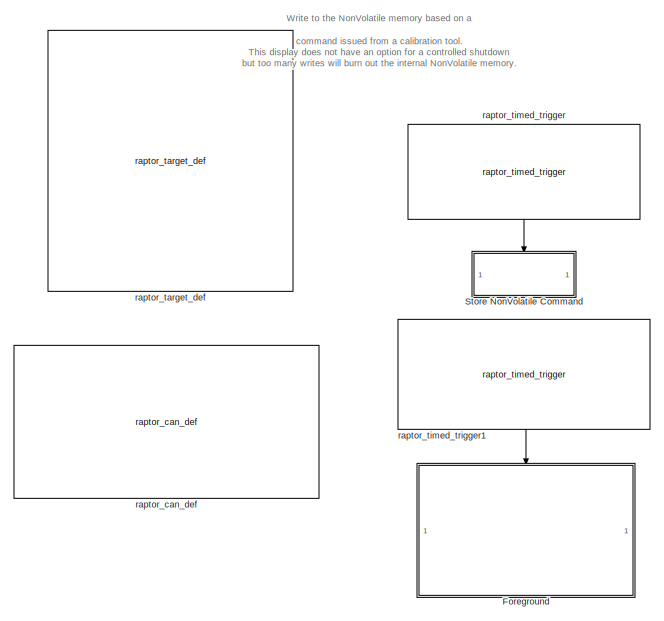
[diagram: root canvas - part 1/2, top left region]
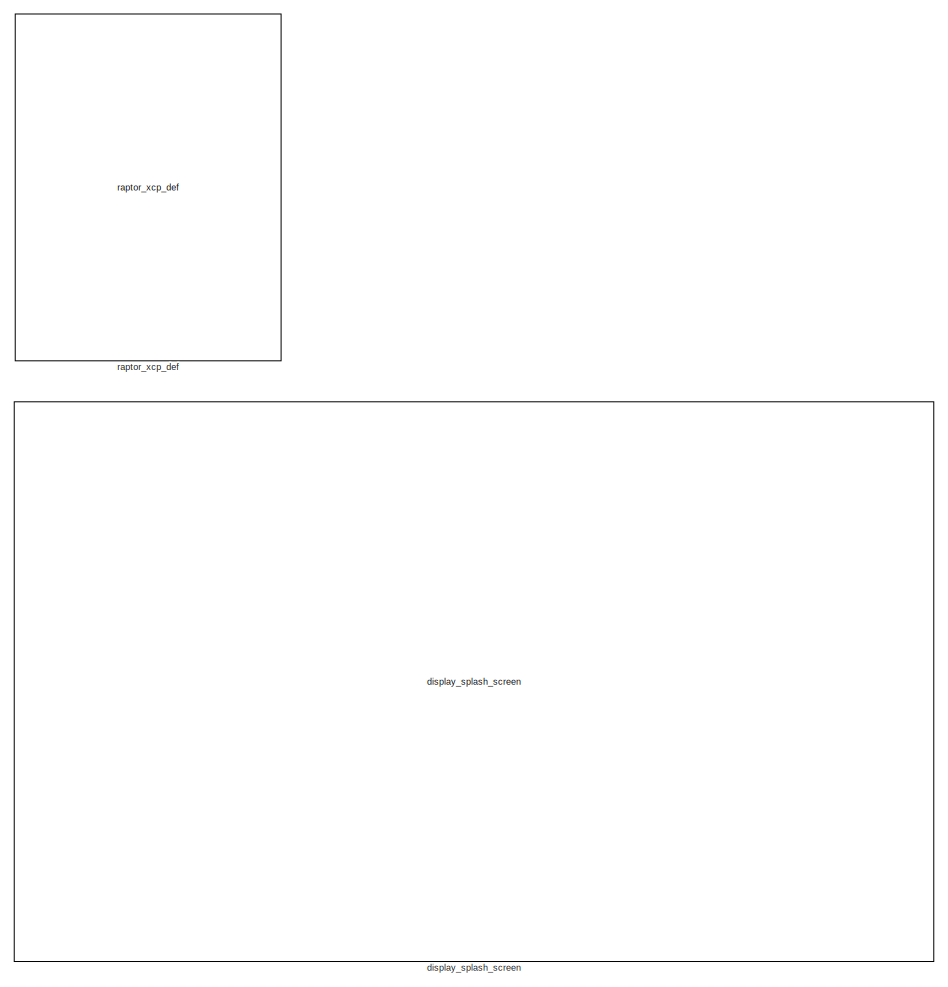
[diagram: root canvas - part 2/2, right side, full height]
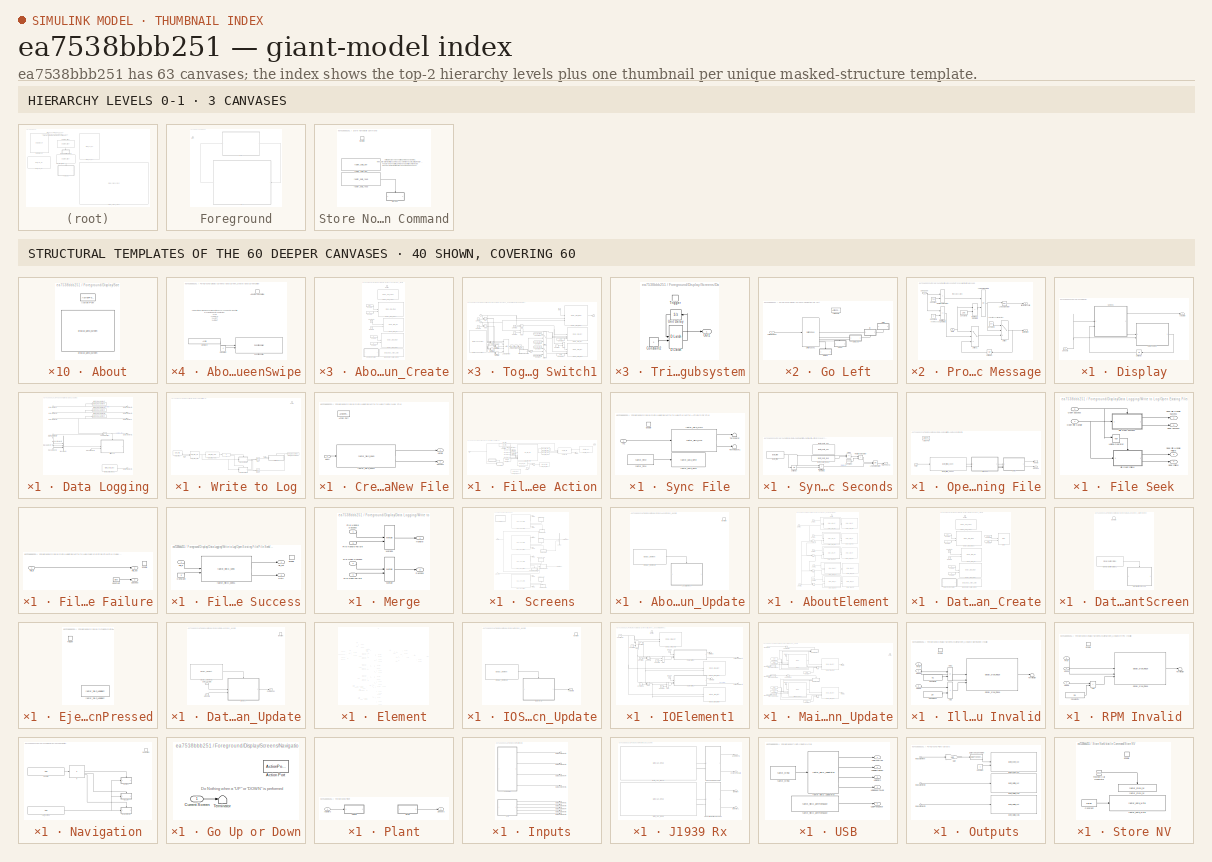
[diagram: thumbnail index - top-2 hierarchy levels (3 canvases) + 40 structural-template representatives of the remaining 60 canvases]
MODEL slx_ea7538bbb251
KIND model
CONFIG AbsTol = auto
CONFIG EnableMultiTasking = on
CONFIG FixedStep = 0.01
CONFIG InitFcn = try, model_open; catch, end
CONFIG MaxStep = auto
CONFIG MinStep = auto
CONFIG PreLoadFcn = try, model_open; catch, disp('Error occurred while executing model pre-load callback: model_open.m'); disp('Please assure that the MATLAB working directory is set to the model directory before opening.'); end
CONFIG RelTol = 1e-3
CONFIG SampleTimeConstraint = Unconstrained
CONFIG SolverName = FixedStepDiscrete
CONFIG StartTime = 0.0
CONFIG StopTime = 10.0
WORKSPACE source: mxarray member
WORKSPACE IOScreen_Label_XCoord = 1
WORKSPACE IOScreen_Row1_YCoord = 1
WORKSPACE IOScreen_Row2_YCoord = 12
WORKSPACE IOScreen_Value_XCoord = 110
WORKSPACE MainScreen_Row1_YCoord = 7
WORKSPACE MainScreen_Row2_YCoord = 23
WORKSPACE MainScreen_Symbols_XCoord = 1
WORKSPACE MainScreen_Units_XCoord = 69
WORKSPACE MainScreen_Value_XCoord = 64
BLOCK [SubSystem] Foreground
BLOCK [SubSystem] Foreground/Display
BLOCK [Outport] Foreground/Display/Actuators
  VectorParamsAs1DForOutWhenUnconnected = off
BLOCK [SubSystem] Foreground/Display/Data Logging
BLOCK [BusCreator] Foreground/Display/Data Logging/Bus Creator
  DisplayOption = bar
  InheritFromInputs = on
  Inputs = 4
BLOCK [Inport] Foreground/Display/Data Logging/In Bus Element
  Port = 2
BLOCK [Inport] Foreground/Display/Data Logging/In Bus Element1
  Port = 2
BLOCK [Inport] Foreground/Display/Data Logging/In Bus Element2
  Port = 2
BLOCK [Inport] Foreground/Display/Data Logging/In Bus Element3
  Port = 2
BLOCK [Inport] Foreground/Display/Data Logging/In Bus Element4
BLOCK [Inport] Foreground/Display/Data Logging/In Bus Element5
  Port = 2
BLOCK [Inport] Foreground/Display/Data Logging/In Bus Element6
  Port = 2
BLOCK [Inport] Foreground/Display/Data Logging/In Bus Element7
  Port = 2
BLOCK [Inport] Foreground/Display/Data Logging/In Bus Element8
  Port = 2
BLOCK [Logic] Foreground/Display/Data Logging/Logical Operator
  AllPortsSameDT = off
  OutDataTypeStr = boolean
BLOCK [Outport] Foreground/Display/Data Logging/Out Bus Element
  VectorParamsAs1DForOutWhenUnconnected = off
BLOCK [Outport] Foreground/Display/Data Logging/Out Bus Element1
  VectorParamsAs1DForOutWhenUnconnected = off
BLOCK [Outport] Foreground/Display/Data Logging/Out Bus Element2
  VectorParamsAs1DForOutWhenUnconnected = off
BLOCK [Outport] Foreground/Display/Data Logging/Out Bus Element3
  VectorParamsAs1DForOutWhenUnconnected = off
BLOCK [Outport] Foreground/Display/Data Logging/Out Bus Element4
  VectorParamsAs1DForOutWhenUnconnected = off
BLOCK [SubSystem] Foreground/Display/Data Logging/Write to Log
BLOCK [SubSystem] Foreground/Display/Data Logging/Write to Log/Create New File
  TreatAsAtomicUnit = on
BLOCK [ActionPort] Foreground/Display/Data Logging/Write to Log/Create New File/Action Port
  ActionPortLabel = else
BLOCK [Outport] Foreground/Display/Data Logging/Write to Log/Create New File/Handle
  VectorParamsAs1DForOutWhenUnconnected = off
BLOCK [Inport] Foreground/Display/Data Logging/Write to Log/Create New File/Path
BLOCK [Outport] Foreground/Display/Data Logging/Write to Log/Create New File/Success
  Port = 2
  VectorParamsAs1DForOutWhenUnconnected = off
BLOCK [Reference] Foreground/Display/Data Logging/Write to Log/Create New File/raptor_fileIO_open1  REF=Raptor_Datalogging_lib/raptor_fileIO_open
  SourceBlock = Raptor_Datalogging_lib/raptor_fileIO_open
  SourceProductName = Raptor Data Logging
  SourceType = File Open Block
BLOCK [EnablePort] Foreground/Display/Data Logging/Write to Log/Enable
BLOCK [SubSystem] Foreground/Display/Data Logging/Write to Log/File Write Action
BLOCK [Sum] Foreground/Display/Data Logging/Write to Log/File Write Action/Add
  IconShape = rectangular
BLOCK [Constant] Foreground/Display/Data Logging/Write to Log/File Write Action/Constant
  OutDataTypeStr = uint32
BLOCK [Reference] Foreground/Display/Data Logging/Write to Log/File Write Action/Counter Limited  REF=simulink/Sources/Counter
Limited
  SourceBlock = simulink/Sources/Counter\nLimited
  SourceType = Counter Limited
BLOCK [DataTypeConversion] Foreground/Display/Data Logging/Write to Log/File Write Action/Data Type Conversion1
  RndMeth = Floor
  SaturateOnIntegerOverflow = off
BLOCK [DataTypeConversion] Foreground/Display/Data Logging/Write to Log/File Write Action/Data Type Conversion10
  RndMeth = Floor
  SaturateOnIntegerOverflow = off
BLOCK [DataTypeConversion] Foreground/Display/Data Logging/Write to Log/File Write Action/Data Type Conversion2
  RndMeth = Floor
  SaturateOnIntegerOverflow = off
BLOCK [EnablePort] Foreground/Display/Data Logging/Write to Log/File Write Action/Enable
BLOCK [Inport] Foreground/Display/Data Logging/Write to Log/File Write Action/In Bus Element2
BLOCK [Inport] Foreground/Display/Data Logging/Write to Log/File Write Action/In Bus Element3
BLOCK [Inport] Foreground/Display/Data Logging/Write to Log/File Write Action/In Bus Element4
BLOCK [Inport] Foreground/Display/Data Logging/Write to Log/File Write Action/In Bus Element5
BLOCK [Inport] Foreground/Display/Data Logging/Write to Log/File Write Action/In2
  Port = 2
BLOCK [SubSystem] Foreground/Display/Data Logging/Write to Log/File Write Action/Sync File
  TreatAsAtomicUnit = on
BLOCK [EnablePort] Foreground/Display/Data Logging/Write to Log/File Write Action/Sync File/Enable
BLOCK [Inport] Foreground/Display/Data Logging/Write to Log/File Write Action/Sync File/In1
BLOCK [Terminator] Foreground/Display/Data Logging/Write to Log/File Write Action/Sync File/Terminator
BLOCK [Terminator] Foreground/Display/Data Logging/Write to Log/File Write Action/Sync File/Terminator1
BLOCK [Reference] Foreground/Display/Data Logging/Write to Log/File Write Action/Sync File/raptor_data_write  REF=Raptor_lib/Data Storage/raptor_data_write
  SourceBlock = Raptor_lib/Data Storage/raptor_data_write
  SourceProductName = Raptor
  SourceType = Data Write Block
BLOCK [Reference] Foreground/Display/Data Logging/Write to Log/File Write Action/Sync File/raptor_fileIO_sync1  REF=Raptor_Datalogging_lib/raptor_fileIO_sync
  SourceBlock = Raptor_Datalogging_lib/raptor_fileIO_sync
  SourceProductName = Raptor Data Logging
  SourceType = File Sync Block
BLOCK [Reference] Foreground/Display/Data Logging/Write to Log/File Write Action/Sync File/raptor_time  REF=Raptor_lib/Triggers/raptor_time
  SourceBlock = Raptor_lib/Triggers/raptor_time
  SourceProductName = Raptor
  SourceType = Time
BLOCK [SubSystem] Foreground/Display/Data Logging/Write to Log/File Write Action/Sync every 10 Seconds
BLOCK [Sum] Foreground/Display/Data Logging/Write to Log/File Write Action/Sync every 10 Seconds/Add1
  IconShape = rectangular
  Inputs = +-
BLOCK [Constant] Foreground/Display/Data Logging/Write to Log/File Write Action/Sync every 10 Seconds/Constant
  Value = 10000
BLOCK [Logic] Foreground/Display/Data Logging/Write to Log/File Write Action/Sync every 10 Seconds/Logical Operator
  AllPortsSameDT = off
  Operator = OR
  OutDataTypeStr = boolean
BLOCK [RelationalOperator] Foreground/Display/Data Logging/Write to Log/File Write Action/Sync every 10 Seconds/Relational Operator
  InputSameDT = off
  Operator = >
  OutDataTypeStr = boolean
BLOCK [RelationalOperator] Foreground/Display/Data Logging/Write to Log/File Write Action/Sync every 10 Seconds/Relational Operator1
  InputSameDT = off
  Operator = <
  OutDataTypeStr = boolean
BLOCK [Outport] Foreground/Display/Data Logging/Write to Log/File Write Action/Sync every 10 Seconds/TimeToSync
  VectorParamsAs1DForOutWhenUnconnected = off
BLOCK [UnitDelay] Foreground/Display/Data Logging/Write to Log/File Write Action/Sync every 10 Seconds/Unit Delay
  HasFrameUpgradeWarning = on
  SampleTime = -1
BLOCK [Reference] Foreground/Display/Data Logging/Write to Log/File Write Action/Sync every 10 Seconds/raptor_data_def  REF=Raptor_lib/Data Storage/raptor_data_def
  SourceBlock = Raptor_lib/Data Storage/raptor_data_def
  SourceProductName = Raptor
  SourceType = Data Store Definition Block
BLOCK [Reference] Foreground/Display/Data Logging/Write to Log/File Write Action/Sync every 10 Seconds/raptor_data_read1  REF=Raptor_lib/Data Storage/raptor_data_read
  SourceBlock = Raptor_lib/Data Storage/raptor_data_read
  SourceProductName = Raptor
  SourceType = Data Read Block
BLOCK [Reference] Foreground/Display/Data Logging/Write to Log/File Write Action/Sync every 10 Seconds/raptor_time  REF=Raptor_lib/Triggers/raptor_time
  SourceBlock = Raptor_lib/Triggers/raptor_time
  SourceProductName = Raptor
  SourceType = Time
BLOCK [Terminator] Foreground/Display/Data Logging/Write to Log/File Write Action/Terminator1
BLOCK [Reference] Foreground/Display/Data Logging/Write to Log/File Write Action/raptor_data_def  REF=Raptor_lib/Data Storage/raptor_data_def
  SourceBlock = Raptor_lib/Data Storage/raptor_data_def
  SourceProductName = Raptor
  SourceType = Data Store Definition Block
BLOCK [Reference] Foreground/Display/Data Logging/Write to Log/File Write Action/raptor_data_read1  REF=Raptor_lib/Data Storage/raptor_data_read
  SourceBlock = Raptor_lib/Data Storage/raptor_data_read
  SourceProductName = Raptor
  SourceType = Data Read Block
BLOCK [Reference] Foreground/Display/Data Logging/Write to Log/File Write Action/raptor_data_write  REF=Raptor_lib/Data Storage/raptor_data_write
  SourceBlock = Raptor_lib/Data Storage/raptor_data_write
  SourceProductName = Raptor
  SourceType = Data Write Block
BLOCK [Reference] Foreground/Display/Data Logging/Write to Log/File Write Action/raptor_fileIO_close  REF=Raptor_Datalogging_lib/raptor_fileIO_close
  SourceBlock = Raptor_Datalogging_lib/raptor_fileIO_close
  SourceProductName = Raptor Data Logging
  SourceType = File Close Block
BLOCK [Reference] Foreground/Display/Data Logging/Write to Log/File Write Action/raptor_fileIO_write  REF=Raptor_Datalogging_lib/raptor_fileIO_write
  SourceBlock = Raptor_Datalogging_lib/raptor_fileIO_write
  SourceProductName = Raptor Data Logging
  SourceType = File Write Block
BLOCK [Reference] Foreground/Display/Data Logging/Write to Log/File Write Action/raptor_string  REF=Raptor_lib/Strings/raptor_string
  SourceBlock = Raptor_lib/Strings/raptor_string
  SourceProductName = Raptor
  SourceType = Raptor String
BLOCK [Reference] Foreground/Display/Data Logging/Write to Log/File Write Action/raptor_string_length  REF=Raptor_lib/Strings/raptor_string_length
  SourceBlock = Raptor_lib/Strings/raptor_string_length
  SourceProductName = Raptor
  SourceType = Raptor String Length
BLOCK [Reference] Foreground/Display/Data Logging/Write to Log/File Write Action/raptor_string_printf1  REF=Raptor_lib/Strings/raptor_string_printf
  SourceBlock = Raptor_lib/Strings/raptor_string_printf
  SourceProductName = Raptor
  SourceType = Raptor Printf
BLOCK [Reference] Foreground/Display/Data Logging/Write to Log/File Write Action/raptor_string_toArray  REF=Raptor_lib/Strings/raptor_string_toArray
  SourceBlock = Raptor_lib/Strings/raptor_string_toArray
  SourceProductName = Raptor
  SourceType = Raptor String to Array
BLOCK [Reference] Foreground/Display/Data Logging/Write to Log/File Write Action/raptor_time1  REF=Raptor_lib/Triggers/raptor_time
  SourceBlock = Raptor_lib/Triggers/raptor_time
  SourceProductName = Raptor
  SourceType = Time
BLOCK [If] Foreground/Display/Data Logging/Write to Log/If
  IfExpression = u1
BLOCK [Merge] Foreground/Display/Data Logging/Write to Log/Merge
BLOCK [Merge] Foreground/Display/Data Logging/Write to Log/Merge1
BLOCK [SubSystem] Foreground/Display/Data Logging/Write to Log/Open Existing File
  TreatAsAtomicUnit = on
BLOCK [ActionPort] Foreground/Display/Data Logging/Write to Log/Open Existing File/Action Port
  ActionPortLabel = if(u1)
BLOCK [SubSystem] Foreground/Display/Data Logging/Write to Log/Open Existing File/File Seek
BLOCK [SubSystem] Foreground/Display/Data Logging/Write to Log/Open Existing File/File Seek/File Open Failure
BLOCK [Constant] Foreground/Display/Data Logging/Write to Log/Open Existing File/File Seek/File Open Failure/Constant
  OutDataTypeStr = Inherit: Inherit via back propagation
  Value = false
BLOCK [EnablePort] Foreground/Display/Data Logging/Write to Log/Open Existing File/File Seek/File Open Failure/Enable
BLOCK [Outport] Foreground/Display/Data Logging/Write to Log/Open Existing File/File Seek/File Open Failure/Success
  Port = 2
  VectorParamsAs1DForOutWhenUnconnected = off
BLOCK [Inport] Foreground/Display/Data Logging/Write to Log/Open Existing File/File Seek/File Open Failure/file_in
BLOCK [Outport] Foreground/Display/Data Logging/Write to Log/Open Existing File/File Seek/File Open Failure/file_out
  VectorParamsAs1DForOutWhenUnconnected = off
BLOCK [SubSystem] Foreground/Display/Data Logging/Write to Log/Open Existing File/File Seek/File Open Success
BLOCK [Constant] Foreground/Display/Data Logging/Write to Log/Open Existing File/File Seek/File Open Success/Constant
  OutDataTypeStr = Inherit: Inherit via back propagation
  Value = 0
BLOCK [EnablePort] Foreground/Display/Data Logging/Write to Log/Open Existing File/File Seek/File Open Success/Enable
BLOCK [Outport] Foreground/Display/Data Logging/Write to Log/Open Existing File/File Seek/File Open Success/Out2
  Port = 2
  VectorParamsAs1DForOutWhenUnconnected = off
BLOCK [Inport] Foreground/Display/Data Logging/Write to Log/Open Existing File/File Seek/File Open Success/file_in
BLOCK [Outport] Foreground/Display/Data Logging/Write to Log/Open Existing File/File Seek/File Open Success/file_out
  VectorParamsAs1DForOutWhenUnconnected = off
BLOCK [Reference] Foreground/Display/Data Logging/Write to Log/Open Existing File/File Seek/File Open Success/raptor_fileIO_seek1  REF=Raptor_Datalogging_lib/raptor_fileIO_seek
  SourceBlock = Raptor_Datalogging_lib/raptor_fileIO_seek
  SourceProductName = Raptor Data Logging
  SourceType = File Seek Block
BLOCK [Logic] Foreground/Display/Data Logging/Write to Log/Open Existing File/File Seek/Logical Operator
  AllPortsSameDT = off
  Operator = NOT
  OutDataTypeStr = boolean
BLOCK [Inport] Foreground/Display/Data Logging/Write to Log/Open Existing File/File Seek/Open File Handle
BLOCK [Inport] Foreground/Display/Data Logging/Write to Log/Open Existing File/File Seek/Open Success
  Port = 2
BLOCK [Outport] Foreground/Display/Data Logging/Write to Log/Open Existing File/File Seek/Seek Failure
  Port = 4
  VectorParamsAs1DForOutWhenUnconnected = off
BLOCK [Outport] Foreground/Display/Data Logging/Write to Log/Open Existing File/File Seek/Seek File Handle Failure
  Port = 3
  VectorParamsAs1DForOutWhenUnconnected = off
BLOCK [Outport] Foreground/Display/Data Logging/Write to Log/Open Existing File/File Seek/Seek File Handle Success
  VectorParamsAs1DForOutWhenUnconnected = off
BLOCK [Outport] Foreground/Display/Data Logging/Write to Log/Open Existing File/File Seek/Seek Success
  Port = 2
  VectorParamsAs1DForOutWhenUnconnected = off
BLOCK [Outport] Foreground/Display/Data Logging/Write to Log/Open Existing File/Handle
  VectorParamsAs1DForOutWhenUnconnected = off
BLOCK [SubSystem] Foreground/Display/Data Logging/Write to Log/Open Existing File/Merge
BLOCK [Inport] Foreground/Display/Data Logging/Write to Log/Open Existing File/Merge/File Handle Failure
  Port = 3
BLOCK [Inport] Foreground/Display/Data Logging/Write to Log/Open Existing File/Merge/File Handle Success
BLOCK [Inport] Foreground/Display/Data Logging/Write to Log/Open Existing File/Merge/File Open Failure
  Port = 4
BLOCK [Inport] Foreground/Display/Data Logging/Write to Log/Open Existing File/Merge/File Open Success
  Port = 2
BLOCK [Outport] Foreground/Display/Data Logging/Write to Log/Open Existing File/Merge/Handle
  VectorParamsAs1DForOutWhenUnconnected = off
BLOCK [Merge] Foreground/Display/Data Logging/Write to Log/Open Existing File/Merge/Merge
BLOCK [Merge] Foreground/Display/Data Logging/Write to Log/Open Existing File/Merge/Merge1
BLOCK [Outport] Foreground/Display/Data Logging/Write to Log/Open Existing File/Merge/Success
  Port = 2
  VectorParamsAs1DForOutWhenUnconnected = off
BLOCK [Inport] Foreground/Display/Data Logging/Write to Log/Open Existing File/Path
BLOCK [Outport] Foreground/Display/Data Logging/Write to Log/Open Existing File/Sucess
  Port = 2
  VectorParamsAs1DForOutWhenUnconnected = off
BLOCK [Reference] Foreground/Display/Data Logging/Write to Log/Open Existing File/raptor_fileIO_open1  REF=Raptor_Datalogging_lib/raptor_fileIO_open
  SourceBlock = Raptor_Datalogging_lib/raptor_fileIO_open
  SourceProductName = Raptor Data Logging
  SourceType = File Open Block
BLOCK [Inport] Foreground/Display/Data Logging/Write to Log/data
BLOCK [Inport] Foreground/Display/Data Logging/Write to Log/drive
  Port = 2
BLOCK [Reference] Foreground/Display/Data Logging/Write to Log/raptor_fileIO_exists1  REF=Raptor_Datalogging_lib/raptor_fileIO_exists
  SourceBlock = Raptor_Datalogging_lib/raptor_fileIO_exists
  SourceProductName = Raptor Data Logging
  SourceType = File Exists Block
BLOCK [Reference] Foreground/Display/Data Logging/Write to Log/raptor_measurement1  REF=Raptor_lib/Data Storage/raptor_measurement
  SourceBlock = Raptor_lib/Data Storage/raptor_measurement
  SourceProductName = Raptor
  SourceType = Measurement
BLOCK [Reference] Foreground/Display/Data Logging/Write to Log/raptor_string1  REF=Raptor_lib/Strings/raptor_string
  SourceBlock = Raptor_lib/Strings/raptor_string
  SourceProductName = Raptor
  SourceType = Raptor String
BLOCK [Reference] Foreground/Display/Data Logging/Write to Log/raptor_string_printf  REF=Raptor_lib/Strings/raptor_string_printf
  SourceBlock = Raptor_lib/Strings/raptor_string_printf
  SourceProductName = Raptor
  SourceType = Raptor Printf
BLOCK [Reference] Foreground/Display/Data Logging/raptor_data_read1  REF=Raptor_lib/Data Storage/raptor_data_read
  SourceBlock = Raptor_lib/Data Storage/raptor_data_read
  SourceProductName = Raptor
  SourceType = Data Read Block
BLOCK [Reference] Foreground/Display/Data Logging/raptor_measurement  REF=Raptor_lib/Data Storage/raptor_measurement
  SourceBlock = Raptor_lib/Data Storage/raptor_measurement
  SourceProductName = Raptor
  SourceType = Measurement
BLOCK [Reference] Foreground/Display/Data Logging/raptor_measurement1  REF=Raptor_lib/Data Storage/raptor_measurement
  SourceBlock = Raptor_lib/Data Storage/raptor_measurement
  SourceProductName = Raptor
  SourceType = Measurement
BLOCK [Reference] Foreground/Display/Data Logging/raptor_measurement3  REF=Raptor_lib/Data Storage/raptor_measurement
  SourceBlock = Raptor_lib/Data Storage/raptor_measurement
  SourceProductName = Raptor
  SourceType = Measurement
BLOCK [SubSystem] Foreground/Display/Screens
BLOCK [SubSystem] Foreground/Display/Screens/AboutScreen_Create
  NameLocation = right
  TreatAsAtomicUnit = on
BLOCK [SubSystem] Foreground/Display/Screens/AboutScreen_Create/AboutScreenSwipe
BLOCK [TriggerPort] Foreground/Display/Screens/AboutScreen_Create/AboutScreenSwipe/AboutScreenSwipe
  FunctionName = AboutScreenSwipe
  FunctionVisibility = scoped
  IsSimulinkFunction = on
  PortDimensions = 1
  StatesWhenEnabling = held
  TriggerType = function-call
  VariantControl = Variant
BLOCK [Constant] Foreground/Display/Screens/AboutScreen_Create/AboutScreenSwipe/Constant
  OutDataTypeStr = uint8
  Value = 4
BLOCK [FunctionCaller] Foreground/Display/Screens/AboutScreen_Create/AboutScreenSwipe/Function Caller
  FunctionPrototype = Screens.Navigation(gesture,curr_screen)
  InputArgumentSpecifications = <Enter example>
  OutputArgumentSpecifications = <Enter example>
BLOCK [ArgIn] Foreground/Display/Screens/AboutScreen_Create/AboutScreenSwipe/gesture
  ArgumentName = gesture
  OutDataTypeStr = uint8
BLOCK [Constant] Foreground/Display/Screens/AboutScreen_Create/Constant16
  OutDataTypeStr = int32
  Value = 400
BLOCK [Constant] Foreground/Display/Screens/AboutScreen_Create/Constant2
  OutDataTypeStr = int32
  Value = 440
BLOCK [Constant] Foreground/Display/Screens/AboutScreen_Create/Constant3
  OutDataTypeStr = int32
BLOCK [Constant] Foreground/Display/Screens/AboutScreen_Create/Constant4
  OutDataTypeStr = int32
BLOCK [Constant] Foreground/Display/Screens/AboutScreen_Create/Constant5
  OutDataTypeStr = int32
BLOCK [Constant] Foreground/Display/Screens/AboutScreen_Create/Constant6
  OutDataTypeStr = int32
  Value = 207
BLOCK [Reference] Foreground/Display/Screens/AboutScreen_Create/display_clear_screen  REF=Raptor_display_lib/Drawing Functions/display_clear_screen
  Priority = 100
  SourceBlock = Raptor_display_lib/Drawing Functions/display_clear_screen
  SourceProductName = Raptor Display Library
  SourceType = Display Clear Screen
BLOCK [Reference] Foreground/Display/Screens/AboutScreen_Create/display_draw_image  REF=Raptor_display_lib/Drawing Functions/display_draw_image
  SourceBlock = Raptor_display_lib/Drawing Functions/display_draw_image
  SourceProductName = Raptor Display Library
  SourceType = Display Draw Image
BLOCK [Reference] Foreground/Display/Screens/AboutScreen_Create/display_draw_image1  REF=Raptor_display_lib/Drawing Functions/display_draw_image
  SourceBlock = Raptor_display_lib/Drawing Functions/display_draw_image
  SourceProductName = Raptor Display Library
  SourceType = Display Draw Image
BLOCK [Reference] Foreground/Display/Screens/AboutScreen_Create/display_draw_text  REF=Raptor_display_lib/Drawing Functions/display_draw_text
  SourceBlock = Raptor_display_lib/Drawing Functions/display_draw_text
  SourceProductName = Raptor Display Library
  SourceType = Display Draw Text
BLOCK [TriggerPort] Foreground/Display/Screens/AboutScreen_Create/function
  StatesWhenEnabling = held
  TriggerType = function-call
  VariantControl = Variant
BLOCK [Reference] Foreground/Display/Screens/AboutScreen_Create/raptor_display_swipe_action2  REF=Raptor_display_lib/Touchscreen/raptor_display_swipe_action
  SourceBlock = Raptor_display_lib/Touchscreen/raptor_display_swipe_action
  SourceProductName = Raptor Display Library
  SourceType = Update Touchscreen Swipe Action
BLOCK [SubSystem] Foreground/Display/Screens/AboutScreen_Update
  TreatAsAtomicUnit = on
BLOCK [SubSystem] Foreground/Display/Screens/AboutScreen_Update/AboutElement
BLOCK [Sum] Foreground/Display/Screens/AboutScreen_Update/AboutElement/Add
  IconShape = rectangular
BLOCK [Sum] Foreground/Display/Screens/AboutScreen_Update/AboutElement/Add2
  IconShape = rectangular
BLOCK [Sum] Foreground/Display/Screens/AboutScreen_Update/AboutElement/Add3
  IconShape = rectangular
BLOCK [Sum] Foreground/Display/Screens/AboutScreen_Update/AboutElement/Add4
  IconShape = rectangular
BLOCK [Constant] Foreground/Display/Screens/AboutScreen_Update/AboutElement/Constant1
  OutDataTypeStr = int32
  Value = 400
BLOCK [Constant] Foreground/Display/Screens/AboutScreen_Update/AboutElement/Constant2
  OutDataTypeStr = int32
  Value = 30
BLOCK [Constant] Foreground/Display/Screens/AboutScreen_Update/AboutElement/Constant3
  OutDataTypeStr = int32
  Value = 400
BLOCK [Constant] Foreground/Display/Screens/AboutScreen_Update/AboutElement/Constant5
  OutDataTypeStr = int32
  Value = 400
BLOCK [Constant] Foreground/Display/Screens/AboutScreen_Update/AboutElement/Constant6
  OutDataTypeStr = int32
  Value = 400
BLOCK [Constant] Foreground/Display/Screens/AboutScreen_Update/AboutElement/Constant7
  OutDataTypeStr = int32
  Value = 100
BLOCK [Constant] Foreground/Display/Screens/AboutScreen_Update/AboutElement/Constant8
  OutDataTypeStr = int32
  Value = 400
BLOCK [Reference] Foreground/Display/Screens/AboutScreen_Update/AboutElement/display_draw_text1  REF=Raptor_display_lib/Drawing Functions/display_draw_text
  SourceBlock = Raptor_display_lib/Drawing Functions/display_draw_text
  SourceProductName = Raptor Display Library
  SourceType = Display Draw Text
BLOCK [Reference] Foreground/Display/Screens/AboutScreen_Update/AboutElement/display_draw_text10  REF=Raptor_display_lib/Drawing Functions/display_draw_text
  SourceBlock = Raptor_display_lib/Drawing Functions/display_draw_text
  SourceProductName = Raptor Display Library
  SourceType = Display Draw Text
BLOCK [Reference] Foreground/Display/Screens/AboutScreen_Update/AboutElement/display_draw_text11  REF=Raptor_display_lib/Drawing Functions/display_draw_text
  SourceBlock = Raptor_display_lib/Drawing Functions/display_draw_text
  SourceProductName = Raptor Display Library
  SourceType = Display Draw Text
BLOCK [Reference] Foreground/Display/Screens/AboutScreen_Update/AboutElement/display_draw_text12  REF=Raptor_display_lib/Drawing Functions/display_draw_text
  SourceBlock = Raptor_display_lib/Drawing Functions/display_draw_text
  SourceProductName = Raptor Display Library
  SourceType = Display Draw Text
BLOCK [Reference] Foreground/Display/Screens/AboutScreen_Update/AboutElement/display_draw_text2  REF=Raptor_display_lib/Drawing Functions/display_draw_text
  SourceBlock = Raptor_display_lib/Drawing Functions/display_draw_text
  SourceProductName = Raptor Display Library
  SourceType = Display Draw Text
BLOCK [Reference] Foreground/Display/Screens/AboutScreen_Update/AboutElement/display_draw_text3  REF=Raptor_display_lib/Drawing Functions/display_draw_text
  SourceBlock = Raptor_display_lib/Drawing Functions/display_draw_text
  SourceProductName = Raptor Display Library
  SourceType = Display Draw Text
BLOCK [Reference] Foreground/Display/Screens/AboutScreen_Update/AboutElement/display_draw_text6  REF=Raptor_display_lib/Drawing Functions/display_draw_text
  SourceBlock = Raptor_display_lib/Drawing Functions/display_draw_text
  SourceProductName = Raptor Display Library
  SourceType = Display Draw Text
BLOCK [Reference] Foreground/Display/Screens/AboutScreen_Update/AboutElement/display_draw_text7  REF=Raptor_display_lib/Drawing Functions/display_draw_text
  SourceBlock = Raptor_display_lib/Drawing Functions/display_draw_text
  SourceProductName = Raptor Display Library
  SourceType = Display Draw Text
BLOCK [Reference] Foreground/Display/Screens/AboutScreen_Update/AboutElement/display_draw_text8  REF=Raptor_display_lib/Drawing Functions/display_draw_text
  SourceBlock = Raptor_display_lib/Drawing Functions/display_draw_text
  SourceProductName = Raptor Display Library
  SourceType = Display Draw Text
BLOCK [Reference] Foreground/Display/Screens/AboutScreen_Update/AboutElement/display_draw_text9  REF=Raptor_display_lib/Drawing Functions/display_draw_text
  SourceBlock = Raptor_display_lib/Drawing Functions/display_draw_text
  SourceProductName = Raptor Display Library
  SourceType = Display Draw Text
BLOCK [TriggerPort] Foreground/Display/Screens/AboutScreen_Update/AboutElement/function
  StatesWhenEnabling = held
  TriggerType = function-call
  VariantControl = Variant
BLOCK [Reference] Foreground/Display/Screens/AboutScreen_Update/display_element1  REF=Raptor_display_lib/Drawing Functions/display_element
  SourceBlock = Raptor_display_lib/Drawing Functions/display_element
  SourceProductName = Raptor Display Library
  SourceType = Display Element
BLOCK [TriggerPort] Foreground/Display/Screens/AboutScreen_Update/function
  StatesWhenEnabling = held
  TriggerType = function-call
  VariantControl = Variant
BLOCK [Outport] Foreground/Display/Screens/ActuatorCommands
  VectorParamsAs1DForOutWhenUnconnected = off
BLOCK [BusCreator] Foreground/Display/Screens/Bus Creator
  DisplayOption = bar
  InheritFromInputs = on
  Inputs = 2
BLOCK [SubSystem] Foreground/Display/Screens/DataLogScreen_Create
  NameLocation = right
  TreatAsAtomicUnit = on
BLOCK [Reference] Foreground/Display/Screens/DataLogScreen_Create/Button  REF=Raptor_display_lib/Prefab/Button
  SourceBlock = Raptor_display_lib/Prefab/Button
  SourceProductName = Raptor Display Library
  SourceType = Display Button
BLOCK [Constant] Foreground/Display/Screens/DataLogScreen_Create/Constant1
  OutDataTypeStr = int32
BLOCK [Constant] Foreground/Display/Screens/DataLogScreen_Create/Constant16
  OutDataTypeStr = int32
  Value = 400
BLOCK [Constant] Foreground/Display/Screens/DataLogScreen_Create/Constant2
  OutDataTypeStr = int32
  Value = 440
BLOCK [Constant] Foreground/Display/Screens/DataLogScreen_Create/Constant3
  OutDataTypeStr = int32
BLOCK [Constant] Foreground/Display/Screens/DataLogScreen_Create/Constant4
  OutDataTypeStr = int32
BLOCK [Constant] Foreground/Display/Screens/DataLogScreen_Create/Constant5
  OutDataTypeStr = int32
  Value = 150
BLOCK [Constant] Foreground/Display/Screens/DataLogScreen_Create/Constant6
  OutDataTypeStr = int32
  Value = 600 - 35
BLOCK [Constant] Foreground/Display/Screens/DataLogScreen_Create/Constant7
  OutDataTypeStr = int32
  Value = 207
BLOCK [SubSystem] Foreground/Display/Screens/DataLogScreen_Create/DataLogScreenSwipe
BLOCK [Constant] Foreground/Display/Screens/DataLogScreen_Create/DataLogScreenSwipe/Constant
  OutDataTypeStr = uint8
  Value = 3
BLOCK [TriggerPort] Foreground/Display/Screens/DataLogScreen_Create/DataLogScreenSwipe/DataLogScreenSwipe
  FunctionName = DataLogScreenSwipe
  FunctionVisibility = scoped
  IsSimulinkFunction = on
  PortDimensions = 1
  StatesWhenEnabling = held
  TriggerType = function-call
  VariantControl = Variant
BLOCK [FunctionCaller] Foreground/Display/Screens/DataLogScreen_Create/DataLogScreenSwipe/Function Caller
  FunctionPrototype = Screens.Navigation(gesture,curr_screen)
  InputArgumentSpecifications = <Enter example>
  OutputArgumentSpecifications = <Enter example>
BLOCK [ArgIn] Foreground/Display/Screens/DataLogScreen_Create/DataLogScreenSwipe/gesture
  ArgumentName = gesture
  OutDataTypeStr = uint8
BLOCK [Reference] Foreground/Display/Screens/DataLogScreen_Create/display_clear_screen  REF=Raptor_display_lib/Drawing Functions/display_clear_screen
  Priority = 100
  SourceBlock = Raptor_display_lib/Drawing Functions/display_clear_screen
  SourceProductName = Raptor Display Library
  SourceType = Display Clear Screen
BLOCK [Reference] Foreground/Display/Screens/DataLogScreen_Create/display_draw_image  REF=Raptor_display_lib/Drawing Functions/display_draw_image
  SourceBlock = Raptor_display_lib/Drawing Functions/display_draw_image
  SourceProductName = Raptor Display Library
  SourceType = Display Draw Image
BLOCK [Reference] Foreground/Display/Screens/DataLogScreen_Create/display_draw_image1  REF=Raptor_display_lib/Drawing Functions/display_draw_image
  SourceBlock = Raptor_display_lib/Drawing Functions/display_draw_image
  SourceProductName = Raptor Display Library
  SourceType = Display Draw Image
BLOCK [Reference] Foreground/Display/Screens/DataLogScreen_Create/display_draw_text  REF=Raptor_display_lib/Drawing Functions/display_draw_text
  SourceBlock = Raptor_display_lib/Drawing Functions/display_draw_text
  SourceProductName = Raptor Display Library
  SourceType = Display Draw Text
BLOCK [TriggerPort] Foreground/Display/Screens/DataLogScreen_Create/function
  StatesWhenEnabling = held
  TriggerType = function-call
  VariantControl = Variant
BLOCK [Reference] Foreground/Display/Screens/DataLogScreen_Create/raptor_display_swipe_action1  REF=Raptor_display_lib/Touchscreen/raptor_display_swipe_action
  SourceBlock = Raptor_display_lib/Touchscreen/raptor_display_swipe_action
  SourceProductName = Raptor Display Library
  SourceType = Update Touchscreen Swipe Action
BLOCK [SubSystem] Foreground/Display/Screens/DataLogScreen_CurrentScreen
  TreatAsAtomicUnit = on
BLOCK [Reference] Foreground/Display/Screens/DataLogScreen_CurrentScreen/Display Button Status1  REF=Raptor_display_lib/Touchscreen/Display Button Status
  SourceBlock = Raptor_display_lib/Touchscreen/Display Button Status
  SourceProductName = Raptor Display Library
  SourceType = Display Touch Screen Button Status
BLOCK [SubSystem] Foreground/Display/Screens/DataLogScreen_CurrentScreen/EjectButtonPressed
BLOCK [TriggerPort] Foreground/Display/Screens/DataLogScreen_CurrentScreen/EjectButtonPressed/Trigger
  PortDimensions = 1
  StatesWhenEnabling = held
  TriggerType = falling
  VariantControl = Variant
BLOCK [Reference] Foreground/Display/Screens/DataLogScreen_CurrentScreen/EjectButtonPressed/raptor_fileIO_USBEject  REF=Raptor_Datalogging_lib/raptor_fileIO_USBEject
  SourceBlock = Raptor_Datalogging_lib/raptor_fileIO_USBEject
  SourceProductName = Raptor Data Logging
  SourceType = Display USB Eject
BLOCK [EnablePort] Foreground/Display/Screens/DataLogScreen_CurrentScreen/Enable
BLOCK [SubSystem] Foreground/Display/Screens/DataLogScreen_Update
  TreatAsAtomicUnit = on
BLOCK [Outport] Foreground/Display/Screens/DataLogScreen_Update/Commands
  VectorParamsAs1DForOutWhenUnconnected = off
BLOCK [Inport] Foreground/Display/Screens/DataLogScreen_Update/DataLogState
  Port = 2
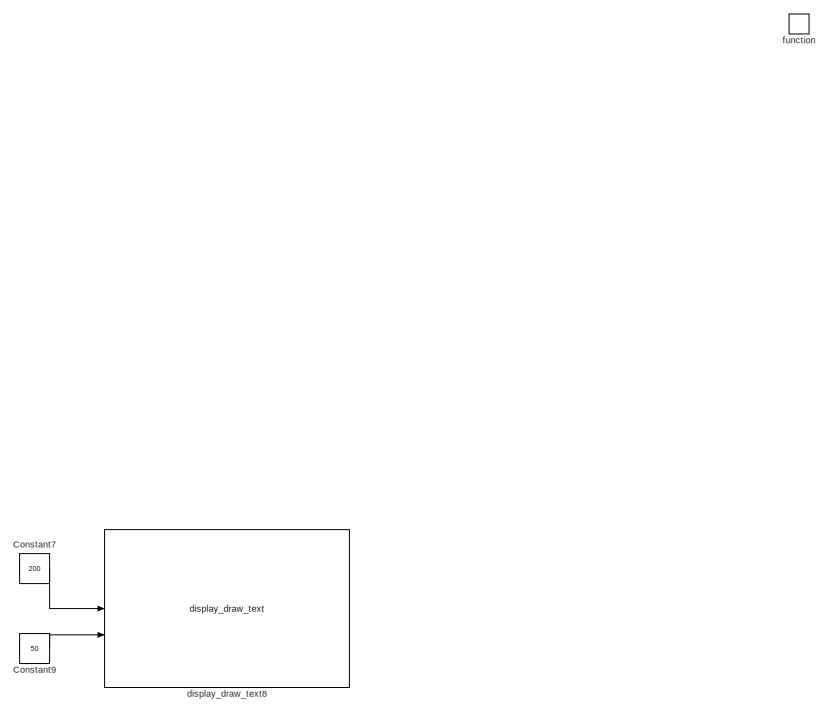
[diagram: Foreground/Display/Screens/DataLogScreen_Update/Element - part 1/6, top left region]
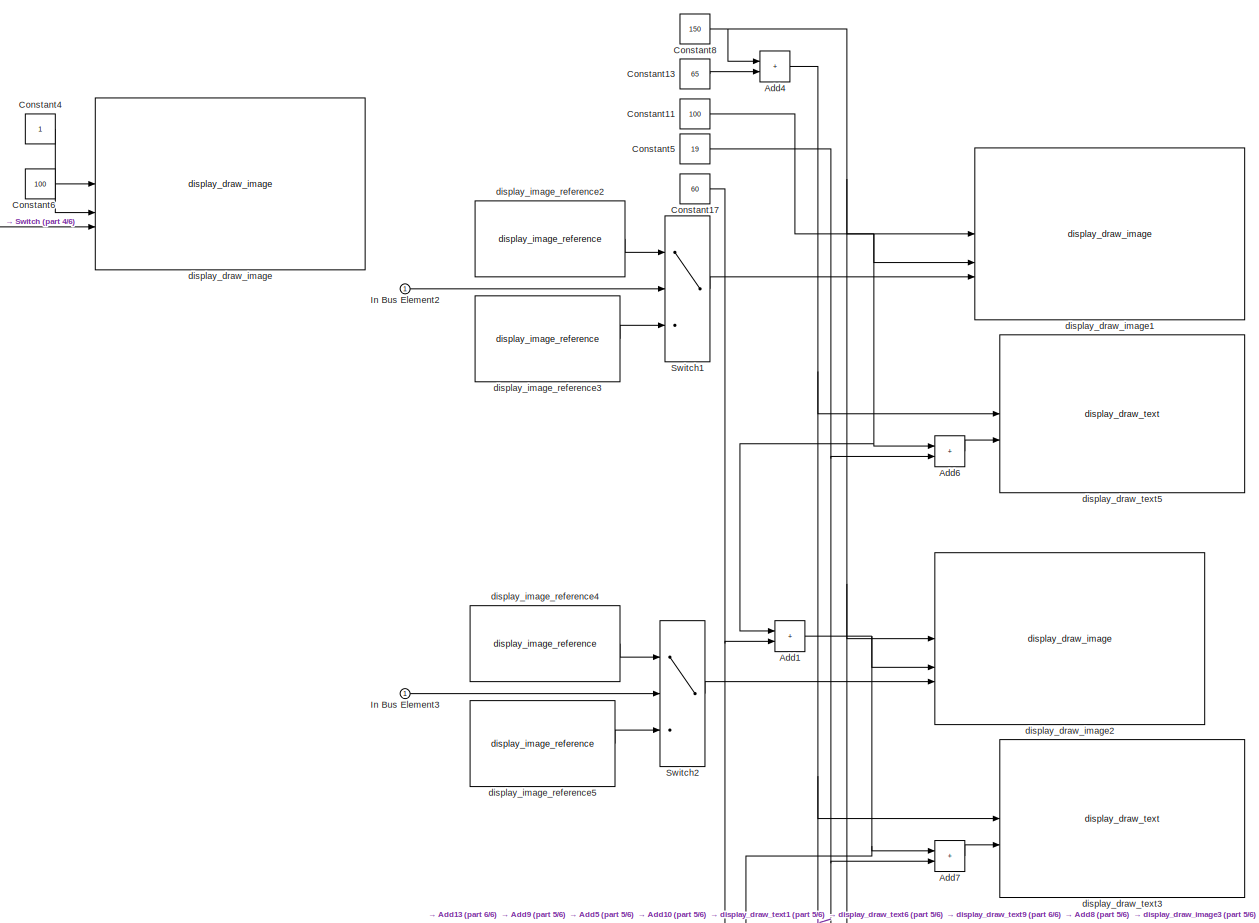
[diagram: Foreground/Display/Screens/DataLogScreen_Update/Element - part 2/6, middle left region]
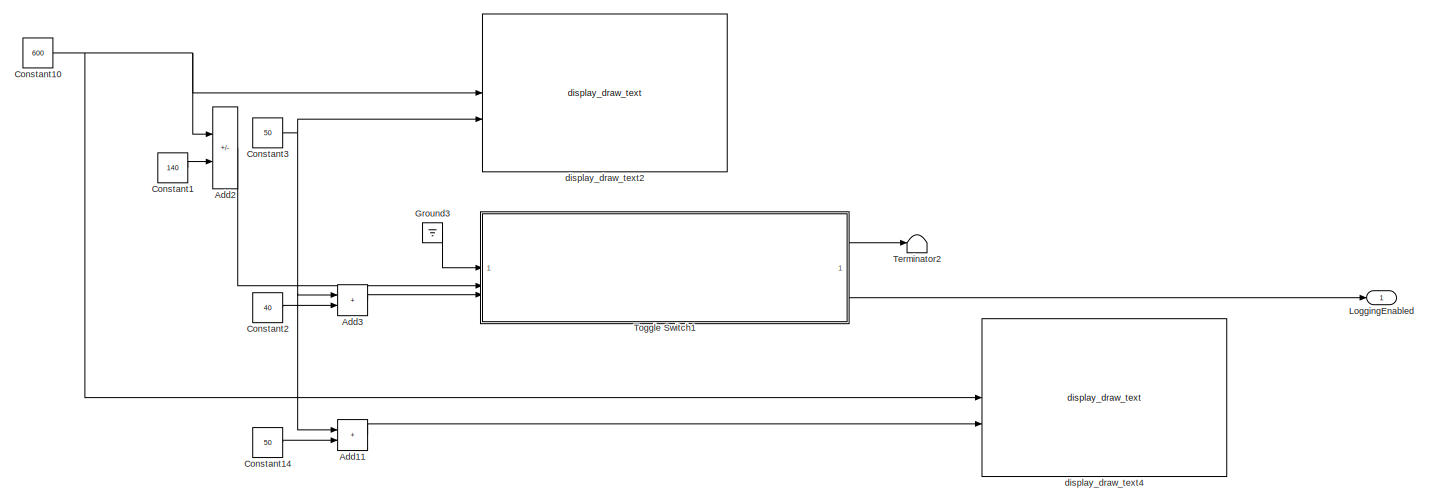
[diagram: Foreground/Display/Screens/DataLogScreen_Update/Element - part 3/6, middle right region]
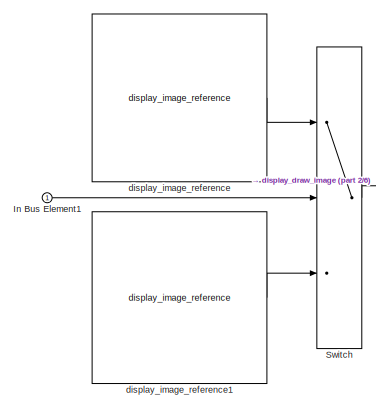
[diagram: Foreground/Display/Screens/DataLogScreen_Update/Element - part 4/6, middle left region]
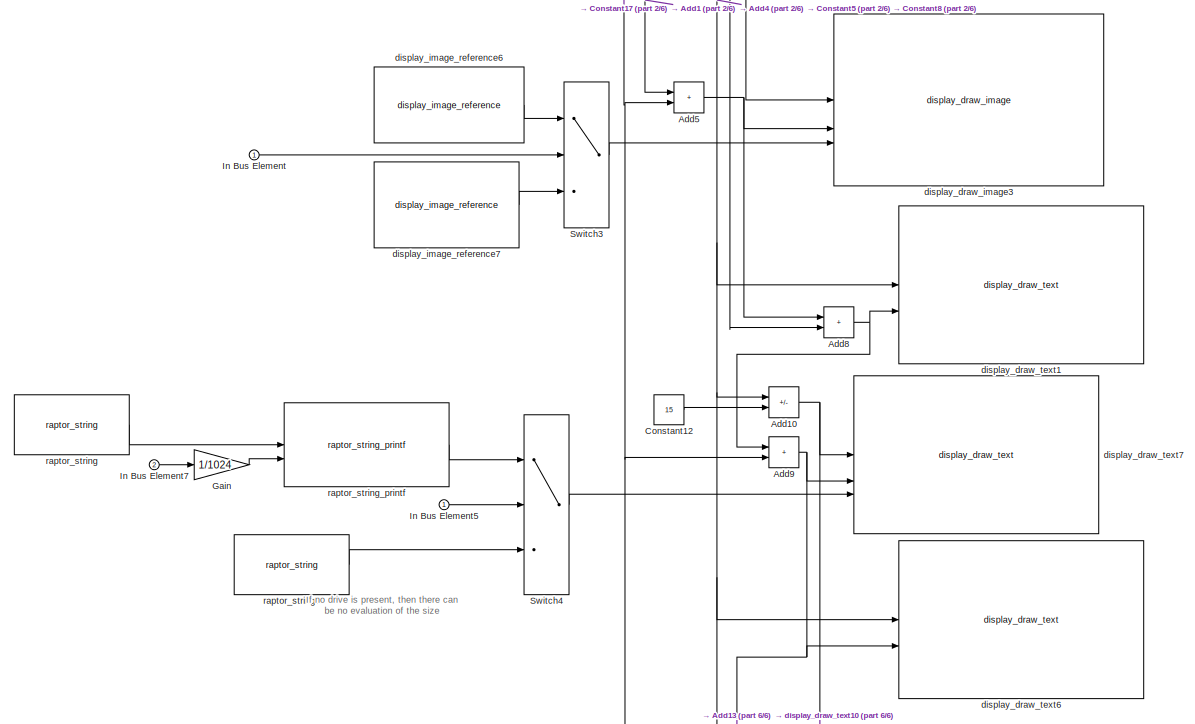
[diagram: Foreground/Display/Screens/DataLogScreen_Update/Element - part 5/6, bottom left region]
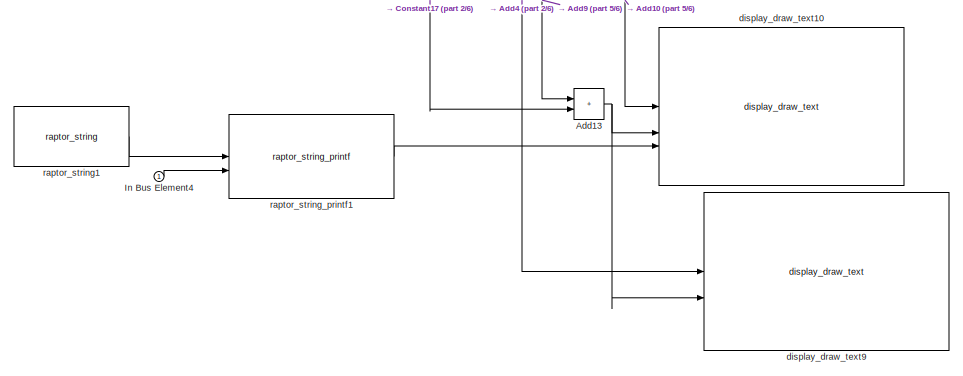
[diagram: Foreground/Display/Screens/DataLogScreen_Update/Element - part 6/6, bottom center region]
BLOCK [SubSystem] Foreground/Display/Screens/DataLogScreen_Update/Element
BLOCK [Sum] Foreground/Display/Screens/DataLogScreen_Update/Element/Add1
  IconShape = rectangular
BLOCK [Sum] Foreground/Display/Screens/DataLogScreen_Update/Element/Add10
  IconShape = rectangular
  Inputs = +-
BLOCK [Sum] Foreground/Display/Screens/DataLogScreen_Update/Element/Add11
  IconShape = rectangular
BLOCK [Sum] Foreground/Display/Screens/DataLogScreen_Update/Element/Add13
  IconShape = rectangular
BLOCK [Sum] Foreground/Display/Screens/DataLogScreen_Update/Element/Add2
  IconShape = rectangular
  Inputs = +-
BLOCK [Sum] Foreground/Display/Screens/DataLogScreen_Update/Element/Add3
  IconShape = rectangular
BLOCK [Sum] Foreground/Display/Screens/DataLogScreen_Update/Element/Add4
  IconShape = rectangular
BLOCK [Sum] Foreground/Display/Screens/DataLogScreen_Update/Element/Add5
  IconShape = rectangular
BLOCK [Sum] Foreground/Display/Screens/DataLogScreen_Update/Element/Add6
  IconShape = rectangular
BLOCK [Sum] Foreground/Display/Screens/DataLogScreen_Update/Element/Add7
  IconShape = rectangular
BLOCK [Sum] Foreground/Display/Screens/DataLogScreen_Update/Element/Add8
  IconShape = rectangular
BLOCK [Sum] Foreground/Display/Screens/DataLogScreen_Update/Element/Add9
  IconShape = rectangular
BLOCK [Constant] Foreground/Display/Screens/DataLogScreen_Update/Element/Constant1
  OutDataTypeStr = int32
  Value = 140
BLOCK [Constant] Foreground/Display/Screens/DataLogScreen_Update/Element/Constant10
  OutDataTypeStr = int32
  Value = 600
BLOCK [Constant] Foreground/Display/Screens/DataLogScreen_Update/Element/Constant11
  OutDataTypeStr = int32
  Value = 100
BLOCK [Constant] Foreground/Display/Screens/DataLogScreen_Update/Element/Constant12
  OutDataTypeStr = int32
  Value = 15
BLOCK [Constant] Foreground/Display/Screens/DataLogScreen_Update/Element/Constant13
  OutDataTypeStr = int32
  Value = 65
BLOCK [Constant] Foreground/Display/Screens/DataLogScreen_Update/Element/Constant14
  OutDataTypeStr = int32
  Value = 50
BLOCK [Constant] Foreground/Display/Screens/DataLogScreen_Update/Element/Constant17
  OutDataTypeStr = int32
  Value = 60
BLOCK [Constant] Foreground/Display/Screens/DataLogScreen_Update/Element/Constant2
  OutDataTypeStr = int32
  Value = 40
BLOCK [Constant] Foreground/Display/Screens/DataLogScreen_Update/Element/Constant3
  OutDataTypeStr = int32
  Value = 50
BLOCK [Constant] Foreground/Display/Screens/DataLogScreen_Update/Element/Constant4
  OutDataTypeStr = int32
BLOCK [Constant] Foreground/Display/Screens/DataLogScreen_Update/Element/Constant5
  OutDataTypeStr = int32
  Value = 19
BLOCK [Constant] Foreground/Display/Screens/DataLogScreen_Update/Element/Constant6
  OutDataTypeStr = int32
  Value = 100
BLOCK [Constant] Foreground/Display/Screens/DataLogScreen_Update/Element/Constant7
  OutDataTypeStr = int32
  Value = 200
BLOCK [Constant] Foreground/Display/Screens/DataLogScreen_Update/Element/Constant8
  OutDataTypeStr = int32
  Value = 150
BLOCK [Constant] Foreground/Display/Screens/DataLogScreen_Update/Element/Constant9
  OutDataTypeStr = int32
  Value = 50
BLOCK [Gain] Foreground/Display/Screens/DataLogScreen_Update/Element/Gain
  Gain = 1/1024
  OutDataTypeStr = uint32
BLOCK [Ground] Foreground/Display/Screens/DataLogScreen_Update/Element/Ground3
BLOCK [Inport] Foreground/Display/Screens/DataLogScreen_Update/Element/In Bus Element
BLOCK [Inport] Foreground/Display/Screens/DataLogScreen_Update/Element/In Bus Element1
BLOCK [Inport] Foreground/Display/Screens/DataLogScreen_Update/Element/In Bus Element2
BLOCK [Inport] Foreground/Display/Screens/DataLogScreen_Update/Element/In Bus Element3
BLOCK [Inport] Foreground/Display/Screens/DataLogScreen_Update/Element/In Bus Element4
BLOCK [Inport] Foreground/Display/Screens/DataLogScreen_Update/Element/In Bus Element5
BLOCK [Inport] Foreground/Display/Screens/DataLogScreen_Update/Element/In Bus Element7
  Port = 2
BLOCK [Outport] Foreground/Display/Screens/DataLogScreen_Update/Element/LoggingEnabled
  VectorParamsAs1DForOutWhenUnconnected = off
BLOCK [Switch] Foreground/Display/Screens/DataLogScreen_Update/Element/Switch
  Criteria = u2 ~= 0
  InputSameDT = off
  SaturateOnIntegerOverflow = off
BLOCK [Switch] Foreground/Display/Screens/DataLogScreen_Update/Element/Switch1
  Criteria = u2 ~= 0
  InputSameDT = off
  SaturateOnIntegerOverflow = off
BLOCK [Switch] Foreground/Display/Screens/DataLogScreen_Update/Element/Switch2
  Criteria = u2 ~= 0
  InputSameDT = off
  SaturateOnIntegerOverflow = off
BLOCK [Switch] Foreground/Display/Screens/DataLogScreen_Update/Element/Switch3
  Criteria = u2 ~= 0
  InputSameDT = off
  SaturateOnIntegerOverflow = off
BLOCK [Switch] Foreground/Display/Screens/DataLogScreen_Update/Element/Switch4
  Criteria = u2 ~= 0
  InputSameDT = off
  SaturateOnIntegerOverflow = off
BLOCK [Terminator] Foreground/Display/Screens/DataLogScreen_Update/Element/Terminator2
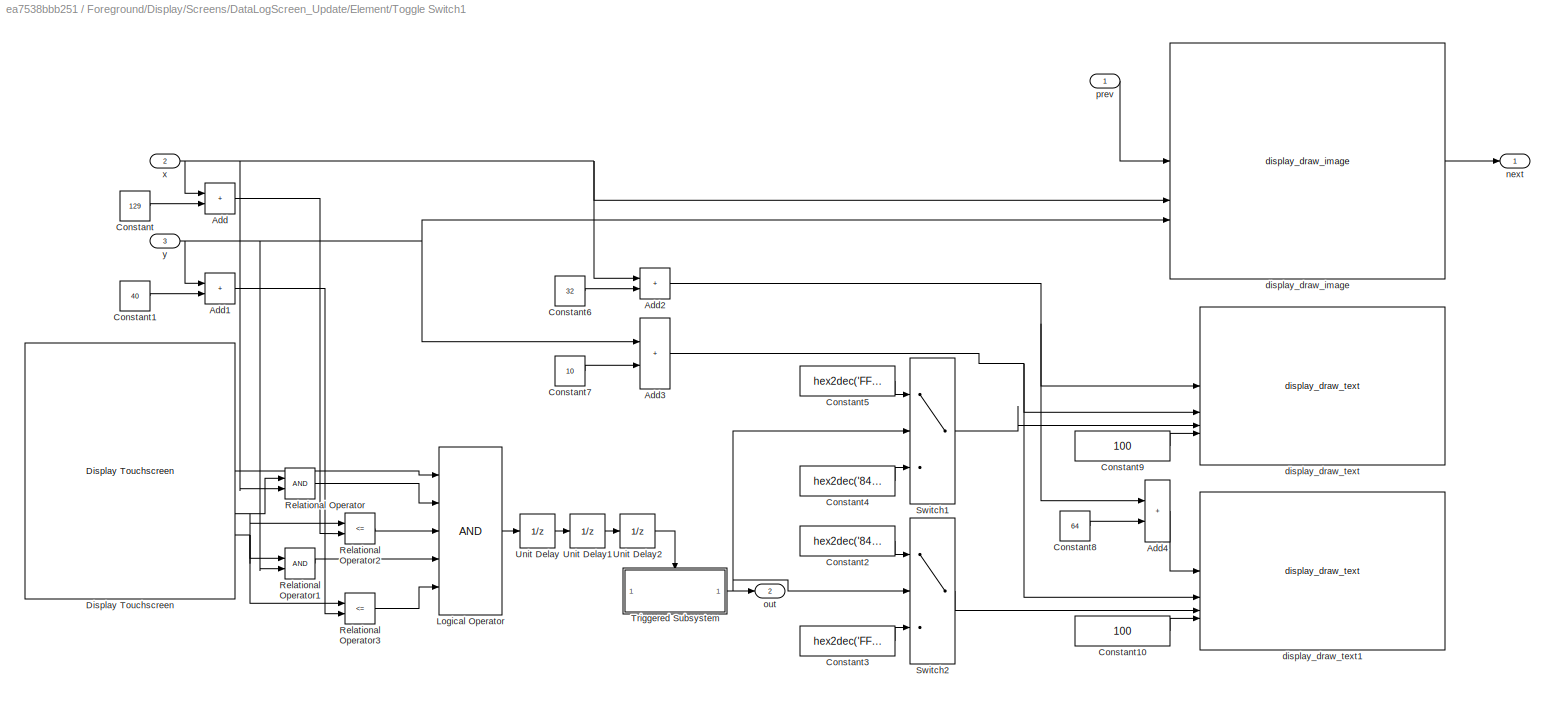
BLOCK [SubSystem] Foreground/Display/Screens/DataLogScreen_Update/Element/Toggle Switch1
BLOCK [Sum] Foreground/Display/Screens/DataLogScreen_Update/Element/Toggle Switch1/Add
  IconShape = rectangular
BLOCK [Sum] Foreground/Display/Screens/DataLogScreen_Update/Element/Toggle Switch1/Add1
  IconShape = rectangular
BLOCK [Sum] Foreground/Display/Screens/DataLogScreen_Update/Element/Toggle Switch1/Add2
  IconShape = rectangular
BLOCK [Sum] Foreground/Display/Screens/DataLogScreen_Update/Element/Toggle Switch1/Add3
  IconShape = rectangular
BLOCK [Sum] Foreground/Display/Screens/DataLogScreen_Update/Element/Toggle Switch1/Add4
  IconShape = rectangular
BLOCK [Constant] Foreground/Display/Screens/DataLogScreen_Update/Element/Toggle Switch1/Constant
  Value = 129
BLOCK [Constant] Foreground/Display/Screens/DataLogScreen_Update/Element/Toggle Switch1/Constant1
  Value = 40
BLOCK [Constant] Foreground/Display/Screens/DataLogScreen_Update/Element/Toggle Switch1/Constant10
  OutDataTypeStr = uint32
  Value = 100
BLOCK [Constant] Foreground/Display/Screens/DataLogScreen_Update/Element/Toggle Switch1/Constant2
  OutDataTypeStr = uint16
  Value = hex2dec('8410')
BLOCK [Constant] Foreground/Display/Screens/DataLogScreen_Update/Element/Toggle Switch1/Constant3
  OutDataTypeStr = uint16
  Value = hex2dec('FFFF')
BLOCK [Constant] Foreground/Display/Screens/DataLogScreen_Update/Element/Toggle Switch1/Constant4
  OutDataTypeStr = uint16
  Value = hex2dec('8410')
BLOCK [Constant] Foreground/Display/Screens/DataLogScreen_Update/Element/Toggle Switch1/Constant5
  OutDataTypeStr = uint16
  Value = hex2dec('FFFF')
BLOCK [Constant] Foreground/Display/Screens/DataLogScreen_Update/Element/Toggle Switch1/Constant6
  OutDataTypeStr = int32
  Value = 32
BLOCK [Constant] Foreground/Display/Screens/DataLogScreen_Update/Element/Toggle Switch1/Constant7
  OutDataTypeStr = int32
  Value = 10
BLOCK [Constant] Foreground/Display/Screens/DataLogScreen_Update/Element/Toggle Switch1/Constant8
  OutDataTypeStr = int32
  Value = 64
BLOCK [Constant] Foreground/Display/Screens/DataLogScreen_Update/Element/Toggle Switch1/Constant9
  OutDataTypeStr = uint32
  Value = 100
BLOCK [Reference] Foreground/Display/Screens/DataLogScreen_Update/Element/Toggle Switch1/Display Touchscreen  REF=Raptor_display_lib/Touchscreen/Display Touchscreen
  SourceBlock = Raptor_display_lib/Touchscreen/Display Touchscreen
  SourceProductName = Raptor Display Library
  SourceType = Display Touch Screen Block
BLOCK [Logic] Foreground/Display/Screens/DataLogScreen_Update/Element/Toggle Switch1/Logical Operator
  AllPortsSameDT = off
  IconShape = distinctive
  Inputs = 5
  OutDataTypeStr = boolean
BLOCK [RelationalOperator] Foreground/Display/Screens/DataLogScreen_Update/Element/Toggle Switch1/Relational Operator
  InputSameDT = off
  OutDataTypeStr = boolean
BLOCK [RelationalOperator] Foreground/Display/Screens/DataLogScreen_Update/Element/Toggle Switch1/Relational Operator1
  InputSameDT = off
  OutDataTypeStr = boolean
BLOCK [RelationalOperator] Foreground/Display/Screens/DataLogScreen_Update/Element/Toggle Switch1/Relational Operator2
  InputSameDT = off
  Operator = <=
  OutDataTypeStr = boolean
BLOCK [RelationalOperator] Foreground/Display/Screens/DataLogScreen_Update/Element/Toggle Switch1/Relational Operator3
  InputSameDT = off
  Operator = <=
  OutDataTypeStr = boolean
BLOCK [Switch] Foreground/Display/Screens/DataLogScreen_Update/Element/Toggle Switch1/Switch1
  Criteria = u2 ~= 0
  InputSameDT = off
  SaturateOnIntegerOverflow = off
BLOCK [Switch] Foreground/Display/Screens/DataLogScreen_Update/Element/Toggle Switch1/Switch2
  Criteria = u2 ~= 0
  InputSameDT = off
  SaturateOnIntegerOverflow = off
BLOCK [SubSystem] Foreground/Display/Screens/DataLogScreen_Update/Element/Toggle Switch1/Triggered Subsystem
  TreatAsAtomicUnit = on
BLOCK [Constant] Foreground/Display/Screens/DataLogScreen_Update/Element/Toggle Switch1/Triggered Subsystem/Constant2
BLOCK [Reference] Foreground/Display/Screens/DataLogScreen_Update/Element/Toggle Switch1/Triggered Subsystem/D Latch  REF=simulink_extras/Flip Flops/D Latch
  SourceBlock = simulink_extras/Flip Flops/D Latch
  SourceType = DLatch
BLOCK [Outport] Foreground/Display/Screens/DataLogScreen_Update/Element/Toggle Switch1/Triggered Subsystem/Out1
  VectorParamsAs1DForOutWhenUnconnected = off
BLOCK [TriggerPort] Foreground/Display/Screens/DataLogScreen_Update/Element/Toggle Switch1/Triggered Subsystem/Trigger
  StatesWhenEnabling = held
  VariantControl = Variant
BLOCK [UnitDelay] Foreground/Display/Screens/DataLogScreen_Update/Element/Toggle Switch1/Triggered Subsystem/Unit Delay
  HasFrameUpgradeWarning = on
  InitialCondition = InitialCondition
  SampleTime = -1
BLOCK [UnitDelay] Foreground/Display/Screens/DataLogScreen_Update/Element/Toggle Switch1/Unit Delay
  HasFrameUpgradeWarning = on
  SampleTime = -1
BLOCK [UnitDelay] Foreground/Display/Screens/DataLogScreen_Update/Element/Toggle Switch1/Unit Delay1
  HasFrameUpgradeWarning = on
  InitialCondition = 1
  SampleTime = -1
BLOCK [UnitDelay] Foreground/Display/Screens/DataLogScreen_Update/Element/Toggle Switch1/Unit Delay2
  HasFrameUpgradeWarning = on
  SampleTime = -1
BLOCK [Reference] Foreground/Display/Screens/DataLogScreen_Update/Element/Toggle Switch1/display_draw_image  REF=Raptor_display_lib/Drawing Functions/display_draw_image
  SourceBlock = Raptor_display_lib/Drawing Functions/display_draw_image
  SourceProductName = Raptor Display Library
  SourceType = Display Draw Image
BLOCK [Reference] Foreground/Display/Screens/DataLogScreen_Update/Element/Toggle Switch1/display_draw_text  REF=Raptor_display_lib/Drawing Functions/display_draw_text
  SourceBlock = Raptor_display_lib/Drawing Functions/display_draw_text
  SourceProductName = Raptor Display Library
  SourceType = Display Draw Text
BLOCK [Reference] Foreground/Display/Screens/DataLogScreen_Update/Element/Toggle Switch1/display_draw_text1  REF=Raptor_display_lib/Drawing Functions/display_draw_text
  SourceBlock = Raptor_display_lib/Drawing Functions/display_draw_text
  SourceProductName = Raptor Display Library
  SourceType = Display Draw Text
BLOCK [Outport] Foreground/Display/Screens/DataLogScreen_Update/Element/Toggle Switch1/next
  VectorParamsAs1DForOutWhenUnconnected = off
BLOCK [Outport] Foreground/Display/Screens/DataLogScreen_Update/Element/Toggle Switch1/out
  Port = 2
  VectorParamsAs1DForOutWhenUnconnected = off
BLOCK [Inport] Foreground/Display/Screens/DataLogScreen_Update/Element/Toggle Switch1/prev
BLOCK [Inport] Foreground/Display/Screens/DataLogScreen_Update/Element/Toggle Switch1/x
  Port = 2
BLOCK [Inport] Foreground/Display/Screens/DataLogScreen_Update/Element/Toggle Switch1/y
  Port = 3
BLOCK [Reference] Foreground/Display/Screens/DataLogScreen_Update/Element/display_draw_image  REF=Raptor_display_lib/Drawing Functions/display_draw_image
  SourceBlock = Raptor_display_lib/Drawing Functions/display_draw_image
  SourceProductName = Raptor Display Library
  SourceType = Display Draw Image
BLOCK [Reference] Foreground/Display/Screens/DataLogScreen_Update/Element/display_draw_image1  REF=Raptor_display_lib/Drawing Functions/display_draw_image
  SourceBlock = Raptor_display_lib/Drawing Functions/display_draw_image
  SourceProductName = Raptor Display Library
  SourceType = Display Draw Image
BLOCK [Reference] Foreground/Display/Screens/DataLogScreen_Update/Element/display_draw_image2  REF=Raptor_display_lib/Drawing Functions/display_draw_image
  SourceBlock = Raptor_display_lib/Drawing Functions/display_draw_image
  SourceProductName = Raptor Display Library
  SourceType = Display Draw Image
BLOCK [Reference] Foreground/Display/Screens/DataLogScreen_Update/Element/display_draw_image3  REF=Raptor_display_lib/Drawing Functions/display_draw_image
  SourceBlock = Raptor_display_lib/Drawing Functions/display_draw_image
  SourceProductName = Raptor Display Library
  SourceType = Display Draw Image
BLOCK [Reference] Foreground/Display/Screens/DataLogScreen_Update/Element/display_draw_text1  REF=Raptor_display_lib/Drawing Functions/display_draw_text
  SourceBlock = Raptor_display_lib/Drawing Functions/display_draw_text
  SourceProductName = Raptor Display Library
  SourceType = Display Draw Text
BLOCK [Reference] Foreground/Display/Screens/DataLogScreen_Update/Element/display_draw_text10  REF=Raptor_display_lib/Drawing Functions/display_draw_text
  SourceBlock = Raptor_display_lib/Drawing Functions/display_draw_text
  SourceProductName = Raptor Display Library
  SourceType = Display Draw Text
BLOCK [Reference] Foreground/Display/Screens/DataLogScreen_Update/Element/display_draw_text2  REF=Raptor_display_lib/Drawing Functions/display_draw_text
  SourceBlock = Raptor_display_lib/Drawing Functions/display_draw_text
  SourceProductName = Raptor Display Library
  SourceType = Display Draw Text
BLOCK [Reference] Foreground/Display/Screens/DataLogScreen_Update/Element/display_draw_text3  REF=Raptor_display_lib/Drawing Functions/display_draw_text
  SourceBlock = Raptor_display_lib/Drawing Functions/display_draw_text
  SourceProductName = Raptor Display Library
  SourceType = Display Draw Text
BLOCK [Reference] Foreground/Display/Screens/DataLogScreen_Update/Element/display_draw_text4  REF=Raptor_display_lib/Drawing Functions/display_draw_text
  SourceBlock = Raptor_display_lib/Drawing Functions/display_draw_text
  SourceProductName = Raptor Display Library
  SourceType = Display Draw Text
BLOCK [Reference] Foreground/Display/Screens/DataLogScreen_Update/Element/display_draw_text5  REF=Raptor_display_lib/Drawing Functions/display_draw_text
  SourceBlock = Raptor_display_lib/Drawing Functions/display_draw_text
  SourceProductName = Raptor Display Library
  SourceType = Display Draw Text
BLOCK [Reference] Foreground/Display/Screens/DataLogScreen_Update/Element/display_draw_text6  REF=Raptor_display_lib/Drawing Functions/display_draw_text
  SourceBlock = Raptor_display_lib/Drawing Functions/display_draw_text
  SourceProductName = Raptor Display Library
  SourceType = Display Draw Text
BLOCK [Reference] Foreground/Display/Screens/DataLogScreen_Update/Element/display_draw_text7  REF=Raptor_display_lib/Drawing Functions/display_draw_text
  SourceBlock = Raptor_display_lib/Drawing Functions/display_draw_text
  SourceProductName = Raptor Display Library
  SourceType = Display Draw Text
BLOCK [Reference] Foreground/Display/Screens/DataLogScreen_Update/Element/display_draw_text8  REF=Raptor_display_lib/Drawing Functions/display_draw_text
  SourceBlock = Raptor_display_lib/Drawing Functions/display_draw_text
  SourceProductName = Raptor Display Library
  SourceType = Display Draw Text
BLOCK [Reference] Foreground/Display/Screens/DataLogScreen_Update/Element/display_draw_text9  REF=Raptor_display_lib/Drawing Functions/display_draw_text
  SourceBlock = Raptor_display_lib/Drawing Functions/display_draw_text
  SourceProductName = Raptor Display Library
  SourceType = Display Draw Text
BLOCK [Reference] Foreground/Display/Screens/DataLogScreen_Update/Element/display_image_reference  REF=Raptor_display_lib/Drawing Functions/display_image_reference
  SourceBlock = Raptor_display_lib/Drawing Functions/display_image_reference
  SourceProductName = Raptor Display Library
  SourceType = Display Image Reference
BLOCK [Reference] Foreground/Display/Screens/DataLogScreen_Update/Element/display_image_reference1  REF=Raptor_display_lib/Drawing Functions/display_image_reference
  SourceBlock = Raptor_display_lib/Drawing Functions/display_image_reference
  SourceProductName = Raptor Display Library
  SourceType = Display Image Reference
BLOCK [Reference] Foreground/Display/Screens/DataLogScreen_Update/Element/display_image_reference2  REF=Raptor_display_lib/Drawing Functions/display_image_reference
  SourceBlock = Raptor_display_lib/Drawing Functions/display_image_reference
  SourceProductName = Raptor Display Library
  SourceType = Display Image Reference
BLOCK [Reference] Foreground/Display/Screens/DataLogScreen_Update/Element/display_image_reference3  REF=Raptor_display_lib/Drawing Functions/display_image_reference
  SourceBlock = Raptor_display_lib/Drawing Functions/display_image_reference
  SourceProductName = Raptor Display Library
  SourceType = Display Image Reference
BLOCK [Reference] Foreground/Display/Screens/DataLogScreen_Update/Element/display_image_reference4  REF=Raptor_display_lib/Drawing Functions/display_image_reference
  SourceBlock = Raptor_display_lib/Drawing Functions/display_image_reference
  SourceProductName = Raptor Display Library
  SourceType = Display Image Reference
BLOCK [Reference] Foreground/Display/Screens/DataLogScreen_Update/Element/display_image_reference5  REF=Raptor_display_lib/Drawing Functions/display_image_reference
  SourceBlock = Raptor_display_lib/Drawing Functions/display_image_reference
  SourceProductName = Raptor Display Library
  SourceType = Display Image Reference
BLOCK [Reference] Foreground/Display/Screens/DataLogScreen_Update/Element/display_image_reference6  REF=Raptor_display_lib/Drawing Functions/display_image_reference
  SourceBlock = Raptor_display_lib/Drawing Functions/display_image_reference
  SourceProductName = Raptor Display Library
  SourceType = Display Image Reference
BLOCK [Reference] Foreground/Display/Screens/DataLogScreen_Update/Element/display_image_reference7  REF=Raptor_display_lib/Drawing Functions/display_image_reference
  SourceBlock = Raptor_display_lib/Drawing Functions/display_image_reference
  SourceProductName = Raptor Display Library
  SourceType = Display Image Reference
BLOCK [TriggerPort] Foreground/Display/Screens/DataLogScreen_Update/Element/function
  StatesWhenEnabling = held
  TriggerType = function-call
  VariantControl = Variant
BLOCK [Reference] Foreground/Display/Screens/DataLogScreen_Update/Element/raptor_string  REF=Raptor_lib/Strings/raptor_string
  SourceBlock = Raptor_lib/Strings/raptor_string
  SourceProductName = Raptor
  SourceType = Raptor String
BLOCK [Reference] Foreground/Display/Screens/DataLogScreen_Update/Element/raptor_string1  REF=Raptor_lib/Strings/raptor_string
  SourceBlock = Raptor_lib/Strings/raptor_string
  SourceProductName = Raptor
  SourceType = Raptor String
BLOCK [Reference] Foreground/Display/Screens/DataLogScreen_Update/Element/raptor_string2  REF=Raptor_lib/Strings/raptor_string
  SourceBlock = Raptor_lib/Strings/raptor_string
  SourceProductName = Raptor
  SourceType = Raptor String
BLOCK [Reference] Foreground/Display/Screens/DataLogScreen_Update/Element/raptor_string_printf  REF=Raptor_lib/Strings/raptor_string_printf
  SourceBlock = Raptor_lib/Strings/raptor_string_printf
  SourceProductName = Raptor
  SourceType = Raptor Printf
BLOCK [Reference] Foreground/Display/Screens/DataLogScreen_Update/Element/raptor_string_printf1  REF=Raptor_lib/Strings/raptor_string_printf
  SourceBlock = Raptor_lib/Strings/raptor_string_printf
  SourceProductName = Raptor
  SourceType = Raptor Printf
BLOCK [Inport] Foreground/Display/Screens/DataLogScreen_Update/Sensors
BLOCK [Reference] Foreground/Display/Screens/DataLogScreen_Update/display_element1  REF=Raptor_display_lib/Drawing Functions/display_element
  SourceBlock = Raptor_display_lib/Drawing Functions/display_element
  SourceProductName = Raptor Display Library
  SourceType = Display Element
BLOCK [TriggerPort] Foreground/Display/Screens/DataLogScreen_Update/function
  StatesWhenEnabling = held
  TriggerType = function-call
  VariantControl = Variant
BLOCK [Inport] Foreground/Display/Screens/DataLogState
  Port = 2
BLOCK [SubSystem] Foreground/Display/Screens/IOScreen_Create
  NameLocation = right
  TreatAsAtomicUnit = on
BLOCK [Constant] Foreground/Display/Screens/IOScreen_Create/Constant16
  OutDataTypeStr = int32
  Value = 400
BLOCK [Constant] Foreground/Display/Screens/IOScreen_Create/Constant2
  OutDataTypeStr = int32
  Value = 440
BLOCK [Constant] Foreground/Display/Screens/IOScreen_Create/Constant3
  OutDataTypeStr = int32
BLOCK [Constant] Foreground/Display/Screens/IOScreen_Create/Constant4
  OutDataTypeStr = int32
BLOCK [Constant] Foreground/Display/Screens/IOScreen_Create/Constant5
  OutDataTypeStr = int32
BLOCK [Constant] Foreground/Display/Screens/IOScreen_Create/Constant6
  OutDataTypeStr = int32
  Value = 207
BLOCK [SubSystem] Foreground/Display/Screens/IOScreen_Create/IOScreenSwipe
BLOCK [Constant] Foreground/Display/Screens/IOScreen_Create/IOScreenSwipe/Constant
  OutDataTypeStr = uint8
  Value = 2
BLOCK [FunctionCaller] Foreground/Display/Screens/IOScreen_Create/IOScreenSwipe/Function Caller
  FunctionPrototype = Screens.Navigation(gesture,curr_screen)
  InputArgumentSpecifications = <Enter example>
  OutputArgumentSpecifications = <Enter example>
BLOCK [TriggerPort] Foreground/Display/Screens/IOScreen_Create/IOScreenSwipe/IOScreenSwipe
  FunctionName = IOScreenSwipe
  FunctionVisibility = scoped
  IsSimulinkFunction = on
  PortDimensions = 1
  StatesWhenEnabling = held
  TriggerType = function-call
  VariantControl = Variant
BLOCK [ArgIn] Foreground/Display/Screens/IOScreen_Create/IOScreenSwipe/gesture
  ArgumentName = gesture
  OutDataTypeStr = uint8
BLOCK [Reference] Foreground/Display/Screens/IOScreen_Create/display_clear_screen  REF=Raptor_display_lib/Drawing Functions/display_clear_screen
  Priority = 100
  SourceBlock = Raptor_display_lib/Drawing Functions/display_clear_screen
  SourceProductName = Raptor Display Library
  SourceType = Display Clear Screen
BLOCK [Reference] Foreground/Display/Screens/IOScreen_Create/display_draw_image  REF=Raptor_display_lib/Drawing Functions/display_draw_image
  SourceBlock = Raptor_display_lib/Drawing Functions/display_draw_image
  SourceProductName = Raptor Display Library
  SourceType = Display Draw Image
BLOCK [Reference] Foreground/Display/Screens/IOScreen_Create/display_draw_image1  REF=Raptor_display_lib/Drawing Functions/display_draw_image
  SourceBlock = Raptor_display_lib/Drawing Functions/display_draw_image
  SourceProductName = Raptor Display Library
  SourceType = Display Draw Image
BLOCK [Reference] Foreground/Display/Screens/IOScreen_Create/display_draw_text  REF=Raptor_display_lib/Drawing Functions/display_draw_text
  SourceBlock = Raptor_display_lib/Drawing Functions/display_draw_text
  SourceProductName = Raptor Display Library
  SourceType = Display Draw Text
BLOCK [TriggerPort] Foreground/Display/Screens/IOScreen_Create/function
  StatesWhenEnabling = held
  TriggerType = function-call
  VariantControl = Variant
BLOCK [Reference] Foreground/Display/Screens/IOScreen_Create/raptor_display_swipe_action2  REF=Raptor_display_lib/Touchscreen/raptor_display_swipe_action
  SourceBlock = Raptor_display_lib/Touchscreen/raptor_display_swipe_action
  SourceProductName = Raptor Display Library
  SourceType = Update Touchscreen Swipe Action
BLOCK [SubSystem] Foreground/Display/Screens/IOScreen_Update
  TreatAsAtomicUnit = on
BLOCK [Outport] Foreground/Display/Screens/IOScreen_Update/Actuators
  VectorParamsAs1DForOutWhenUnconnected = off
BLOCK [SubSystem] Foreground/Display/Screens/IOScreen_Update/IOElement1
BLOCK [Sum] Foreground/Display/Screens/IOScreen_Update/IOElement1/Add1
  IconShape = rectangular
  Inputs = +-
BLOCK [Sum] Foreground/Display/Screens/IOScreen_Update/IOElement1/Add2
  IconShape = rectangular
  Inputs = +-
BLOCK [Sum] Foreground/Display/Screens/IOScreen_Update/IOElement1/Add3
  IconShape = rectangular
BLOCK [Sum] Foreground/Display/Screens/IOScreen_Update/IOElement1/Add4
  IconShape = rectangular
  Inputs = +-
BLOCK [Sum] Foreground/Display/Screens/IOScreen_Update/IOElement1/Add9
  IconShape = rectangular
BLOCK [Constant] Foreground/Display/Screens/IOScreen_Update/IOElement1/Constant1
  OutDataTypeStr = int32
  Value = 140
BLOCK [Constant] Foreground/Display/Screens/IOScreen_Update/IOElement1/Constant10
  OutDataTypeStr = int32
  Value = 400
BLOCK [Constant] Foreground/Display/Screens/IOScreen_Update/IOElement1/Constant13
  OutDataTypeStr = int32
  Value = 50
BLOCK [Constant] Foreground/Display/Screens/IOScreen_Update/IOElement1/Constant2
  OutDataTypeStr = int32
  Value = 10
BLOCK [Constant] Foreground/Display/Screens/IOScreen_Update/IOElement1/Constant3
  OutDataTypeStr = int32
  Value = 50
BLOCK [Constant] Foreground/Display/Screens/IOScreen_Update/IOElement1/Constant4
  OutDataTypeStr = int32
  Value = 10
BLOCK [Constant] Foreground/Display/Screens/IOScreen_Update/IOElement1/Constant5
  OutDataTypeStr = int32
  Value = 50
BLOCK [Ground] Foreground/Display/Screens/IOScreen_Update/IOElement1/Ground3
BLOCK [Ground] Foreground/Display/Screens/IOScreen_Update/IOElement1/Ground4
BLOCK [Outport] Foreground/Display/Screens/IOScreen_Update/IOElement1/Out Bus Element1
  VectorParamsAs1DForOutWhenUnconnected = off
BLOCK [Outport] Foreground/Display/Screens/IOScreen_Update/IOElement1/Out Bus Element2
  VectorParamsAs1DForOutWhenUnconnected = off
BLOCK [Terminator] Foreground/Display/Screens/IOScreen_Update/IOElement1/Terminator2
BLOCK [Terminator] Foreground/Display/Screens/IOScreen_Update/IOElement1/Terminator3
BLOCK [SubSystem] Foreground/Display/Screens/IOScreen_Update/IOElement1/Toggle Switch1
BLOCK [Sum] Foreground/Display/Screens/IOScreen_Update/IOElement1/Toggle Switch1/Add
  IconShape = rectangular
BLOCK [Sum] Foreground/Display/Screens/IOScreen_Update/IOElement1/Toggle Switch1/Add1
  IconShape = rectangular
BLOCK [Sum] Foreground/Display/Screens/IOScreen_Update/IOElement1/Toggle Switch1/Add2
  IconShape = rectangular
BLOCK [Sum] Foreground/Display/Screens/IOScreen_Update/IOElement1/Toggle Switch1/Add3
  IconShape = rectangular
BLOCK [Sum] Foreground/Display/Screens/IOScreen_Update/IOElement1/Toggle Switch1/Add4
  IconShape = rectangular
BLOCK [Constant] Foreground/Display/Screens/IOScreen_Update/IOElement1/Toggle Switch1/Constant
  Value = 129
BLOCK [Constant] Foreground/Display/Screens/IOScreen_Update/IOElement1/Toggle Switch1/Constant1
  Value = 40
BLOCK [Constant] Foreground/Display/Screens/IOScreen_Update/IOElement1/Toggle Switch1/Constant10
  OutDataTypeStr = uint32
  Value = 100
BLOCK [Constant] Foreground/Display/Screens/IOScreen_Update/IOElement1/Toggle Switch1/Constant2
  OutDataTypeStr = uint16
  Value = hex2dec('8410')
BLOCK [Constant] Foreground/Display/Screens/IOScreen_Update/IOElement1/Toggle Switch1/Constant3
  OutDataTypeStr = uint16
  Value = hex2dec('FFFF')
BLOCK [Constant] Foreground/Display/Screens/IOScreen_Update/IOElement1/Toggle Switch1/Constant4
  OutDataTypeStr = uint16
  Value = hex2dec('8410')
BLOCK [Constant] Foreground/Display/Screens/IOScreen_Update/IOElement1/Toggle Switch1/Constant5
  OutDataTypeStr = uint16
  Value = hex2dec('FFFF')
BLOCK [Constant] Foreground/Display/Screens/IOScreen_Update/IOElement1/Toggle Switch1/Constant6
  OutDataTypeStr = int32
  Value = 32
BLOCK [Constant] Foreground/Display/Screens/IOScreen_Update/IOElement1/Toggle Switch1/Constant7
  OutDataTypeStr = int32
  Value = 10
BLOCK [Constant] Foreground/Display/Screens/IOScreen_Update/IOElement1/Toggle Switch1/Constant8
  OutDataTypeStr = int32
  Value = 64
BLOCK [Constant] Foreground/Display/Screens/IOScreen_Update/IOElement1/Toggle Switch1/Constant9
  OutDataTypeStr = uint32
  Value = 100
BLOCK [Reference] Foreground/Display/Screens/IOScreen_Update/IOElement1/Toggle Switch1/Display Touchscreen  REF=Raptor_display_lib/Touchscreen/Display Touchscreen
  SourceBlock = Raptor_display_lib/Touchscreen/Display Touchscreen
  SourceProductName = Raptor Display Library
  SourceType = Display Touch Screen Block
BLOCK [Logic] Foreground/Display/Screens/IOScreen_Update/IOElement1/Toggle Switch1/Logical Operator
  AllPortsSameDT = off
  IconShape = distinctive
  Inputs = 5
  OutDataTypeStr = boolean
BLOCK [RelationalOperator] Foreground/Display/Screens/IOScreen_Update/IOElement1/Toggle Switch1/Relational Operator
  InputSameDT = off
  OutDataTypeStr = boolean
BLOCK [RelationalOperator] Foreground/Display/Screens/IOScreen_Update/IOElement1/Toggle Switch1/Relational Operator1
  InputSameDT = off
  OutDataTypeStr = boolean
BLOCK [RelationalOperator] Foreground/Display/Screens/IOScreen_Update/IOElement1/Toggle Switch1/Relational Operator2
  InputSameDT = off
  Operator = <=
  OutDataTypeStr = boolean
BLOCK [RelationalOperator] Foreground/Display/Screens/IOScreen_Update/IOElement1/Toggle Switch1/Relational Operator3
  InputSameDT = off
  Operator = <=
  OutDataTypeStr = boolean
BLOCK [Switch] Foreground/Display/Screens/IOScreen_Update/IOElement1/Toggle Switch1/Switch1
  Criteria = u2 ~= 0
  InputSameDT = off
  SaturateOnIntegerOverflow = off
BLOCK [Switch] Foreground/Display/Screens/IOScreen_Update/IOElement1/Toggle Switch1/Switch2
  Criteria = u2 ~= 0
  InputSameDT = off
  SaturateOnIntegerOverflow = off
BLOCK [SubSystem] Foreground/Display/Screens/IOScreen_Update/IOElement1/Toggle Switch1/Triggered Subsystem
  TreatAsAtomicUnit = on
BLOCK [Constant] Foreground/Display/Screens/IOScreen_Update/IOElement1/Toggle Switch1/Triggered Subsystem/Constant2
BLOCK [Reference] Foreground/Display/Screens/IOScreen_Update/IOElement1/Toggle Switch1/Triggered Subsystem/D Latch  REF=simulink_extras/Flip Flops/D Latch
  SourceBlock = simulink_extras/Flip Flops/D Latch
  SourceType = DLatch
BLOCK [Outport] Foreground/Display/Screens/IOScreen_Update/IOElement1/Toggle Switch1/Triggered Subsystem/Out1
  VectorParamsAs1DForOutWhenUnconnected = off
BLOCK [TriggerPort] Foreground/Display/Screens/IOScreen_Update/IOElement1/Toggle Switch1/Triggered Subsystem/Trigger
  StatesWhenEnabling = held
  VariantControl = Variant
BLOCK [UnitDelay] Foreground/Display/Screens/IOScreen_Update/IOElement1/Toggle Switch1/Triggered Subsystem/Unit Delay
  HasFrameUpgradeWarning = on
  InitialCondition = InitialCondition
  SampleTime = -1
BLOCK [UnitDelay] Foreground/Display/Screens/IOScreen_Update/IOElement1/Toggle Switch1/Unit Delay
  HasFrameUpgradeWarning = on
  SampleTime = -1
BLOCK [UnitDelay] Foreground/Display/Screens/IOScreen_Update/IOElement1/Toggle Switch1/Unit Delay1
  HasFrameUpgradeWarning = on
  InitialCondition = 1
  SampleTime = -1
BLOCK [UnitDelay] Foreground/Display/Screens/IOScreen_Update/IOElement1/Toggle Switch1/Unit Delay2
  HasFrameUpgradeWarning = on
  SampleTime = -1
BLOCK [Reference] Foreground/Display/Screens/IOScreen_Update/IOElement1/Toggle Switch1/display_draw_image  REF=Raptor_display_lib/Drawing Functions/display_draw_image
  SourceBlock = Raptor_display_lib/Drawing Functions/display_draw_image
  SourceProductName = Raptor Display Library
  SourceType = Display Draw Image
BLOCK [Reference] Foreground/Display/Screens/IOScreen_Update/IOElement1/Toggle Switch1/display_draw_text  REF=Raptor_display_lib/Drawing Functions/display_draw_text
  SourceBlock = Raptor_display_lib/Drawing Functions/display_draw_text
  SourceProductName = Raptor Display Library
  SourceType = Display Draw Text
BLOCK [Reference] Foreground/Display/Screens/IOScreen_Update/IOElement1/Toggle Switch1/display_draw_text1  REF=Raptor_display_lib/Drawing Functions/display_draw_text
  SourceBlock = Raptor_display_lib/Drawing Functions/display_draw_text
  SourceProductName = Raptor Display Library
  SourceType = Display Draw Text
BLOCK [Outport] Foreground/Display/Screens/IOScreen_Update/IOElement1/Toggle Switch1/next
  VectorParamsAs1DForOutWhenUnconnected = off
BLOCK [Outport] Foreground/Display/Screens/IOScreen_Update/IOElement1/Toggle Switch1/out
  Port = 2
  VectorParamsAs1DForOutWhenUnconnected = off
BLOCK [Inport] Foreground/Display/Screens/IOScreen_Update/IOElement1/Toggle Switch1/prev
BLOCK [Inport] Foreground/Display/Screens/IOScreen_Update/IOElement1/Toggle Switch1/x
  Port = 2
BLOCK [Inport] Foreground/Display/Screens/IOScreen_Update/IOElement1/Toggle Switch1/y
  Port = 3
BLOCK [SubSystem] Foreground/Display/Screens/IOScreen_Update/IOElement1/Toggle Switch2
BLOCK [Sum] Foreground/Display/Screens/IOScreen_Update/IOElement1/Toggle Switch2/Add
  IconShape = rectangular
BLOCK [Sum] Foreground/Display/Screens/IOScreen_Update/IOElement1/Toggle Switch2/Add1
  IconShape = rectangular
BLOCK [Sum] Foreground/Display/Screens/IOScreen_Update/IOElement1/Toggle Switch2/Add2
  IconShape = rectangular
BLOCK [Sum] Foreground/Display/Screens/IOScreen_Update/IOElement1/Toggle Switch2/Add3
  IconShape = rectangular
BLOCK [Sum] Foreground/Display/Screens/IOScreen_Update/IOElement1/Toggle Switch2/Add4
  IconShape = rectangular
BLOCK [Constant] Foreground/Display/Screens/IOScreen_Update/IOElement1/Toggle Switch2/Constant
  Value = 129
BLOCK [Constant] Foreground/Display/Screens/IOScreen_Update/IOElement1/Toggle Switch2/Constant1
  Value = 40
BLOCK [Constant] Foreground/Display/Screens/IOScreen_Update/IOElement1/Toggle Switch2/Constant10
  OutDataTypeStr = uint32
  Value = 100
BLOCK [Constant] Foreground/Display/Screens/IOScreen_Update/IOElement1/Toggle Switch2/Constant2
  OutDataTypeStr = uint16
  Value = hex2dec('8410')
BLOCK [Constant] Foreground/Display/Screens/IOScreen_Update/IOElement1/Toggle Switch2/Constant3
  OutDataTypeStr = uint16
  Value = hex2dec('FFFF')
BLOCK [Constant] Foreground/Display/Screens/IOScreen_Update/IOElement1/Toggle Switch2/Constant4
  OutDataTypeStr = uint16
  Value = hex2dec('8410')
BLOCK [Constant] Foreground/Display/Screens/IOScreen_Update/IOElement1/Toggle Switch2/Constant5
  OutDataTypeStr = uint16
  Value = hex2dec('FFFF')
BLOCK [Constant] Foreground/Display/Screens/IOScreen_Update/IOElement1/Toggle Switch2/Constant6
  OutDataTypeStr = int32
  Value = 32
BLOCK [Constant] Foreground/Display/Screens/IOScreen_Update/IOElement1/Toggle Switch2/Constant7
  OutDataTypeStr = int32
  Value = 10
BLOCK [Constant] Foreground/Display/Screens/IOScreen_Update/IOElement1/Toggle Switch2/Constant8
  OutDataTypeStr = int32
  Value = 64
BLOCK [Constant] Foreground/Display/Screens/IOScreen_Update/IOElement1/Toggle Switch2/Constant9
  OutDataTypeStr = uint32
  Value = 100
BLOCK [Reference] Foreground/Display/Screens/IOScreen_Update/IOElement1/Toggle Switch2/Display Touchscreen  REF=Raptor_display_lib/Touchscreen/Display Touchscreen
  SourceBlock = Raptor_display_lib/Touchscreen/Display Touchscreen
  SourceProductName = Raptor Display Library
  SourceType = Display Touch Screen Block
BLOCK [Logic] Foreground/Display/Screens/IOScreen_Update/IOElement1/Toggle Switch2/Logical Operator
  AllPortsSameDT = off
  IconShape = distinctive
  Inputs = 5
  OutDataTypeStr = boolean
BLOCK [RelationalOperator] Foreground/Display/Screens/IOScreen_Update/IOElement1/Toggle Switch2/Relational Operator
  InputSameDT = off
  OutDataTypeStr = boolean
BLOCK [RelationalOperator] Foreground/Display/Screens/IOScreen_Update/IOElement1/Toggle Switch2/Relational Operator1
  InputSameDT = off
  OutDataTypeStr = boolean
BLOCK [RelationalOperator] Foreground/Display/Screens/IOScreen_Update/IOElement1/Toggle Switch2/Relational Operator2
  InputSameDT = off
  Operator = <=
  OutDataTypeStr = boolean
BLOCK [RelationalOperator] Foreground/Display/Screens/IOScreen_Update/IOElement1/Toggle Switch2/Relational Operator3
  InputSameDT = off
  Operator = <=
  OutDataTypeStr = boolean
BLOCK [Switch] Foreground/Display/Screens/IOScreen_Update/IOElement1/Toggle Switch2/Switch1
  Criteria = u2 ~= 0
  InputSameDT = off
  SaturateOnIntegerOverflow = off
BLOCK [Switch] Foreground/Display/Screens/IOScreen_Update/IOElement1/Toggle Switch2/Switch2
  Criteria = u2 ~= 0
  InputSameDT = off
  SaturateOnIntegerOverflow = off
BLOCK [SubSystem] Foreground/Display/Screens/IOScreen_Update/IOElement1/Toggle Switch2/Triggered Subsystem
  TreatAsAtomicUnit = on
BLOCK [Constant] Foreground/Display/Screens/IOScreen_Update/IOElement1/Toggle Switch2/Triggered Subsystem/Constant2
BLOCK [Reference] Foreground/Display/Screens/IOScreen_Update/IOElement1/Toggle Switch2/Triggered Subsystem/D Latch  REF=simulink_extras/Flip Flops/D Latch
  SourceBlock = simulink_extras/Flip Flops/D Latch
  SourceType = DLatch
BLOCK [Outport] Foreground/Display/Screens/IOScreen_Update/IOElement1/Toggle Switch2/Triggered Subsystem/Out1
  VectorParamsAs1DForOutWhenUnconnected = off
BLOCK [TriggerPort] Foreground/Display/Screens/IOScreen_Update/IOElement1/Toggle Switch2/Triggered Subsystem/Trigger
  StatesWhenEnabling = held
  VariantControl = Variant
BLOCK [UnitDelay] Foreground/Display/Screens/IOScreen_Update/IOElement1/Toggle Switch2/Triggered Subsystem/Unit Delay
  HasFrameUpgradeWarning = on
  InitialCondition = InitialCondition
  SampleTime = -1
BLOCK [UnitDelay] Foreground/Display/Screens/IOScreen_Update/IOElement1/Toggle Switch2/Unit Delay
  HasFrameUpgradeWarning = on
  SampleTime = -1
BLOCK [UnitDelay] Foreground/Display/Screens/IOScreen_Update/IOElement1/Toggle Switch2/Unit Delay1
  HasFrameUpgradeWarning = on
  InitialCondition = 1
  SampleTime = -1
BLOCK [UnitDelay] Foreground/Display/Screens/IOScreen_Update/IOElement1/Toggle Switch2/Unit Delay2
  HasFrameUpgradeWarning = on
  SampleTime = -1
BLOCK [Reference] Foreground/Display/Screens/IOScreen_Update/IOElement1/Toggle Switch2/display_draw_image  REF=Raptor_display_lib/Drawing Functions/display_draw_image
  SourceBlock = Raptor_display_lib/Drawing Functions/display_draw_image
  SourceProductName = Raptor Display Library
  SourceType = Display Draw Image
BLOCK [Reference] Foreground/Display/Screens/IOScreen_Update/IOElement1/Toggle Switch2/display_draw_text  REF=Raptor_display_lib/Drawing Functions/display_draw_text
  SourceBlock = Raptor_display_lib/Drawing Functions/display_draw_text
  SourceProductName = Raptor Display Library
  SourceType = Display Draw Text
BLOCK [Reference] Foreground/Display/Screens/IOScreen_Update/IOElement1/Toggle Switch2/display_draw_text1  REF=Raptor_display_lib/Drawing Functions/display_draw_text
  SourceBlock = Raptor_display_lib/Drawing Functions/display_draw_text
  SourceProductName = Raptor Display Library
  SourceType = Display Draw Text
BLOCK [Outport] Foreground/Display/Screens/IOScreen_Update/IOElement1/Toggle Switch2/next
  VectorParamsAs1DForOutWhenUnconnected = off
BLOCK [Outport] Foreground/Display/Screens/IOScreen_Update/IOElement1/Toggle Switch2/out
  Port = 2
  VectorParamsAs1DForOutWhenUnconnected = off
BLOCK [Inport] Foreground/Display/Screens/IOScreen_Update/IOElement1/Toggle Switch2/prev
BLOCK [Inport] Foreground/Display/Screens/IOScreen_Update/IOElement1/Toggle Switch2/x
  Port = 2
BLOCK [Inport] Foreground/Display/Screens/IOScreen_Update/IOElement1/Toggle Switch2/y
  Port = 3
BLOCK [Reference] Foreground/Display/Screens/IOScreen_Update/IOElement1/display_draw_text2  REF=Raptor_display_lib/Drawing Functions/display_draw_text
  SourceBlock = Raptor_display_lib/Drawing Functions/display_draw_text
  SourceProductName = Raptor Display Library
  SourceType = Display Draw Text
BLOCK [Reference] Foreground/Display/Screens/IOScreen_Update/IOElement1/display_draw_text4  REF=Raptor_display_lib/Drawing Functions/display_draw_text
  SourceBlock = Raptor_display_lib/Drawing Functions/display_draw_text
  SourceProductName = Raptor Display Library
  SourceType = Display Draw Text
BLOCK [Reference] Foreground/Display/Screens/IOScreen_Update/IOElement1/display_draw_text5  REF=Raptor_display_lib/Drawing Functions/display_draw_text
  SourceBlock = Raptor_display_lib/Drawing Functions/display_draw_text
  SourceProductName = Raptor Display Library
  SourceType = Display Draw Text
BLOCK [TriggerPort] Foreground/Display/Screens/IOScreen_Update/IOElement1/function
  StatesWhenEnabling = held
  TriggerType = function-call
  VariantControl = Variant
BLOCK [Reference] Foreground/Display/Screens/IOScreen_Update/display_element1  REF=Raptor_display_lib/Drawing Functions/display_element
  SourceBlock = Raptor_display_lib/Drawing Functions/display_element
  SourceProductName = Raptor Display Library
  SourceType = Display Element
BLOCK [TriggerPort] Foreground/Display/Screens/IOScreen_Update/function
  StatesWhenEnabling = held
  TriggerType = function-call
  VariantControl = Variant
BLOCK [SubSystem] Foreground/Display/Screens/MainScreen_Create
  NameLocation = right
  TreatAsAtomicUnit = on
BLOCK [Constant] Foreground/Display/Screens/MainScreen_Create/Constant16
  OutDataTypeStr = int32
  Value = 400
BLOCK [Constant] Foreground/Display/Screens/MainScreen_Create/Constant2
  OutDataTypeStr = int32
  Value = 440
BLOCK [Constant] Foreground/Display/Screens/MainScreen_Create/Constant3
  OutDataTypeStr = int32
BLOCK [Constant] Foreground/Display/Screens/MainScreen_Create/Constant4
  OutDataTypeStr = int32
BLOCK [Constant] Foreground/Display/Screens/MainScreen_Create/Constant5
  OutDataTypeStr = int32
BLOCK [Constant] Foreground/Display/Screens/MainScreen_Create/Constant6
  OutDataTypeStr = int32
  Value = 207
BLOCK [SubSystem] Foreground/Display/Screens/MainScreen_Create/MainScreenSwipe
BLOCK [Constant] Foreground/Display/Screens/MainScreen_Create/MainScreenSwipe/Constant
  OutDataTypeStr = uint8
BLOCK [FunctionCaller] Foreground/Display/Screens/MainScreen_Create/MainScreenSwipe/Function Caller
  FunctionPrototype = Screens.Navigation(gesture,curr_screen)
  InputArgumentSpecifications = <Enter example>
  OutputArgumentSpecifications = <Enter example>
BLOCK [TriggerPort] Foreground/Display/Screens/MainScreen_Create/MainScreenSwipe/MainScreenSwipe
  FunctionName = MainScreenSwipe
  FunctionVisibility = scoped
  IsSimulinkFunction = on
  PortDimensions = 1
  StatesWhenEnabling = held
  TriggerType = function-call
  VariantControl = Variant
BLOCK [ArgIn] Foreground/Display/Screens/MainScreen_Create/MainScreenSwipe/gesture
  ArgumentName = gesture
  OutDataTypeStr = uint8
BLOCK [Reference] Foreground/Display/Screens/MainScreen_Create/display_clear_screen  REF=Raptor_display_lib/Drawing Functions/display_clear_screen
  Priority = 100
  SourceBlock = Raptor_display_lib/Drawing Functions/display_clear_screen
  SourceProductName = Raptor Display Library
  SourceType = Display Clear Screen
BLOCK [Reference] Foreground/Display/Screens/MainScreen_Create/display_draw_image  REF=Raptor_display_lib/Drawing Functions/display_draw_image
  SourceBlock = Raptor_display_lib/Drawing Functions/display_draw_image
  SourceProductName = Raptor Display Library
  SourceType = Display Draw Image
BLOCK [Reference] Foreground/Display/Screens/MainScreen_Create/display_draw_image1  REF=Raptor_display_lib/Drawing Functions/display_draw_image
  SourceBlock = Raptor_display_lib/Drawing Functions/display_draw_image
  SourceProductName = Raptor Display Library
  SourceType = Display Draw Image
BLOCK [Reference] Foreground/Display/Screens/MainScreen_Create/display_draw_text  REF=Raptor_display_lib/Drawing Functions/display_draw_text
  SourceBlock = Raptor_display_lib/Drawing Functions/display_draw_text
  SourceProductName = Raptor Display Library
  SourceType = Display Draw Text
BLOCK [TriggerPort] Foreground/Display/Screens/MainScreen_Create/function
  StatesWhenEnabling = held
  TriggerType = function-call
  VariantControl = Variant
BLOCK [Reference] Foreground/Display/Screens/MainScreen_Create/raptor_display_swipe_action1  REF=Raptor_display_lib/Touchscreen/raptor_display_swipe_action
  SourceBlock = Raptor_display_lib/Touchscreen/raptor_display_swipe_action
  SourceProductName = Raptor Display Library
  SourceType = Update Touchscreen Swipe Action
BLOCK [SubSystem] Foreground/Display/Screens/MainScreen_Update
  TreatAsAtomicUnit = on
BLOCK [Sum] Foreground/Display/Screens/MainScreen_Update/Add
  IconShape = rectangular
BLOCK [Sum] Foreground/Display/Screens/MainScreen_Update/Add1
  IconShape = rectangular
BLOCK [Reference] Foreground/Display/Screens/MainScreen_Update/Brightness Gauge  REF=Raptor_display_lib/Prefab/Gauge
  SourceBlock = Raptor_display_lib/Prefab/Gauge
  SourceProductName = Raptor Display Library
  SourceType = Display Gauge
BLOCK [Constant] Foreground/Display/Screens/MainScreen_Update/Constant1
  OutDataTypeStr = int32
  Value = 240
BLOCK [Constant] Foreground/Display/Screens/MainScreen_Update/Constant2
  OutDataTypeStr = int32
  Value = 600
BLOCK [Constant] Foreground/Display/Screens/MainScreen_Update/Constant3
  OutDataTypeStr = int32
  Value = 100
BLOCK [Constant] Foreground/Display/Screens/MainScreen_Update/Constant4
  OutDataTypeStr = int32
  Value = 100
BLOCK [Constant] Foreground/Display/Screens/MainScreen_Update/Constant68
  OutDataTypeStr = int32
  Value = 240
BLOCK [Constant] Foreground/Display/Screens/MainScreen_Update/Constant74
  OutDataTypeStr = int32
  Value = 200
BLOCK [DataTypeConversion] Foreground/Display/Screens/MainScreen_Update/Data Type Conversion1
  RndMeth = Floor
  SaturateOnIntegerOverflow = off
BLOCK [DataTypeConversion] Foreground/Display/Screens/MainScreen_Update/Data Type Conversion11
  RndMeth = Floor
  SaturateOnIntegerOverflow = off
BLOCK [DataTypeConversion] Foreground/Display/Screens/MainScreen_Update/Data Type Conversion2
  RndMeth = Floor
  SaturateOnIntegerOverflow = off
BLOCK [Reference] Foreground/Display/Screens/MainScreen_Update/Gauge  REF=Raptor_display_lib/Prefab/Gauge
  SourceBlock = Raptor_display_lib/Prefab/Gauge
  SourceProductName = Raptor Display Library
  SourceType = Display Gauge
BLOCK [Ground] Foreground/Display/Screens/MainScreen_Update/Ground1
BLOCK [Ground] Foreground/Display/Screens/MainScreen_Update/Ground4
BLOCK [SubSystem] Foreground/Display/Screens/MainScreen_Update/Illumination Invalid
  TreatAsAtomicUnit = on
BLOCK [Sum] Foreground/Display/Screens/MainScreen_Update/Illumination Invalid/Add
  IconShape = rectangular
BLOCK [Sum] Foreground/Display/Screens/MainScreen_Update/Illumination Invalid/Add1
  IconShape = rectangular
  Inputs = +-
BLOCK [Constant] Foreground/Display/Screens/MainScreen_Update/Illumination Invalid/Constant1
  OutDataTypeStr = int32
  Value = 51
BLOCK [Constant] Foreground/Display/Screens/MainScreen_Update/Illumination Invalid/Constant74
  OutDataTypeStr = int32
  Value = 20
BLOCK [EnablePort] Foreground/Display/Screens/MainScreen_Update/Illumination Invalid/Enable
BLOCK [Inport] Foreground/Display/Screens/MainScreen_Update/Illumination Invalid/Prev
  Port = 3
BLOCK [Terminator] Foreground/Display/Screens/MainScreen_Update/Illumination Invalid/Terminator
BLOCK [Inport] Foreground/Display/Screens/MainScreen_Update/Illumination Invalid/Xbase
BLOCK [Inport] Foreground/Display/Screens/MainScreen_Update/Illumination Invalid/Ybase
  Port = 2
BLOCK [Reference] Foreground/Display/Screens/MainScreen_Update/Illumination Invalid/display_draw_image  REF=Raptor_display_lib/Drawing Functions/display_draw_image
  SourceBlock = Raptor_display_lib/Drawing Functions/display_draw_image
  SourceProductName = Raptor Display Library
  SourceType = Display Draw Image
BLOCK [Inport] Foreground/Display/Screens/MainScreen_Update/In Bus Element
BLOCK [Inport] Foreground/Display/Screens/MainScreen_Update/In Bus Element1
BLOCK [Inport] Foreground/Display/Screens/MainScreen_Update/In Bus Element2
BLOCK [Inport] Foreground/Display/Screens/MainScreen_Update/In Bus Element3
BLOCK [Logic] Foreground/Display/Screens/MainScreen_Update/Logical Operator
  AllPortsSameDT = off
  Operator = NOT
  OutDataTypeStr = boolean
BLOCK [Logic] Foreground/Display/Screens/MainScreen_Update/Logical Operator1
  AllPortsSameDT = off
  Operator = NOT
  OutDataTypeStr = boolean
BLOCK [SubSystem] Foreground/Display/Screens/MainScreen_Update/RPM Invalid
  TreatAsAtomicUnit = on
BLOCK [Sum] Foreground/Display/Screens/MainScreen_Update/RPM Invalid/Add
  IconShape = rectangular
BLOCK [Constant] Foreground/Display/Screens/MainScreen_Update/RPM Invalid/Constant74
  OutDataTypeStr = int32
  Value = 20
BLOCK [EnablePort] Foreground/Display/Screens/MainScreen_Update/RPM Invalid/Enable
BLOCK [Inport] Foreground/Display/Screens/MainScreen_Update/RPM Invalid/Prev
  Port = 3
BLOCK [Terminator] Foreground/Display/Screens/MainScreen_Update/RPM Invalid/Terminator
BLOCK [Inport] Foreground/Display/Screens/MainScreen_Update/RPM Invalid/Xbase
BLOCK [Inport] Foreground/Display/Screens/MainScreen_Update/RPM Invalid/Ybase
  Port = 2
BLOCK [Reference] Foreground/Display/Screens/MainScreen_Update/RPM Invalid/display_draw_image  REF=Raptor_display_lib/Drawing Functions/display_draw_image
  SourceBlock = Raptor_display_lib/Drawing Functions/display_draw_image
  SourceProductName = Raptor Display Library
  SourceType = Display Draw Image
BLOCK [Terminator] Foreground/Display/Screens/MainScreen_Update/Terminator
BLOCK [Terminator] Foreground/Display/Screens/MainScreen_Update/Terminator1
BLOCK [Reference] Foreground/Display/Screens/MainScreen_Update/display_draw_text1  REF=Raptor_display_lib/Drawing Functions/display_draw_text
  SourceBlock = Raptor_display_lib/Drawing Functions/display_draw_text
  SourceProductName = Raptor Display Library
  SourceType = Display Draw Text
BLOCK [Reference] Foreground/Display/Screens/MainScreen_Update/display_draw_text8  REF=Raptor_display_lib/Drawing Functions/display_draw_text
  SourceBlock = Raptor_display_lib/Drawing Functions/display_draw_text
  SourceProductName = Raptor Display Library
  SourceType = Display Draw Text
BLOCK [TriggerPort] Foreground/Display/Screens/MainScreen_Update/function
  StatesWhenEnabling = held
  TriggerType = function-call
  VariantControl = Variant
BLOCK [SubSystem] Foreground/Display/Screens/Navigation
BLOCK [SubSystem] Foreground/Display/Screens/Navigation/Go Left
  TreatAsAtomicUnit = on
BLOCK [SubSystem] Foreground/Display/Screens/Navigation/Go Left/About
  TreatAsAtomicUnit = on
BLOCK [ActionPort] Foreground/Display/Screens/Navigation/Go Left/About/Action Port
  ActionPortLabel = case [ 4 ]:
BLOCK [Reference] Foreground/Display/Screens/Navigation/Go Left/About/display_goto_screen  REF=Raptor_display_lib/Screen Functions/display_goto_screen
  SourceBlock = Raptor_display_lib/Screen Functions/display_goto_screen
  SourceProductName = Raptor Display Library
  SourceType = Display Goto Screen
BLOCK [ActionPort] Foreground/Display/Screens/Navigation/Go Left/Action Port
  ActionPortLabel = elseif(u1 == 2)
BLOCK [Inport] Foreground/Display/Screens/Navigation/Go Left/Current Screen
BLOCK [SubSystem] Foreground/Display/Screens/Navigation/Go Left/DataLog
  TreatAsAtomicUnit = on
BLOCK [ActionPort] Foreground/Display/Screens/Navigation/Go Left/DataLog/Action Port
  ActionPortLabel = case [ 3 ]:
BLOCK [Reference] Foreground/Display/Screens/Navigation/Go Left/DataLog/display_goto_screen  REF=Raptor_display_lib/Screen Functions/display_goto_screen
  SourceBlock = Raptor_display_lib/Screen Functions/display_goto_screen
  SourceProductName = Raptor Display Library
  SourceType = Display Goto Screen
BLOCK [SubSystem] Foreground/Display/Screens/Navigation/Go Left/Default
  TreatAsAtomicUnit = on
BLOCK [ActionPort] Foreground/Display/Screens/Navigation/Go Left/Default/Action Port
  ActionPortLabel = default:
BLOCK [Reference] Foreground/Display/Screens/Navigation/Go Left/Default/display_goto_screen  REF=Raptor_display_lib/Screen Functions/display_goto_screen
  SourceBlock = Raptor_display_lib/Screen Functions/display_goto_screen
  SourceProductName = Raptor Display Library
  SourceType = Display Goto Screen
BLOCK [SubSystem] Foreground/Display/Screens/Navigation/Go Left/IO
  TreatAsAtomicUnit = on
BLOCK [ActionPort] Foreground/Display/Screens/Navigation/Go Left/IO/Action Port
  ActionPortLabel = case [ 2 ]:
BLOCK [Reference] Foreground/Display/Screens/Navigation/Go Left/IO/display_goto_screen  REF=Raptor_display_lib/Screen Functions/display_goto_screen
  SourceBlock = Raptor_display_lib/Screen Functions/display_goto_screen
  SourceProductName = Raptor Display Library
  SourceType = Display Goto Screen
BLOCK [SubSystem] Foreground/Display/Screens/Navigation/Go Left/Main
  TreatAsAtomicUnit = on
BLOCK [ActionPort] Foreground/Display/Screens/Navigation/Go Left/Main/Action Port
  ActionPortLabel = case [ 1 ]:
BLOCK [Reference] Foreground/Display/Screens/Navigation/Go Left/Main/display_goto_screen  REF=Raptor_display_lib/Screen Functions/display_goto_screen
  SourceBlock = Raptor_display_lib/Screen Functions/display_goto_screen
  SourceProductName = Raptor Display Library
  SourceType = Display Goto Screen
BLOCK [SwitchCase] Foreground/Display/Screens/Navigation/Go Left/Switch Case1
  CaseConditions = {1,2,3,4}
BLOCK [SubSystem] Foreground/Display/Screens/Navigation/Go Right
  TreatAsAtomicUnit = on
BLOCK [SubSystem] Foreground/Display/Screens/Navigation/Go Right/About
  TreatAsAtomicUnit = on
BLOCK [ActionPort] Foreground/Display/Screens/Navigation/Go Right/About/Action Port
  ActionPortLabel = case [ 4 ]:
BLOCK [Reference] Foreground/Display/Screens/Navigation/Go Right/About/display_goto_screen  REF=Raptor_display_lib/Screen Functions/display_goto_screen
  SourceBlock = Raptor_display_lib/Screen Functions/display_goto_screen
  SourceProductName = Raptor Display Library
  SourceType = Display Goto Screen
BLOCK [ActionPort] Foreground/Display/Screens/Navigation/Go Right/Action Port
  ActionPortLabel = if(u1 == 3)
BLOCK [Inport] Foreground/Display/Screens/Navigation/Go Right/Current Screen
BLOCK [SubSystem] Foreground/Display/Screens/Navigation/Go Right/DataLog
  TreatAsAtomicUnit = on
BLOCK [ActionPort] Foreground/Display/Screens/Navigation/Go Right/DataLog/Action Port
  ActionPortLabel = case [ 3 ]:
BLOCK [Reference] Foreground/Display/Screens/Navigation/Go Right/DataLog/display_goto_screen  REF=Raptor_display_lib/Screen Functions/display_goto_screen
  SourceBlock = Raptor_display_lib/Screen Functions/display_goto_screen
  SourceProductName = Raptor Display Library
  SourceType = Display Goto Screen
BLOCK [SubSystem] Foreground/Display/Screens/Navigation/Go Right/Default
  TreatAsAtomicUnit = on
BLOCK [ActionPort] Foreground/Display/Screens/Navigation/Go Right/Default/Action Port
  ActionPortLabel = default:
BLOCK [Reference] Foreground/Display/Screens/Navigation/Go Right/Default/display_goto_screen  REF=Raptor_display_lib/Screen Functions/display_goto_screen
  SourceBlock = Raptor_display_lib/Screen Functions/display_goto_screen
  SourceProductName = Raptor Display Library
  SourceType = Display Goto Screen
BLOCK [SubSystem] Foreground/Display/Screens/Navigation/Go Right/IO
  TreatAsAtomicUnit = on
BLOCK [ActionPort] Foreground/Display/Screens/Navigation/Go Right/IO/Action Port
  ActionPortLabel = case [ 2 ]:
BLOCK [Reference] Foreground/Display/Screens/Navigation/Go Right/IO/display_goto_screen  REF=Raptor_display_lib/Screen Functions/display_goto_screen
  SourceBlock = Raptor_display_lib/Screen Functions/display_goto_screen
  SourceProductName = Raptor Display Library
  SourceType = Display Goto Screen
BLOCK [SubSystem] Foreground/Display/Screens/Navigation/Go Right/Main
  TreatAsAtomicUnit = on
BLOCK [ActionPort] Foreground/Display/Screens/Navigation/Go Right/Main/Action Port
  ActionPortLabel = case [ 1 ]:
BLOCK [Reference] Foreground/Display/Screens/Navigation/Go Right/Main/display_goto_screen  REF=Raptor_display_lib/Screen Functions/display_goto_screen
  SourceBlock = Raptor_display_lib/Screen Functions/display_goto_screen
  SourceProductName = Raptor Display Library
  SourceType = Display Goto Screen
BLOCK [SwitchCase] Foreground/Display/Screens/Navigation/Go Right/Switch Case
  CaseConditions = {1,2,3,4}
BLOCK [SubSystem] Foreground/Display/Screens/Navigation/Go Up or Down
  TreatAsAtomicUnit = on
BLOCK [ActionPort] Foreground/Display/Screens/Navigation/Go Up or Down/Action Port
  ActionPortLabel = else
BLOCK [Inport] Foreground/Display/Screens/Navigation/Go Up or Down/Current Screen
BLOCK [Terminator] Foreground/Display/Screens/Navigation/Go Up or Down/Terminator
BLOCK [If] Foreground/Display/Screens/Navigation/If
  ElseIfExpressions = u1 == 2
  IfExpression = u1 == 3
BLOCK [TriggerPort] Foreground/Display/Screens/Navigation/Navigation
  FunctionName = Navigation
  FunctionVisibility = scoped
  IsSimulinkFunction = on
  PortDimensions = 1
  StatesWhenEnabling = held
  TriggerType = function-call
  VariantControl = Variant
BLOCK [ArgIn] Foreground/Display/Screens/Navigation/curr_screen
  ArgumentName = curr_screen
  OutDataTypeStr = uint8
  Port = 2
BLOCK [ArgIn] Foreground/Display/Screens/Navigation/gesture
  ArgumentName = gesture
  OutDataTypeStr = uint8
BLOCK [Outport] Foreground/Display/Screens/Out Bus Element
  Port = 2
  VectorParamsAs1DForOutWhenUnconnected = off
BLOCK [Inport] Foreground/Display/Screens/Sensors
BLOCK [Terminator] Foreground/Display/Screens/Terminator
BLOCK [Terminator] Foreground/Display/Screens/Terminator1
BLOCK [Terminator] Foreground/Display/Screens/Terminator19
BLOCK [Terminator] Foreground/Display/Screens/Terminator2
BLOCK [Terminator] Foreground/Display/Screens/Terminator3
BLOCK [Terminator] Foreground/Display/Screens/Terminator4
BLOCK [Terminator] Foreground/Display/Screens/Terminator5
BLOCK [Reference] Foreground/Display/Screens/display_screen_definition  REF=Raptor_display_lib/Screen Functions/display_screen_definition
  SourceBlock = Raptor_display_lib/Screen Functions/display_screen_definition
  SourceProductName = Raptor Display Library
  SourceType = Display Screen Definition
BLOCK [Reference] Foreground/Display/Screens/display_screen_definition1  REF=Raptor_display_lib/Screen Functions/display_screen_definition
  SourceBlock = Raptor_display_lib/Screen Functions/display_screen_definition
  SourceProductName = Raptor Display Library
  SourceType = Display Screen Definition
BLOCK [Reference] Foreground/Display/Screens/display_screen_definition2  REF=Raptor_display_lib/Screen Functions/display_screen_definition
  SourceBlock = Raptor_display_lib/Screen Functions/display_screen_definition
  SourceProductName = Raptor Display Library
  SourceType = Display Screen Definition
BLOCK [Reference] Foreground/Display/Screens/display_screen_definition3  REF=Raptor_display_lib/Screen Functions/display_screen_definition
  SourceBlock = Raptor_display_lib/Screen Functions/display_screen_definition
  SourceProductName = Raptor Display Library
  SourceType = Display Screen Definition
BLOCK [Inport] Foreground/Display/Sensors
BLOCK [UnitDelay] Foreground/Display/Unit Delay
  HasFrameUpgradeWarning = on
  SampleTime = -1
BLOCK [SubSystem] Foreground/Plant
BLOCK [Inport] Foreground/Plant/Actuators
BLOCK [SubSystem] Foreground/Plant/Inputs
BLOCK [SubSystem] Foreground/Plant/Inputs/J1939 Rx
BLOCK [Outport] Foreground/Plant/Inputs/J1939 Rx/Engine RPM
  VectorParamsAs1DForOutWhenUnconnected = off
BLOCK [Outport] Foreground/Plant/Inputs/J1939 Rx/Engine RPM Valid
  Port = 2
  VectorParamsAs1DForOutWhenUnconnected = off
BLOCK [Outport] Foreground/Plant/Inputs/J1939 Rx/Illumination
  Port = 3
  VectorParamsAs1DForOutWhenUnconnected = off
BLOCK [Outport] Foreground/Plant/Inputs/J1939 Rx/Illumination1
  Port = 4
  VectorParamsAs1DForOutWhenUnconnected = off
BLOCK [SubSystem] Foreground/Plant/Inputs/J1939 Rx/Process Illumination Message
BLOCK [Inport] Foreground/Plant/Inputs/J1939 Rx/Process Illumination Message/AgeCount
BLOCK [Constant] Foreground/Plant/Inputs/J1939 Rx/Process Illumination Message/Constant
  Value = 750
BLOCK [Constant] Foreground/Plant/Inputs/J1939 Rx/Process Illumination Message/Constant1
  Value = 0
BLOCK [Constant] Foreground/Plant/Inputs/J1939 Rx/Process Illumination Message/Constant2
  Value = 100
BLOCK [Constant] Foreground/Plant/Inputs/J1939 Rx/Process Illumination Message/Constant3
  Value = 100
BLOCK [Inport] Foreground/Plant/Inputs/J1939 Rx/Process Illumination Message/Data
  Port = 2
BLOCK [Outport] Foreground/Plant/Inputs/J1939 Rx/Process Illumination Message/Illumination
  VectorParamsAs1DForOutWhenUnconnected = off
BLOCK [Outport] Foreground/Plant/Inputs/J1939 Rx/Process Illumination Message/IlluminationValid
  Port = 2
  VectorParamsAs1DForOutWhenUnconnected = off
BLOCK [Logic] Foreground/Plant/Inputs/J1939 Rx/Process Illumination Message/Logical Operator
  AllPortsSameDT = off
  Operator = NOT
  OutDataTypeStr = boolean
BLOCK [Logic] Foreground/Plant/Inputs/J1939 Rx/Process Illumination Message/Logical Operator1
  AllPortsSameDT = off
  Operator = OR
  OutDataTypeStr = boolean
BLOCK [RelationalOperator] Foreground/Plant/Inputs/J1939 Rx/Process Illumination Message/Relational Operator
  InputSameDT = off
  Operator = >
  OutDataTypeStr = boolean
  RndMeth = Simplest
BLOCK [RelationalOperator] Foreground/Plant/Inputs/J1939 Rx/Process Illumination Message/Relational Operator1
  InputSameDT = off
  Operator = ==
  OutDataTypeStr = boolean
  RndMeth = Simplest
BLOCK [RelationalOperator] Foreground/Plant/Inputs/J1939 Rx/Process Illumination Message/Relational Operator2
  InputSameDT = off
  Operator = >
  OutDataTypeStr = boolean
  RndMeth = Simplest
BLOCK [Switch] Foreground/Plant/Inputs/J1939 Rx/Process Illumination Message/Switch
  Criteria = u2 ~= 0
  InputSameDT = off
  SaturateOnIntegerOverflow = off
BLOCK [Switch] Foreground/Plant/Inputs/J1939 Rx/Process Illumination Message/Switch1
  Criteria = u2 ~= 0
  InputSameDT = off
  SaturateOnIntegerOverflow = off
BLOCK [UnitDelay] Foreground/Plant/Inputs/J1939 Rx/Process Illumination Message/Unit Delay
  HasFrameUpgradeWarning = on
  NameLocation = top
  SampleTime = -1
BLOCK [SubSystem] Foreground/Plant/Inputs/J1939 Rx/Process RPM Message
BLOCK [Inport] Foreground/Plant/Inputs/J1939 Rx/Process RPM Message/AgeCount
BLOCK [Constant] Foreground/Plant/Inputs/J1939 Rx/Process RPM Message/Constant
  Value = 100
BLOCK [Constant] Foreground/Plant/Inputs/J1939 Rx/Process RPM Message/Constant1
  Value = 0
BLOCK [Constant] Foreground/Plant/Inputs/J1939 Rx/Process RPM Message/Constant2
  Value = 0
BLOCK [Constant] Foreground/Plant/Inputs/J1939 Rx/Process RPM Message/Constant3
  Value = 8031.88
BLOCK [Inport] Foreground/Plant/Inputs/J1939 Rx/Process RPM Message/Data
  Port = 2
BLOCK [Outport] Foreground/Plant/Inputs/J1939 Rx/Process RPM Message/EngineRPM
  VectorParamsAs1DForOutWhenUnconnected = off
BLOCK [Outport] Foreground/Plant/Inputs/J1939 Rx/Process RPM Message/EngineRPMValid
  Port = 2
  VectorParamsAs1DForOutWhenUnconnected = off
BLOCK [Logic] Foreground/Plant/Inputs/J1939 Rx/Process RPM Message/Logical Operator
  AllPortsSameDT = off
  Operator = NOT
  OutDataTypeStr = boolean
BLOCK [Logic] Foreground/Plant/Inputs/J1939 Rx/Process RPM Message/Logical Operator1
  AllPortsSameDT = off
  Operator = OR
  OutDataTypeStr = boolean
BLOCK [RelationalOperator] Foreground/Plant/Inputs/J1939 Rx/Process RPM Message/Relational Operator
  InputSameDT = off
  Operator = >
  OutDataTypeStr = boolean
  RndMeth = Simplest
BLOCK [RelationalOperator] Foreground/Plant/Inputs/J1939 Rx/Process RPM Message/Relational Operator1
  InputSameDT = off
  Operator = ==
  OutDataTypeStr = boolean
  RndMeth = Simplest
BLOCK [RelationalOperator] Foreground/Plant/Inputs/J1939 Rx/Process RPM Message/Relational Operator2
  InputSameDT = off
  Operator = >
  OutDataTypeStr = boolean
  RndMeth = Simplest
BLOCK [Switch] Foreground/Plant/Inputs/J1939 Rx/Process RPM Message/Switch
  Criteria = u2 ~= 0
  InputSameDT = off
  SaturateOnIntegerOverflow = off
BLOCK [Switch] Foreground/Plant/Inputs/J1939 Rx/Process RPM Message/Switch1
  Criteria = u2 ~= 0
  InputSameDT = off
  SaturateOnIntegerOverflow = off
BLOCK [UnitDelay] Foreground/Plant/Inputs/J1939 Rx/Process RPM Message/Unit Delay
  HasFrameUpgradeWarning = on
  NameLocation = top
  SampleTime = -1
BLOCK [Reference] Foreground/Plant/Inputs/J1939 Rx/raptor_can_rxmsg  REF=Raptor_lib/CAN/raptor_can_rxmsg
  SourceBlock = Raptor_lib/CAN/raptor_can_rxmsg
  SourceProductName = Raptor
  SourceType = CAN Receive Message
BLOCK [Reference] Foreground/Plant/Inputs/J1939 Rx/raptor_can_rxmsg1  REF=Raptor_lib/CAN/raptor_can_rxmsg
  SourceBlock = Raptor_lib/CAN/raptor_can_rxmsg
  SourceProductName = Raptor
  SourceType = CAN Receive Message
BLOCK [Outport] Foreground/Plant/Inputs/Out Bus Element1
  VectorParamsAs1DForOutWhenUnconnected = off
BLOCK [Outport] Foreground/Plant/Inputs/Out Bus Element2
  VectorParamsAs1DForOutWhenUnconnected = off
BLOCK [Outport] Foreground/Plant/Inputs/Out Bus Element3
  VectorParamsAs1DForOutWhenUnconnected = off
BLOCK [Outport] Foreground/Plant/Inputs/Out Bus Element4
  VectorParamsAs1DForOutWhenUnconnected = off
BLOCK [Outport] Foreground/Plant/Inputs/Out Bus Element5
  VectorParamsAs1DForOutWhenUnconnected = off
BLOCK [Outport] Foreground/Plant/Inputs/Out Bus Element6
  VectorParamsAs1DForOutWhenUnconnected = off
BLOCK [Outport] Foreground/Plant/Inputs/Out Bus Element7
  VectorParamsAs1DForOutWhenUnconnected = off
BLOCK [Outport] Foreground/Plant/Inputs/Out Bus Element8
  VectorParamsAs1DForOutWhenUnconnected = off
BLOCK [Outport] Foreground/Plant/Inputs/Out Bus Element9
  VectorParamsAs1DForOutWhenUnconnected = off
BLOCK [SubSystem] Foreground/Plant/Inputs/USB
BLOCK [Outport] Foreground/Plant/Inputs/USB/USBEjectReady
  Port = 2
  VectorParamsAs1DForOutWhenUnconnected = off
BLOCK [Outport] Foreground/Plant/Inputs/USB/USBFreeSpace
  Port = 5
  VectorParamsAs1DForOutWhenUnconnected = off
BLOCK [Outport] Foreground/Plant/Inputs/USB/USBInserted
  VectorParamsAs1DForOutWhenUnconnected = off
BLOCK [Outport] Foreground/Plant/Inputs/USB/USBPath
  Port = 3
  VectorParamsAs1DForOutWhenUnconnected = off
BLOCK [Outport] Foreground/Plant/Inputs/USB/USBReadyToLog
  Port = 4
  VectorParamsAs1DForOutWhenUnconnected = off
BLOCK [Reference] Foreground/Plant/Inputs/USB/raptor_fileIO_USBStatus  REF=Raptor_Datalogging_lib/raptor_fileIO_USBStatus
  SourceBlock = Raptor_Datalogging_lib/raptor_fileIO_USBStatus
  SourceProductName = Raptor Data Logging
  SourceType = Display USB Status
BLOCK [Reference] Foreground/Plant/Inputs/USB/raptor_fileIO_getFreeSpace  REF=Raptor_Datalogging_lib/raptor_fileIO_getFreeSpace
  SourceBlock = Raptor_Datalogging_lib/raptor_fileIO_getFreeSpace
  SourceProductName = Raptor Data Logging
  SourceType = File Get Free Space Block
BLOCK [Reference] Foreground/Plant/Inputs/USB/raptor_string  REF=Raptor_lib/Strings/raptor_string
  SourceBlock = Raptor_lib/Strings/raptor_string
  SourceProductName = Raptor
  SourceType = Raptor String
BLOCK [SubSystem] Foreground/Plant/Outputs
BLOCK [Constant] Foreground/Plant/Outputs/Constant
  OutDataTypeStr = uint32
BLOCK [DataTypeConversion] Foreground/Plant/Outputs/Data Type Conversion
  OutDataTypeStr = uint16
  RndMeth = Floor
  SaturateOnIntegerOverflow = off
BLOCK [Gain] Foreground/Plant/Outputs/Gain
  Gain = 100
  OutDataTypeStr = single
  RndMeth = Simplest
  SaturateOnIntegerOverflow = on
BLOCK [Inport] Foreground/Plant/Outputs/In Bus Element
BLOCK [Inport] Foreground/Plant/Outputs/In Bus Element2
BLOCK [Inport] Foreground/Plant/Outputs/In Bus Element3
BLOCK [Reference] Foreground/Plant/Outputs/raptor_digital_out6  REF=Raptor_lib/Input & Output/raptor_digital_out
  SourceBlock = Raptor_lib/Input & Output/raptor_digital_out
  SourceProductName = Raptor
  SourceType = Digital Output
BLOCK [Reference] Foreground/Plant/Outputs/raptor_digital_out7  REF=Raptor_lib/Input & Output/raptor_digital_out
  SourceBlock = Raptor_lib/Input & Output/raptor_digital_out
  SourceProductName = Raptor
  SourceType = Digital Output
BLOCK [Reference] Foreground/Plant/Outputs/raptor_pwm_out  REF=Raptor_lib/Input & Output/raptor_pwm_out
  SourceBlock = Raptor_lib/Input & Output/raptor_pwm_out
  SourceProductName = Raptor
  SourceType = PWM Output Block
BLOCK [Outport] Foreground/Plant/Sensors
  VectorParamsAs1DForOutWhenUnconnected = off
BLOCK [TriggerPort] Foreground/Trigger
  PortDimensions = 1
  StatesWhenEnabling = held
  TriggerType = function-call
  VariantControl = Variant
BLOCK [SubSystem] Store NonVolatile Command
  TreatAsAtomicUnit = on
BLOCK [SubSystem] Store NonVolatile Command/Store NV
  TreatAsAtomicUnit = on
BLOCK [Constant] Store NonVolatile Command/Store NV/Constant
  Value = false
BLOCK [EnablePort] Store NonVolatile Command/Store NV/Enable
BLOCK [Reference] Store NonVolatile Command/Store NV/Function-Call Generator  REF=simulink/Ports &
Subsystems/Function-Call
Generator
  SourceBlock = simulink/Ports &\nSubsystems/Function-Call\nGenerator
  SourceType = Function-Call Generator
BLOCK [Reference] Store NonVolatile Command/Store NV/raptor_data_write  REF=Raptor_lib/Data Storage/raptor_data_write
  SourceBlock = Raptor_lib/Data Storage/raptor_data_write
  SourceProductName = Raptor
  SourceType = Data Write Block
BLOCK [Reference] Store NonVolatile Command/Store NV/raptor_store_nv  REF=Raptor_lib/Data Storage/raptor_store_nv
  SourceBlock = Raptor_lib/Data Storage/raptor_store_nv
  SourceProductName = Raptor
  SourceType = Store NonVolatile
BLOCK [TriggerPort] Store NonVolatile Command/function
  StatesWhenEnabling = held
  TriggerType = function-call
  VariantControl = Variant
BLOCK [Reference] Store NonVolatile Command/raptor_data_def  REF=Raptor_lib/Data Storage/raptor_data_def
  SourceBlock = Raptor_lib/Data Storage/raptor_data_def
  SourceProductName = Raptor
  SourceType = Data Store Definition Block
BLOCK [Reference] Store NonVolatile Command/raptor_data_read  REF=Raptor_lib/Data Storage/raptor_data_read
  SourceBlock = Raptor_lib/Data Storage/raptor_data_read
  SourceProductName = Raptor
  SourceType = Data Read Block
BLOCK [Reference] display_splash_screen  REF=Raptor_display_lib/Screen Functions/display_splash_screen
  SourceBlock = Raptor_display_lib/Screen Functions/display_splash_screen
  SourceProductName = Raptor Display Library
  SourceType = Display Splash Screen
BLOCK [Reference] raptor_can_def  REF=Raptor_lib/CAN/raptor_can_def
  SourceBlock = Raptor_lib/CAN/raptor_can_def
  SourceProductName = Raptor
  SourceType = CAN Definition
BLOCK [Reference] raptor_target_def  REF=Raptor_lib/Configuration/raptor_target_def
  SourceBlock = Raptor_lib/Configuration/raptor_target_def
  SourceProductName = Raptor
  SourceType = Target Definition Block
BLOCK [Reference] raptor_timed_trigger  REF=Raptor_lib/Triggers/raptor_timed_trigger
  NameLocation = left
  SourceBlock = Raptor_lib/Triggers/raptor_timed_trigger
  SourceProductName = Raptor
  SourceType = Timed Trigger Block
BLOCK [Reference] raptor_timed_trigger1  REF=Raptor_lib/Triggers/raptor_timed_trigger
  NameLocation = left
  SourceBlock = Raptor_lib/Triggers/raptor_timed_trigger
  SourceProductName = Raptor
  SourceType = Timed Trigger Block
BLOCK [Reference] raptor_xcp_def  REF=Raptor_lib/Configuration/raptor_xcp_def
  SourceBlock = Raptor_lib/Configuration/raptor_xcp_def
  SourceProductName = Raptor
  SourceType = XCP Definition Block
ANNOTATION (root): Write to the NonVolatile memory based on a command issued from a calibration tool. This display does not have an option for a controlled shutdown but too many writes will burn out the internal NonVolatile memory.
ANNOTATION Foreground/Display/Screens/AboutScreen_Create/AboutScreenSwipe: This function is called when a swipe action occurs. The gesture input will provide the gesture detected: 0 = UP 1 = DOWN 2 = LEFT 3 = RIGHT
ANNOTATION Foreground/Display/Screens/DataLogScreen_Create/DataLogScreenSwipe: This function is called when a swipe action occurs. The gesture input will provide the gesture detected: 0 = UP 1 = DOWN 2 = LEFT 3 = RIGHT
ANNOTATION Foreground/Display/Screens/DataLogScreen_Update/Element: If no drive is present, then there can be no evaluation of the size
ANNOTATION Foreground/Display/Screens/IOScreen_Create/IOScreenSwipe: This function is called when a swipe action occurs. The gesture input will provide the gesture detected: 0 = UP 1 = DOWN 2 = LEFT 3 = RIGHT
ANNOTATION Foreground/Display/Screens/MainScreen_Create/MainScreenSwipe: This function is called when a swipe action occurs. The gesture input will provide the gesture detected: 0 = UP 1 = DOWN 2 = LEFT 3 = RIGHT
ANNOTATION Foreground/Display/Screens/Navigation/Go Up or Down: Do Nothing when a "UP" or "DOWN" is performed
ANNOTATION Foreground/Plant/Inputs/J1939 Rx/Process Illumination Message: default to 100% illumination
ANNOTATION Foreground/Plant/Inputs/J1939 Rx/Process Illumination Message: new message
ANNOTATION Foreground/Plant/Inputs/J1939 Rx/Process Illumination Message: timeout occurred
ANNOTATION Foreground/Plant/Inputs/J1939 Rx/Process RPM Message: new message
ANNOTATION Foreground/Plant/Inputs/J1939 Rx/Process RPM Message: timeout occurred
ANNOTATION Store NonVolatile Command: Setting the StoreNonvolatileCommand value to to 1 in the calibration tool will cause this subsystem to execute, calling the 'Store Nonvolatile' function. The StoreNonvolatileCommand value will be set to 0 inside the subsytem so that the Store event happens once.
LINE Foreground/Display/Data Logging/Bus Creator:1 -> Foreground/Display/Data Logging/Write to Log:1
NET Foreground/Display/Data Logging/In Bus Element1:1 -> Foreground/Display/Data Logging/Out Bus Element3:1, Foreground/Display/Data Logging/raptor_measurement1:1
LINE Foreground/Display/Data Logging/In Bus Element2:1 -> Foreground/Display/Data Logging/Write to Log:2
NET Foreground/Display/Data Logging/In Bus Element3:1 -> Foreground/Display/Data Logging/Logical Operator:1, Foreground/Display/Data Logging/Out Bus Element:1, Foreground/Display/Data Logging/raptor_measurement3:1
LINE Foreground/Display/Data Logging/In Bus Element4:1 -> Foreground/Display/Data Logging/Logical Operator:2
LINE Foreground/Display/Data Logging/In Bus Element5:1 -> Foreground/Display/Data Logging/Bus Creator:1
LINE Foreground/Display/Data Logging/In Bus Element6:1 -> Foreground/Display/Data Logging/Bus Creator:2
LINE Foreground/Display/Data Logging/In Bus Element7:1 -> Foreground/Display/Data Logging/Bus Creator:3
LINE Foreground/Display/Data Logging/In Bus Element8:1 -> Foreground/Display/Data Logging/Bus Creator:4
NET Foreground/Display/Data Logging/In Bus Element:1 -> Foreground/Display/Data Logging/Out Bus Element4:1, Foreground/Display/Data Logging/raptor_measurement:1
NET Foreground/Display/Data Logging/Logical Operator:1 -> Foreground/Display/Data Logging/Out Bus Element1:1, Foreground/Display/Data Logging/Write to Log:enable
LINE Foreground/Display/Data Logging/Write to Log/Create New File/Path:1 -> Foreground/Display/Data Logging/Write to Log/Create New File/raptor_fileIO_open1:1
LINE Foreground/Display/Data Logging/Write to Log/Create New File/raptor_fileIO_open1:1 -> Foreground/Display/Data Logging/Write to Log/Create New File/Handle:1
LINE Foreground/Display/Data Logging/Write to Log/Create New File/raptor_fileIO_open1:2 -> Foreground/Display/Data Logging/Write to Log/Create New File/Success:1
LINE Foreground/Display/Data Logging/Write to Log/Create New File:1 -> Foreground/Display/Data Logging/Write to Log/Merge:2
LINE Foreground/Display/Data Logging/Write to Log/Create New File:2 -> Foreground/Display/Data Logging/Write to Log/Merge1:2
LINE Foreground/Display/Data Logging/Write to Log/File Write Action/Add:1 -> Foreground/Display/Data Logging/Write to Log/File Write Action/raptor_data_write:1
LINE Foreground/Display/Data Logging/Write to Log/File Write Action/Constant:1 -> Foreground/Display/Data Logging/Write to Log/File Write Action/Add:2
LINE Foreground/Display/Data Logging/Write to Log/File Write Action/Counter Limited:1 -> Foreground/Display/Data Logging/Write to Log/File Write Action/Data Type Conversion10:1
LINE Foreground/Display/Data Logging/Write to Log/File Write Action/Data Type Conversion10:1 -> Foreground/Display/Data Logging/Write to Log/File Write Action/raptor_string_printf1:2
LINE Foreground/Display/Data Logging/Write to Log/File Write Action/Data Type Conversion1:1 -> Foreground/Display/Data Logging/Write to Log/File Write Action/raptor_string_printf1:3
LINE Foreground/Display/Data Logging/Write to Log/File Write Action/Data Type Conversion2:1 -> Foreground/Display/Data Logging/Write to Log/File Write Action/raptor_string_printf1:5
LINE Foreground/Display/Data Logging/Write to Log/File Write Action/In Bus Element2:1 -> Foreground/Display/Data Logging/Write to Log/File Write Action/raptor_string_printf1:4
LINE Foreground/Display/Data Logging/Write to Log/File Write Action/In Bus Element3:1 -> Foreground/Display/Data Logging/Write to Log/File Write Action/Data Type Conversion1:1
LINE Foreground/Display/Data Logging/Write to Log/File Write Action/In Bus Element4:1 -> Foreground/Display/Data Logging/Write to Log/File Write Action/raptor_string_printf1:6
LINE Foreground/Display/Data Logging/Write to Log/File Write Action/In Bus Element5:1 -> Foreground/Display/Data Logging/Write to Log/File Write Action/Data Type Conversion2:1
NET Foreground/Display/Data Logging/Write to Log/File Write Action/In2:1 -> Foreground/Display/Data Logging/Write to Log/File Write Action/Sync File:1, Foreground/Display/Data Logging/Write to Log/File Write Action/raptor_fileIO_write:1
LINE Foreground/Display/Data Logging/Write to Log/File Write Action/Sync File/In1:1 -> Foreground/Display/Data Logging/Write to Log/File Write Action/Sync File/raptor_fileIO_sync1:1
LINE Foreground/Display/Data Logging/Write to Log/File Write Action/Sync File/raptor_fileIO_sync1:1 -> Foreground/Display/Data Logging/Write to Log/File Write Action/Sync File/Terminator:1
LINE Foreground/Display/Data Logging/Write to Log/File Write Action/Sync File/raptor_fileIO_sync1:2 -> Foreground/Display/Data Logging/Write to Log/File Write Action/Sync File/Terminator1:1
LINE Foreground/Display/Data Logging/Write to Log/File Write Action/Sync File/raptor_time:1 -> Foreground/Display/Data Logging/Write to Log/File Write Action/Sync File/raptor_data_write:1
LINE Foreground/Display/Data Logging/Write to Log/File Write Action/Sync every 10 Seconds/Add1:1 -> Foreground/Display/Data Logging/Write to Log/File Write Action/Sync every 10 Seconds/Relational Operator:1
LINE Foreground/Display/Data Logging/Write to Log/File Write Action/Sync every 10 Seconds/Constant:1 -> Foreground/Display/Data Logging/Write to Log/File Write Action/Sync every 10 Seconds/Relational Operator:2
LINE Foreground/Display/Data Logging/Write to Log/File Write Action/Sync every 10 Seconds/Logical Operator:1 -> Foreground/Display/Data Logging/Write to Log/File Write Action/Sync every 10 Seconds/TimeToSync:1
LINE Foreground/Display/Data Logging/Write to Log/File Write Action/Sync every 10 Seconds/Relational Operator1:1 -> Foreground/Display/Data Logging/Write to Log/File Write Action/Sync every 10 Seconds/Logical Operator:2
LINE Foreground/Display/Data Logging/Write to Log/File Write Action/Sync every 10 Seconds/Relational Operator:1 -> Foreground/Display/Data Logging/Write to Log/File Write Action/Sync every 10 Seconds/Logical Operator:1
LINE Foreground/Display/Data Logging/Write to Log/File Write Action/Sync every 10 Seconds/Unit Delay:1 -> Foreground/Display/Data Logging/Write to Log/File Write Action/Sync every 10 Seconds/Relational Operator1:2
LINE Foreground/Display/Data Logging/Write to Log/File Write Action/Sync every 10 Seconds/raptor_data_read1:1 -> Foreground/Display/Data Logging/Write to Log/File Write Action/Sync every 10 Seconds/Add1:2
NET Foreground/Display/Data Logging/Write to Log/File Write Action/Sync every 10 Seconds/raptor_time:1 -> Foreground/Display/Data Logging/Write to Log/File Write Action/Sync every 10 Seconds/Add1:1, Foreground/Display/Data Logging/Write to Log/File Write Action/Sync every 10 Seconds/Relational Operator1:1, Foreground/Display/Data Logging/Write to Log/File Write Action/Sync every 10 Seconds/Unit Delay:1
LINE Foreground/Display/Data Logging/Write to Log/File Write Action/Sync every 10 Seconds:1 -> Foreground/Display/Data Logging/Write to Log/File Write Action/Sync File:enable
LINE Foreground/Display/Data Logging/Write to Log/File Write Action/raptor_data_read1:1 -> Foreground/Display/Data Logging/Write to Log/File Write Action/Add:1
LINE Foreground/Display/Data Logging/Write to Log/File Write Action/raptor_fileIO_write:1 -> Foreground/Display/Data Logging/Write to Log/File Write Action/raptor_fileIO_close:1
LINE Foreground/Display/Data Logging/Write to Log/File Write Action/raptor_fileIO_write:2 -> Foreground/Display/Data Logging/Write to Log/File Write Action/Terminator1:1
LINE Foreground/Display/Data Logging/Write to Log/File Write Action/raptor_string:1 -> Foreground/Display/Data Logging/Write to Log/File Write Action/raptor_string_printf1:1
LINE Foreground/Display/Data Logging/Write to Log/File Write Action/raptor_string_length:1 -> Foreground/Display/Data Logging/Write to Log/File Write Action/raptor_fileIO_write:3
NET Foreground/Display/Data Logging/Write to Log/File Write Action/raptor_string_printf1:1 -> Foreground/Display/Data Logging/Write to Log/File Write Action/raptor_string_length:1, Foreground/Display/Data Logging/Write to Log/File Write Action/raptor_string_toArray:1
LINE Foreground/Display/Data Logging/Write to Log/File Write Action/raptor_string_toArray:1 -> Foreground/Display/Data Logging/Write to Log/File Write Action/raptor_fileIO_write:2
LINE Foreground/Display/Data Logging/Write to Log/File Write Action/raptor_time1:1 -> Foreground/Display/Data Logging/Write to Log/File Write Action/raptor_string_printf1:7
LINE Foreground/Display/Data Logging/Write to Log/If:1 -> Foreground/Display/Data Logging/Write to Log/Open Existing File:ifaction
LINE Foreground/Display/Data Logging/Write to Log/If:2 -> Foreground/Display/Data Logging/Write to Log/Create New File:ifaction
NET Foreground/Display/Data Logging/Write to Log/Merge1:1 -> Foreground/Display/Data Logging/Write to Log/File Write Action:enable, Foreground/Display/Data Logging/Write to Log/raptor_measurement1:1
LINE Foreground/Display/Data Logging/Write to Log/Merge:1 -> Foreground/Display/Data Logging/Write to Log/File Write Action:2
LINE Foreground/Display/Data Logging/Write to Log/Open Existing File/File Seek/File Open Failure/Constant:1 -> Foreground/Display/Data Logging/Write to Log/Open Existing File/File Seek/File Open Failure/Success:1
LINE Foreground/Display/Data Logging/Write to Log/Open Existing File/File Seek/File Open Failure/file_in:1 -> Foreground/Display/Data Logging/Write to Log/Open Existing File/File Seek/File Open Failure/file_out:1
LINE Foreground/Display/Data Logging/Write to Log/Open Existing File/File Seek/File Open Failure:1 -> Foreground/Display/Data Logging/Write to Log/Open Existing File/File Seek/Seek File Handle Failure:1
LINE Foreground/Display/Data Logging/Write to Log/Open Existing File/File Seek/File Open Failure:2 -> Foreground/Display/Data Logging/Write to Log/Open Existing File/File Seek/Seek Failure:1
LINE Foreground/Display/Data Logging/Write to Log/Open Existing File/File Seek/File Open Success/Constant:1 -> Foreground/Display/Data Logging/Write to Log/Open Existing File/File Seek/File Open Success/raptor_fileIO_seek1:2
LINE Foreground/Display/Data Logging/Write to Log/Open Existing File/File Seek/File Open Success/file_in:1 -> Foreground/Display/Data Logging/Write to Log/Open Existing File/File Seek/File Open Success/raptor_fileIO_seek1:1
LINE Foreground/Display/Data Logging/Write to Log/Open Existing File/File Seek/File Open Success/raptor_fileIO_seek1:1 -> Foreground/Display/Data Logging/Write to Log/Open Existing File/File Seek/File Open Success/file_out:1
LINE Foreground/Display/Data Logging/Write to Log/Open Existing File/File Seek/File Open Success/raptor_fileIO_seek1:2 -> Foreground/Display/Data Logging/Write to Log/Open Existing File/File Seek/File Open Success/Out2:1
LINE Foreground/Display/Data Logging/Write to Log/Open Existing File/File Seek/File Open Success:1 -> Foreground/Display/Data Logging/Write to Log/Open Existing File/File Seek/Seek File Handle Success:1
LINE Foreground/Display/Data Logging/Write to Log/Open Existing File/File Seek/File Open Success:2 -> Foreground/Display/Data Logging/Write to Log/Open Existing File/File Seek/Seek Success:1
LINE Foreground/Display/Data Logging/Write to Log/Open Existing File/File Seek/Logical Operator:1 -> Foreground/Display/Data Logging/Write to Log/Open Existing File/File Seek/File Open Failure:enable
NET Foreground/Display/Data Logging/Write to Log/Open Existing File/File Seek/Open File Handle:1 -> Foreground/Display/Data Logging/Write to Log/Open Existing File/File Seek/File Open Failure:1, Foreground/Display/Data Logging/Write to Log/Open Existing File/File Seek/File Open Success:1
NET Foreground/Display/Data Logging/Write to Log/Open Existing File/File Seek/Open Success:1 -> Foreground/Display/Data Logging/Write to Log/Open Existing File/File Seek/File Open Success:enable, Foreground/Display/Data Logging/Write to Log/Open Existing File/File Seek/Logical Operator:1
LINE Foreground/Display/Data Logging/Write to Log/Open Existing File/File Seek:1 -> Foreground/Display/Data Logging/Write to Log/Open Existing File/Merge:1
LINE Foreground/Display/Data Logging/Write to Log/Open Existing File/File Seek:2 -> Foreground/Display/Data Logging/Write to Log/Open Existing File/Merge:2
LINE Foreground/Display/Data Logging/Write to Log/Open Existing File/File Seek:3 -> Foreground/Display/Data Logging/Write to Log/Open Existing File/Merge:3
LINE Foreground/Display/Data Logging/Write to Log/Open Existing File/File Seek:4 -> Foreground/Display/Data Logging/Write to Log/Open Existing File/Merge:4
LINE Foreground/Display/Data Logging/Write to Log/Open Existing File/Merge/File Handle Failure:1 -> Foreground/Display/Data Logging/Write to Log/Open Existing File/Merge/Merge1:2
LINE Foreground/Display/Data Logging/Write to Log/Open Existing File/Merge/File Handle Success:1 -> Foreground/Display/Data Logging/Write to Log/Open Existing File/Merge/Merge1:1
LINE Foreground/Display/Data Logging/Write to Log/Open Existing File/Merge/File Open Failure:1 -> Foreground/Display/Data Logging/Write to Log/Open Existing File/Merge/Merge:2
LINE Foreground/Display/Data Logging/Write to Log/Open Existing File/Merge/File Open Success:1 -> Foreground/Display/Data Logging/Write to Log/Open Existing File/Merge/Merge:1
LINE Foreground/Display/Data Logging/Write to Log/Open Existing File/Merge/Merge1:1 -> Foreground/Display/Data Logging/Write to Log/Open Existing File/Merge/Handle:1
LINE Foreground/Display/Data Logging/Write to Log/Open Existing File/Merge/Merge:1 -> Foreground/Display/Data Logging/Write to Log/Open Existing File/Merge/Success:1
LINE Foreground/Display/Data Logging/Write to Log/Open Existing File/Merge:1 -> Foreground/Display/Data Logging/Write to Log/Open Existing File/Handle:1
LINE Foreground/Display/Data Logging/Write to Log/Open Existing File/Merge:2 -> Foreground/Display/Data Logging/Write to Log/Open Existing File/Sucess:1
LINE Foreground/Display/Data Logging/Write to Log/Open Existing File/Path:1 -> Foreground/Display/Data Logging/Write to Log/Open Existing File/raptor_fileIO_open1:1
LINE Foreground/Display/Data Logging/Write to Log/Open Existing File/raptor_fileIO_open1:1 -> Foreground/Display/Data Logging/Write to Log/Open Existing File/File Seek:1
LINE Foreground/Display/Data Logging/Write to Log/Open Existing File/raptor_fileIO_open1:2 -> Foreground/Display/Data Logging/Write to Log/Open Existing File/File Seek:2
LINE Foreground/Display/Data Logging/Write to Log/Open Existing File:1 -> Foreground/Display/Data Logging/Write to Log/Merge:1
LINE Foreground/Display/Data Logging/Write to Log/Open Existing File:2 -> Foreground/Display/Data Logging/Write to Log/Merge1:1
LINE Foreground/Display/Data Logging/Write to Log/data:1 -> Foreground/Display/Data Logging/Write to Log/File Write Action:1
LINE Foreground/Display/Data Logging/Write to Log/drive:1 -> Foreground/Display/Data Logging/Write to Log/raptor_string_printf:2
LINE Foreground/Display/Data Logging/Write to Log/raptor_fileIO_exists1:1 -> Foreground/Display/Data Logging/Write to Log/If:1
LINE Foreground/Display/Data Logging/Write to Log/raptor_string1:1 -> Foreground/Display/Data Logging/Write to Log/raptor_string_printf:1
NET Foreground/Display/Data Logging/Write to Log/raptor_string_printf:1 -> Foreground/Display/Data Logging/Write to Log/Create New File:1, Foreground/Display/Data Logging/Write to Log/Open Existing File:1, Foreground/Display/Data Logging/Write to Log/raptor_fileIO_exists1:1
LINE Foreground/Display/Data Logging/raptor_data_read1:1 -> Foreground/Display/Data Logging/Out Bus Element2:1
LINE Foreground/Display/Data Logging:1 -> Foreground/Display/Unit Delay:1
LINE Foreground/Display/Screens/AboutScreen_Create/AboutScreenSwipe/Constant:1 -> Foreground/Display/Screens/AboutScreen_Create/AboutScreenSwipe/Function Caller:2
LINE Foreground/Display/Screens/AboutScreen_Create/AboutScreenSwipe/gesture:1 -> Foreground/Display/Screens/AboutScreen_Create/AboutScreenSwipe/Function Caller:1
LINE Foreground/Display/Screens/AboutScreen_Create/Constant16:1 -> Foreground/Display/Screens/AboutScreen_Create/display_draw_text:1
LINE Foreground/Display/Screens/AboutScreen_Create/Constant2:1 -> Foreground/Display/Screens/AboutScreen_Create/display_draw_text:2
LINE Foreground/Display/Screens/AboutScreen_Create/Constant3:1 -> Foreground/Display/Screens/AboutScreen_Create/display_draw_image:2
LINE Foreground/Display/Screens/AboutScreen_Create/Constant4:1 -> Foreground/Display/Screens/AboutScreen_Create/display_draw_image:1
LINE Foreground/Display/Screens/AboutScreen_Create/Constant5:1 -> Foreground/Display/Screens/AboutScreen_Create/display_draw_image1:2
LINE Foreground/Display/Screens/AboutScreen_Create/Constant6:1 -> Foreground/Display/Screens/AboutScreen_Create/display_draw_image1:1
NET Foreground/Display/Screens/AboutScreen_Update/AboutElement/Add2:1 -> Foreground/Display/Screens/AboutScreen_Update/AboutElement/Add:1, Foreground/Display/Screens/AboutScreen_Update/AboutElement/display_draw_text1:2, Foreground/Display/Screens/AboutScreen_Update/AboutElement/display_draw_text6:2
NET Foreground/Display/Screens/AboutScreen_Update/AboutElement/Add3:1 -> Foreground/Display/Screens/AboutScreen_Update/AboutElement/Add4:1, Foreground/Display/Screens/AboutScreen_Update/AboutElement/display_draw_text10:2, Foreground/Display/Screens/AboutScreen_Update/AboutElement/display_draw_text9:2
NET Foreground/Display/Screens/AboutScreen_Update/AboutElement/Add4:1 -> Foreground/Display/Screens/AboutScreen_Update/AboutElement/Add2:1, Foreground/Display/Screens/AboutScreen_Update/AboutElement/display_draw_text11:2, Foreground/Display/Screens/AboutScreen_Update/AboutElement/display_draw_text12:2
NET Foreground/Display/Screens/AboutScreen_Update/AboutElement/Add:1 -> Foreground/Display/Screens/AboutScreen_Update/AboutElement/display_draw_text2:2, Foreground/Display/Screens/AboutScreen_Update/AboutElement/display_draw_text3:2
NET Foreground/Display/Screens/AboutScreen_Update/AboutElement/Constant1:1 -> Foreground/Display/Screens/AboutScreen_Update/AboutElement/display_draw_text1:1, Foreground/Display/Screens/AboutScreen_Update/AboutElement/display_draw_text6:1
NET Foreground/Display/Screens/AboutScreen_Update/AboutElement/Constant2:1 -> Foreground/Display/Screens/AboutScreen_Update/AboutElement/Add2:2, Foreground/Display/Screens/AboutScreen_Update/AboutElement/Add3:2, Foreground/Display/Screens/AboutScreen_Update/AboutElement/Add4:2, Foreground/Display/Screens/AboutScreen_Update/AboutElement/Add:2
NET Foreground/Display/Screens/AboutScreen_Update/AboutElement/Constant3:1 -> Foreground/Display/Screens/AboutScreen_Update/AboutElement/display_draw_text2:1, Foreground/Display/Screens/AboutScreen_Update/AboutElement/display_draw_text3:1
NET Foreground/Display/Screens/AboutScreen_Update/AboutElement/Constant5:1 -> Foreground/Display/Screens/AboutScreen_Update/AboutElement/display_draw_text7:1, Foreground/Display/Screens/AboutScreen_Update/AboutElement/display_draw_text8:1
NET Foreground/Display/Screens/AboutScreen_Update/AboutElement/Constant6:1 -> Foreground/Display/Screens/AboutScreen_Update/AboutElement/display_draw_text10:1, Foreground/Display/Screens/AboutScreen_Update/AboutElement/display_draw_text9:1
NET Foreground/Display/Screens/AboutScreen_Update/AboutElement/Constant7:1 -> Foreground/Display/Screens/AboutScreen_Update/AboutElement/Add3:1, Foreground/Display/Screens/AboutScreen_Update/AboutElement/display_draw_text7:2, Foreground/Display/Screens/AboutScreen_Update/AboutElement/display_draw_text8:2
NET Foreground/Display/Screens/AboutScreen_Update/AboutElement/Constant8:1 -> Foreground/Display/Screens/AboutScreen_Update/AboutElement/display_draw_text11:1, Foreground/Display/Screens/AboutScreen_Update/AboutElement/display_draw_text12:1
LINE Foreground/Display/Screens/AboutScreen_Update/display_element1:1 -> Foreground/Display/Screens/AboutScreen_Update/AboutElement:trigger
LINE Foreground/Display/Screens/Bus Creator:1 -> Foreground/Display/Screens/ActuatorCommands:1
LINE Foreground/Display/Screens/DataLogScreen_Create/Constant16:1 -> Foreground/Display/Screens/DataLogScreen_Create/display_draw_text:1
LINE Foreground/Display/Screens/DataLogScreen_Create/Constant1:1 -> Foreground/Display/Screens/DataLogScreen_Create/display_draw_image1:2
LINE Foreground/Display/Screens/DataLogScreen_Create/Constant2:1 -> Foreground/Display/Screens/DataLogScreen_Create/display_draw_text:2
LINE Foreground/Display/Screens/DataLogScreen_Create/Constant3:1 -> Foreground/Display/Screens/DataLogScreen_Create/display_draw_image:2
LINE Foreground/Display/Screens/DataLogScreen_Create/Constant4:1 -> Foreground/Display/Screens/DataLogScreen_Create/display_draw_image:1
LINE Foreground/Display/Screens/DataLogScreen_Create/Constant5:1 -> Foreground/Display/Screens/DataLogScreen_Create/Button:2
LINE Foreground/Display/Screens/DataLogScreen_Create/Constant6:1 -> Foreground/Display/Screens/DataLogScreen_Create/Button:1
LINE Foreground/Display/Screens/DataLogScreen_Create/Constant7:1 -> Foreground/Display/Screens/DataLogScreen_Create/display_draw_image1:1
LINE Foreground/Display/Screens/DataLogScreen_Create/DataLogScreenSwipe/Constant:1 -> Foreground/Display/Screens/DataLogScreen_Create/DataLogScreenSwipe/Function Caller:2
LINE Foreground/Display/Screens/DataLogScreen_Create/DataLogScreenSwipe/gesture:1 -> Foreground/Display/Screens/DataLogScreen_Create/DataLogScreenSwipe/Function Caller:1
LINE Foreground/Display/Screens/DataLogScreen_CurrentScreen/Display Button Status1:1 -> Foreground/Display/Screens/DataLogScreen_CurrentScreen/EjectButtonPressed:trigger
LINE Foreground/Display/Screens/DataLogScreen_Update/DataLogState:1 -> Foreground/Display/Screens/DataLogScreen_Update/Element:1
NET Foreground/Display/Screens/DataLogScreen_Update/Element/Add10:1 -> Foreground/Display/Screens/DataLogScreen_Update/Element/display_draw_text10:1, Foreground/Display/Screens/DataLogScreen_Update/Element/display_draw_text7:1
LINE Foreground/Display/Screens/DataLogScreen_Update/Element/Add11:1 -> Foreground/Display/Screens/DataLogScreen_Update/Element/display_draw_text4:2
NET Foreground/Display/Screens/DataLogScreen_Update/Element/Add13:1 -> Foreground/Display/Screens/DataLogScreen_Update/Element/display_draw_text10:2, Foreground/Display/Screens/DataLogScreen_Update/Element/display_draw_text9:2
NET Foreground/Display/Screens/DataLogScreen_Update/Element/Add1:1 -> Foreground/Display/Screens/DataLogScreen_Update/Element/Add5:1, Foreground/Display/Screens/DataLogScreen_Update/Element/Add7:1, Foreground/Display/Screens/DataLogScreen_Update/Element/display_draw_image2:2
LINE Foreground/Display/Screens/DataLogScreen_Update/Element/Add2:1 -> Foreground/Display/Screens/DataLogScreen_Update/Element/Toggle Switch1:2
LINE Foreground/Display/Screens/DataLogScreen_Update/Element/Add3:1 -> Foreground/Display/Screens/DataLogScreen_Update/Element/Toggle Switch1:3
NET Foreground/Display/Screens/DataLogScreen_Update/Element/Add4:1 -> Foreground/Display/Screens/DataLogScreen_Update/Element/Add10:1, Foreground/Display/Screens/DataLogScreen_Update/Element/display_draw_text1:1, Foreground/Display/Screens/DataLogScreen_Update/Element/display_draw_text3:1, Foreground/Display/Screens/DataLogScreen_Update/Element/display_draw_text5:1, Foreground/Display/Screens/DataLogScreen_Update/Element/display_draw_text6:1, Foreground/Display/Screens/DataLogScreen_Update/Element/display_draw_text9:1
NET Foreground/Display/Screens/DataLogScreen_Update/Element/Add5:1 -> Foreground/Display/Screens/DataLogScreen_Update/Element/Add8:1, Foreground/Display/Screens/DataLogScreen_Update/Element/display_draw_image3:2
LINE Foreground/Display/Screens/DataLogScreen_Update/Element/Add6:1 -> Foreground/Display/Screens/DataLogScreen_Update/Element/display_draw_text5:2
LINE Foreground/Display/Screens/DataLogScreen_Update/Element/Add7:1 -> Foreground/Display/Screens/DataLogScreen_Update/Element/display_draw_text3:2
NET Foreground/Display/Screens/DataLogScreen_Update/Element/Add8:1 -> Foreground/Display/Screens/DataLogScreen_Update/Element/Add9:1, Foreground/Display/Screens/DataLogScreen_Update/Element/display_draw_text1:2
NET Foreground/Display/Screens/DataLogScreen_Update/Element/Add9:1 -> Foreground/Display/Screens/DataLogScreen_Update/Element/Add13:1, Foreground/Display/Screens/DataLogScreen_Update/Element/display_draw_text6:2, Foreground/Display/Screens/DataLogScreen_Update/Element/display_draw_text7:2
NET Foreground/Display/Screens/DataLogScreen_Update/Element/Constant10:1 -> Foreground/Display/Screens/DataLogScreen_Update/Element/Add2:1, Foreground/Display/Screens/DataLogScreen_Update/Element/display_draw_text2:1, Foreground/Display/Screens/DataLogScreen_Update/Element/display_draw_text4:1
NET Foreground/Display/Screens/DataLogScreen_Update/Element/Constant11:1 -> Foreground/Display/Screens/DataLogScreen_Update/Element/Add1:1, Foreground/Display/Screens/DataLogScreen_Update/Element/Add6:1, Foreground/Display/Screens/DataLogScreen_Update/Element/display_draw_image1:2
LINE Foreground/Display/Screens/DataLogScreen_Update/Element/Constant12:1 -> Foreground/Display/Screens/DataLogScreen_Update/Element/Add10:2
LINE Foreground/Display/Screens/DataLogScreen_Update/Element/Constant13:1 -> Foreground/Display/Screens/DataLogScreen_Update/Element/Add4:2
LINE Foreground/Display/Screens/DataLogScreen_Update/Element/Constant14:1 -> Foreground/Display/Screens/DataLogScreen_Update/Element/Add11:2
NET Foreground/Display/Screens/DataLogScreen_Update/Element/Constant17:1 -> Foreground/Display/Screens/DataLogScreen_Update/Element/Add13:2, Foreground/Display/Screens/DataLogScreen_Update/Element/Add1:2, Foreground/Display/Screens/DataLogScreen_Update/Element/Add5:2, Foreground/Display/Screens/DataLogScreen_Update/Element/Add9:2
LINE Foreground/Display/Screens/DataLogScreen_Update/Element/Constant1:1 -> Foreground/Display/Screens/DataLogScreen_Update/Element/Add2:2
LINE Foreground/Display/Screens/DataLogScreen_Update/Element/Constant2:1 -> Foreground/Display/Screens/DataLogScreen_Update/Element/Add3:2
NET Foreground/Display/Screens/DataLogScreen_Update/Element/Constant3:1 -> Foreground/Display/Screens/DataLogScreen_Update/Element/Add11:1, Foreground/Display/Screens/DataLogScreen_Update/Element/Add3:1, Foreground/Display/Screens/DataLogScreen_Update/Element/display_draw_text2:2
LINE Foreground/Display/Screens/DataLogScreen_Update/Element/Constant4:1 -> Foreground/Display/Screens/DataLogScreen_Update/Element/display_draw_image:1
NET Foreground/Display/Screens/DataLogScreen_Update/Element/Constant5:1 -> Foreground/Display/Screens/DataLogScreen_Update/Element/Add6:2, Foreground/Display/Screens/DataLogScreen_Update/Element/Add7:2, Foreground/Display/Screens/DataLogScreen_Update/Element/Add8:2
LINE Foreground/Display/Screens/DataLogScreen_Update/Element/Constant6:1 -> Foreground/Display/Screens/DataLogScreen_Update/Element/display_draw_image:2
LINE Foreground/Display/Screens/DataLogScreen_Update/Element/Constant7:1 -> Foreground/Display/Screens/DataLogScreen_Update/Element/display_draw_text8:1
NET Foreground/Display/Screens/DataLogScreen_Update/Element/Constant8:1 -> Foreground/Display/Screens/DataLogScreen_Update/Element/Add4:1, Foreground/Display/Screens/DataLogScreen_Update/Element/display_draw_image1:1, Foreground/Display/Screens/DataLogScreen_Update/Element/display_draw_image2:1, Foreground/Display/Screens/DataLogScreen_Update/Element/display_draw_image3:1
LINE Foreground/Display/Screens/DataLogScreen_Update/Element/Constant9:1 -> Foreground/Display/Screens/DataLogScreen_Update/Element/display_draw_text8:2
LINE Foreground/Display/Screens/DataLogScreen_Update/Element/Gain:1 -> Foreground/Display/Screens/DataLogScreen_Update/Element/raptor_string_printf:2
LINE Foreground/Display/Screens/DataLogScreen_Update/Element/Ground3:1 -> Foreground/Display/Screens/DataLogScreen_Update/Element/Toggle Switch1:1
LINE Foreground/Display/Screens/DataLogScreen_Update/Element/In Bus Element1:1 -> Foreground/Display/Screens/DataLogScreen_Update/Element/Switch:2
LINE Foreground/Display/Screens/DataLogScreen_Update/Element/In Bus Element2:1 -> Foreground/Display/Screens/DataLogScreen_Update/Element/Switch1:2
LINE Foreground/Display/Screens/DataLogScreen_Update/Element/In Bus Element3:1 -> Foreground/Display/Screens/DataLogScreen_Update/Element/Switch2:2
LINE Foreground/Display/Screens/DataLogScreen_Update/Element/In Bus Element4:1 -> Foreground/Display/Screens/DataLogScreen_Update/Element/raptor_string_printf1:2
LINE Foreground/Display/Screens/DataLogScreen_Update/Element/In Bus Element5:1 -> Foreground/Display/Screens/DataLogScreen_Update/Element/Switch4:2
LINE Foreground/Display/Screens/DataLogScreen_Update/Element/In Bus Element7:1 -> Foreground/Display/Screens/DataLogScreen_Update/Element/Gain:1
LINE Foreground/Display/Screens/DataLogScreen_Update/Element/In Bus Element:1 -> Foreground/Display/Screens/DataLogScreen_Update/Element/Switch3:2
LINE Foreground/Display/Screens/DataLogScreen_Update/Element/Switch1:1 -> Foreground/Display/Screens/DataLogScreen_Update/Element/display_draw_image1:3
LINE Foreground/Display/Screens/DataLogScreen_Update/Element/Switch2:1 -> Foreground/Display/Screens/DataLogScreen_Update/Element/display_draw_image2:3
LINE Foreground/Display/Screens/DataLogScreen_Update/Element/Switch3:1 -> Foreground/Display/Screens/DataLogScreen_Update/Element/display_draw_image3:3
LINE Foreground/Display/Screens/DataLogScreen_Update/Element/Switch4:1 -> Foreground/Display/Screens/DataLogScreen_Update/Element/display_draw_text7:3
LINE Foreground/Display/Screens/DataLogScreen_Update/Element/Switch:1 -> Foreground/Display/Screens/DataLogScreen_Update/Element/display_draw_image:3
LINE Foreground/Display/Screens/DataLogScreen_Update/Element/Toggle Switch1:1 -> Foreground/Display/Screens/DataLogScreen_Update/Element/Terminator2:1
LINE Foreground/Display/Screens/DataLogScreen_Update/Element/Toggle Switch1:2 -> Foreground/Display/Screens/DataLogScreen_Update/Element/LoggingEnabled:1
LINE Foreground/Display/Screens/DataLogScreen_Update/Element/display_image_reference1:1 -> Foreground/Display/Screens/DataLogScreen_Update/Element/Switch:3
LINE Foreground/Display/Screens/DataLogScreen_Update/Element/display_image_reference2:1 -> Foreground/Display/Screens/DataLogScreen_Update/Element/Switch1:1
LINE Foreground/Display/Screens/DataLogScreen_Update/Element/display_image_reference3:1 -> Foreground/Display/Screens/DataLogScreen_Update/Element/Switch1:3
LINE Foreground/Display/Screens/DataLogScreen_Update/Element/display_image_reference4:1 -> Foreground/Display/Screens/DataLogScreen_Update/Element/Switch2:1
LINE Foreground/Display/Screens/DataLogScreen_Update/Element/display_image_reference5:1 -> Foreground/Display/Screens/DataLogScreen_Update/Element/Switch2:3
LINE Foreground/Display/Screens/DataLogScreen_Update/Element/display_image_reference6:1 -> Foreground/Display/Screens/DataLogScreen_Update/Element/Switch3:1
LINE Foreground/Display/Screens/DataLogScreen_Update/Element/display_image_reference7:1 -> Foreground/Display/Screens/DataLogScreen_Update/Element/Switch3:3
LINE Foreground/Display/Screens/DataLogScreen_Update/Element/display_image_reference:1 -> Foreground/Display/Screens/DataLogScreen_Update/Element/Switch:1
LINE Foreground/Display/Screens/DataLogScreen_Update/Element/raptor_string1:1 -> Foreground/Display/Screens/DataLogScreen_Update/Element/raptor_string_printf1:1
LINE Foreground/Display/Screens/DataLogScreen_Update/Element/raptor_string2:1 -> Foreground/Display/Screens/DataLogScreen_Update/Element/Switch4:3
LINE Foreground/Display/Screens/DataLogScreen_Update/Element/raptor_string:1 -> Foreground/Display/Screens/DataLogScreen_Update/Element/raptor_string_printf:1
LINE Foreground/Display/Screens/DataLogScreen_Update/Element/raptor_string_printf1:1 -> Foreground/Display/Screens/DataLogScreen_Update/Element/display_draw_text10:3
LINE Foreground/Display/Screens/DataLogScreen_Update/Element/raptor_string_printf:1 -> Foreground/Display/Screens/DataLogScreen_Update/Element/Switch4:1
LINE Foreground/Display/Screens/DataLogScreen_Update/Element:1 -> Foreground/Display/Screens/DataLogScreen_Update/Commands:1
LINE Foreground/Display/Screens/DataLogScreen_Update/Sensors:1 -> Foreground/Display/Screens/DataLogScreen_Update/Element:2
LINE Foreground/Display/Screens/DataLogScreen_Update/display_element1:1 -> Foreground/Display/Screens/DataLogScreen_Update/Element:trigger
LINE Foreground/Display/Screens/DataLogScreen_Update:1 -> Foreground/Display/Screens/Out Bus Element:1
LINE Foreground/Display/Screens/DataLogState:1 -> Foreground/Display/Screens/DataLogScreen_Update:2
LINE Foreground/Display/Screens/IOScreen_Create/Constant16:1 -> Foreground/Display/Screens/IOScreen_Create/display_draw_text:1
LINE Foreground/Display/Screens/IOScreen_Create/Constant2:1 -> Foreground/Display/Screens/IOScreen_Create/display_draw_text:2
LINE Foreground/Display/Screens/IOScreen_Create/Constant3:1 -> Foreground/Display/Screens/IOScreen_Create/display_draw_image:2
LINE Foreground/Display/Screens/IOScreen_Create/Constant4:1 -> Foreground/Display/Screens/IOScreen_Create/display_draw_image:1
LINE Foreground/Display/Screens/IOScreen_Create/Constant5:1 -> Foreground/Display/Screens/IOScreen_Create/display_draw_image1:2
LINE Foreground/Display/Screens/IOScreen_Create/Constant6:1 -> Foreground/Display/Screens/IOScreen_Create/display_draw_image1:1
LINE Foreground/Display/Screens/IOScreen_Create/IOScreenSwipe/Constant:1 -> Foreground/Display/Screens/IOScreen_Create/IOScreenSwipe/Function Caller:2
LINE Foreground/Display/Screens/IOScreen_Create/IOScreenSwipe/gesture:1 -> Foreground/Display/Screens/IOScreen_Create/IOScreenSwipe/Function Caller:1
LINE Foreground/Display/Screens/IOScreen_Update/IOElement1/Add1:1 -> Foreground/Display/Screens/IOScreen_Update/IOElement1/Toggle Switch2:3
NET Foreground/Display/Screens/IOScreen_Update/IOElement1/Add2:1 -> Foreground/Display/Screens/IOScreen_Update/IOElement1/Toggle Switch1:2, Foreground/Display/Screens/IOScreen_Update/IOElement1/Toggle Switch2:2
NET Foreground/Display/Screens/IOScreen_Update/IOElement1/Add3:1 -> Foreground/Display/Screens/IOScreen_Update/IOElement1/Add1:1, Foreground/Display/Screens/IOScreen_Update/IOElement1/Add9:1, Foreground/Display/Screens/IOScreen_Update/IOElement1/display_draw_text4:2
LINE Foreground/Display/Screens/IOScreen_Update/IOElement1/Add4:1 -> Foreground/Display/Screens/IOScreen_Update/IOElement1/Toggle Switch1:3
NET Foreground/Display/Screens/IOScreen_Update/IOElement1/Add9:1 -> Foreground/Display/Screens/IOScreen_Update/IOElement1/Add4:1, Foreground/Display/Screens/IOScreen_Update/IOElement1/display_draw_text5:2
NET Foreground/Display/Screens/IOScreen_Update/IOElement1/Constant10:1 -> Foreground/Display/Screens/IOScreen_Update/IOElement1/Add2:1, Foreground/Display/Screens/IOScreen_Update/IOElement1/display_draw_text2:1, Foreground/Display/Screens/IOScreen_Update/IOElement1/display_draw_text4:1, Foreground/Display/Screens/IOScreen_Update/IOElement1/display_draw_text5:1
LINE Foreground/Display/Screens/IOScreen_Update/IOElement1/Constant13:1 -> Foreground/Display/Screens/IOScreen_Update/IOElement1/Add9:2
LINE Foreground/Display/Screens/IOScreen_Update/IOElement1/Constant1:1 -> Foreground/Display/Screens/IOScreen_Update/IOElement1/Add2:2
LINE Foreground/Display/Screens/IOScreen_Update/IOElement1/Constant2:1 -> Foreground/Display/Screens/IOScreen_Update/IOElement1/Add1:2
NET Foreground/Display/Screens/IOScreen_Update/IOElement1/Constant3:1 -> Foreground/Display/Screens/IOScreen_Update/IOElement1/Add3:1, Foreground/Display/Screens/IOScreen_Update/IOElement1/display_draw_text2:2
LINE Foreground/Display/Screens/IOScreen_Update/IOElement1/Constant4:1 -> Foreground/Display/Screens/IOScreen_Update/IOElement1/Add4:2
LINE Foreground/Display/Screens/IOScreen_Update/IOElement1/Constant5:1 -> Foreground/Display/Screens/IOScreen_Update/IOElement1/Add3:2
LINE Foreground/Display/Screens/IOScreen_Update/IOElement1/Ground3:1 -> Foreground/Display/Screens/IOScreen_Update/IOElement1/Toggle Switch2:1
LINE Foreground/Display/Screens/IOScreen_Update/IOElement1/Ground4:1 -> Foreground/Display/Screens/IOScreen_Update/IOElement1/Toggle Switch1:1
LINE Foreground/Display/Screens/IOScreen_Update/IOElement1/Toggle Switch1:1 -> Foreground/Display/Screens/IOScreen_Update/IOElement1/Terminator3:1
LINE Foreground/Display/Screens/IOScreen_Update/IOElement1/Toggle Switch1:2 -> Foreground/Display/Screens/IOScreen_Update/IOElement1/Out Bus Element2:1
LINE Foreground/Display/Screens/IOScreen_Update/IOElement1/Toggle Switch2:1 -> Foreground/Display/Screens/IOScreen_Update/IOElement1/Terminator2:1
LINE Foreground/Display/Screens/IOScreen_Update/IOElement1/Toggle Switch2:2 -> Foreground/Display/Screens/IOScreen_Update/IOElement1/Out Bus Element1:1
LINE Foreground/Display/Screens/IOScreen_Update/IOElement1:1 -> Foreground/Display/Screens/IOScreen_Update/Actuators:1
LINE Foreground/Display/Screens/IOScreen_Update/display_element1:1 -> Foreground/Display/Screens/IOScreen_Update/IOElement1:trigger
LINE Foreground/Display/Screens/IOScreen_Update:1 -> Foreground/Display/Screens/Bus Creator:2
LINE Foreground/Display/Screens/MainScreen_Create/Constant16:1 -> Foreground/Display/Screens/MainScreen_Create/display_draw_text:1
LINE Foreground/Display/Screens/MainScreen_Create/Constant2:1 -> Foreground/Display/Screens/MainScreen_Create/display_draw_text:2
LINE Foreground/Display/Screens/MainScreen_Create/Constant3:1 -> Foreground/Display/Screens/MainScreen_Create/display_draw_image:2
LINE Foreground/Display/Screens/MainScreen_Create/Constant4:1 -> Foreground/Display/Screens/MainScreen_Create/display_draw_image:1
LINE Foreground/Display/Screens/MainScreen_Create/Constant5:1 -> Foreground/Display/Screens/MainScreen_Create/display_draw_image1:2
LINE Foreground/Display/Screens/MainScreen_Create/Constant6:1 -> Foreground/Display/Screens/MainScreen_Create/display_draw_image1:1
LINE Foreground/Display/Screens/MainScreen_Create/MainScreenSwipe/Constant:1 -> Foreground/Display/Screens/MainScreen_Create/MainScreenSwipe/Function Caller:2
LINE Foreground/Display/Screens/MainScreen_Create/MainScreenSwipe/gesture:1 -> Foreground/Display/Screens/MainScreen_Create/MainScreenSwipe/Function Caller:1
LINE Foreground/Display/Screens/MainScreen_Update/Add1:1 -> Foreground/Display/Screens/MainScreen_Update/display_draw_text1:3
LINE Foreground/Display/Screens/MainScreen_Update/Add:1 -> Foreground/Display/Screens/MainScreen_Update/display_draw_text8:3
NET Foreground/Display/Screens/MainScreen_Update/Brightness Gauge:1 -> Foreground/Display/Screens/MainScreen_Update/Illumination Invalid:3, Foreground/Display/Screens/MainScreen_Update/display_draw_text1:1
NET Foreground/Display/Screens/MainScreen_Update/Constant1:1 -> Foreground/Display/Screens/MainScreen_Update/Add1:1, Foreground/Display/Screens/MainScreen_Update/Brightness Gauge:3, Foreground/Display/Screens/MainScreen_Update/Illumination Invalid:2
NET Foreground/Display/Screens/MainScreen_Update/Constant2:1 -> Foreground/Display/Screens/MainScreen_Update/Brightness Gauge:2, Foreground/Display/Screens/MainScreen_Update/Illumination Invalid:1, Foreground/Display/Screens/MainScreen_Update/display_draw_text1:2
LINE Foreground/Display/Screens/MainScreen_Update/Constant3:1 -> Foreground/Display/Screens/MainScreen_Update/Add1:2
LINE Foreground/Display/Screens/MainScreen_Update/Constant4:1 -> Foreground/Display/Screens/MainScreen_Update/Add:2
NET Foreground/Display/Screens/MainScreen_Update/Constant68:1 -> Foreground/Display/Screens/MainScreen_Update/Add:1, Foreground/Display/Screens/MainScreen_Update/Gauge:3, Foreground/Display/Screens/MainScreen_Update/RPM Invalid:2
NET Foreground/Display/Screens/MainScreen_Update/Constant74:1 -> Foreground/Display/Screens/MainScreen_Update/Gauge:2, Foreground/Display/Screens/MainScreen_Update/RPM Invalid:1, Foreground/Display/Screens/MainScreen_Update/display_draw_text8:2
LINE Foreground/Display/Screens/MainScreen_Update/Data Type Conversion11:1 -> Foreground/Display/Screens/MainScreen_Update/Gauge:4
LINE Foreground/Display/Screens/MainScreen_Update/Data Type Conversion1:1 -> Foreground/Display/Screens/MainScreen_Update/Brightness Gauge:4
LINE Foreground/Display/Screens/MainScreen_Update/Data Type Conversion2:1 -> Foreground/Display/Screens/MainScreen_Update/Logical Operator1:1
NET Foreground/Display/Screens/MainScreen_Update/Gauge:1 -> Foreground/Display/Screens/MainScreen_Update/RPM Invalid:3, Foreground/Display/Screens/MainScreen_Update/display_draw_text8:1
LINE Foreground/Display/Screens/MainScreen_Update/Ground1:1 -> Foreground/Display/Screens/MainScreen_Update/Brightness Gauge:1
LINE Foreground/Display/Screens/MainScreen_Update/Ground4:1 -> Foreground/Display/Screens/MainScreen_Update/Gauge:1
LINE Foreground/Display/Screens/MainScreen_Update/Illumination Invalid/Add1:1 -> Foreground/Display/Screens/MainScreen_Update/Illumination Invalid/display_draw_image:2
LINE Foreground/Display/Screens/MainScreen_Update/Illumination Invalid/Add:1 -> Foreground/Display/Screens/MainScreen_Update/Illumination Invalid/display_draw_image:3
LINE Foreground/Display/Screens/MainScreen_Update/Illumination Invalid/Constant1:1 -> Foreground/Display/Screens/MainScreen_Update/Illumination Invalid/Add1:2
LINE Foreground/Display/Screens/MainScreen_Update/Illumination Invalid/Constant74:1 -> Foreground/Display/Screens/MainScreen_Update/Illumination Invalid/Add:2
LINE Foreground/Display/Screens/MainScreen_Update/Illumination Invalid/Prev:1 -> Foreground/Display/Screens/MainScreen_Update/Illumination Invalid/display_draw_image:1
LINE Foreground/Display/Screens/MainScreen_Update/Illumination Invalid/Xbase:1 -> Foreground/Display/Screens/MainScreen_Update/Illumination Invalid/Add1:1
LINE Foreground/Display/Screens/MainScreen_Update/Illumination Invalid/Ybase:1 -> Foreground/Display/Screens/MainScreen_Update/Illumination Invalid/Add:1
LINE Foreground/Display/Screens/MainScreen_Update/Illumination Invalid/display_draw_image:1 -> Foreground/Display/Screens/MainScreen_Update/Illumination Invalid/Terminator:1
LINE Foreground/Display/Screens/MainScreen_Update/In Bus Element1:1 -> Foreground/Display/Screens/MainScreen_Update/Logical Operator:1
LINE Foreground/Display/Screens/MainScreen_Update/In Bus Element2:1 -> Foreground/Display/Screens/MainScreen_Update/Data Type Conversion1:1
LINE Foreground/Display/Screens/MainScreen_Update/In Bus Element3:1 -> Foreground/Display/Screens/MainScreen_Update/Data Type Conversion2:1
LINE Foreground/Display/Screens/MainScreen_Update/In Bus Element:1 -> Foreground/Display/Screens/MainScreen_Update/Data Type Conversion11:1
LINE Foreground/Display/Screens/MainScreen_Update/Logical Operator1:1 -> Foreground/Display/Screens/MainScreen_Update/Illumination Invalid:enable
LINE Foreground/Display/Screens/MainScreen_Update/Logical Operator:1 -> Foreground/Display/Screens/MainScreen_Update/RPM Invalid:enable
LINE Foreground/Display/Screens/MainScreen_Update/RPM Invalid/Add:1 -> Foreground/Display/Screens/MainScreen_Update/RPM Invalid/display_draw_image:3
LINE Foreground/Display/Screens/MainScreen_Update/RPM Invalid/Constant74:1 -> Foreground/Display/Screens/MainScreen_Update/RPM Invalid/Add:2
LINE Foreground/Display/Screens/MainScreen_Update/RPM Invalid/Prev:1 -> Foreground/Display/Screens/MainScreen_Update/RPM Invalid/display_draw_image:1
LINE Foreground/Display/Screens/MainScreen_Update/RPM Invalid/Xbase:1 -> Foreground/Display/Screens/MainScreen_Update/RPM Invalid/display_draw_image:2
LINE Foreground/Display/Screens/MainScreen_Update/RPM Invalid/Ybase:1 -> Foreground/Display/Screens/MainScreen_Update/RPM Invalid/Add:1
LINE Foreground/Display/Screens/MainScreen_Update/RPM Invalid/display_draw_image:1 -> Foreground/Display/Screens/MainScreen_Update/RPM Invalid/Terminator:1
LINE Foreground/Display/Screens/MainScreen_Update/display_draw_text1:1 -> Foreground/Display/Screens/MainScreen_Update/Terminator1:1
LINE Foreground/Display/Screens/MainScreen_Update/display_draw_text8:1 -> Foreground/Display/Screens/MainScreen_Update/Terminator:1
LINE Foreground/Display/Screens/Navigation/Go Left/Current Screen:1 -> Foreground/Display/Screens/Navigation/Go Left/Switch Case1:1
LINE Foreground/Display/Screens/Navigation/Go Left/Switch Case1:1 -> Foreground/Display/Screens/Navigation/Go Left/Main:ifaction
LINE Foreground/Display/Screens/Navigation/Go Left/Switch Case1:2 -> Foreground/Display/Screens/Navigation/Go Left/IO:ifaction
LINE Foreground/Display/Screens/Navigation/Go Left/Switch Case1:3 -> Foreground/Display/Screens/Navigation/Go Left/DataLog:ifaction
LINE Foreground/Display/Screens/Navigation/Go Left/Switch Case1:4 -> Foreground/Display/Screens/Navigation/Go Left/About:ifaction
LINE Foreground/Display/Screens/Navigation/Go Left/Switch Case1:5 -> Foreground/Display/Screens/Navigation/Go Left/Default:ifaction
LINE Foreground/Display/Screens/Navigation/Go Right/Current Screen:1 -> Foreground/Display/Screens/Navigation/Go Right/Switch Case:1
LINE Foreground/Display/Screens/Navigation/Go Right/Switch Case:1 -> Foreground/Display/Screens/Navigation/Go Right/Main:ifaction
LINE Foreground/Display/Screens/Navigation/Go Right/Switch Case:2 -> Foreground/Display/Screens/Navigation/Go Right/IO:ifaction
LINE Foreground/Display/Screens/Navigation/Go Right/Switch Case:3 -> Foreground/Display/Screens/Navigation/Go Right/DataLog:ifaction
LINE Foreground/Display/Screens/Navigation/Go Right/Switch Case:4 -> Foreground/Display/Screens/Navigation/Go Right/About:ifaction
LINE Foreground/Display/Screens/Navigation/Go Right/Switch Case:5 -> Foreground/Display/Screens/Navigation/Go Right/Default:ifaction
LINE Foreground/Display/Screens/Navigation/Go Up or Down/Current Screen:1 -> Foreground/Display/Screens/Navigation/Go Up or Down/Terminator:1
LINE Foreground/Display/Screens/Navigation/If:1 -> Foreground/Display/Screens/Navigation/Go Right:ifaction
LINE Foreground/Display/Screens/Navigation/If:2 -> Foreground/Display/Screens/Navigation/Go Left:ifaction
LINE Foreground/Display/Screens/Navigation/If:3 -> Foreground/Display/Screens/Navigation/Go Up or Down:ifaction
NET Foreground/Display/Screens/Navigation/curr_screen:1 -> Foreground/Display/Screens/Navigation/Go Left:1, Foreground/Display/Screens/Navigation/Go Right:1, Foreground/Display/Screens/Navigation/Go Up or Down:1
LINE Foreground/Display/Screens/Navigation/gesture:1 -> Foreground/Display/Screens/Navigation/If:1
NET Foreground/Display/Screens/Sensors:1 -> Foreground/Display/Screens/Bus Creator:1, Foreground/Display/Screens/DataLogScreen_Update:1, Foreground/Display/Screens/MainScreen_Update:1
LINE Foreground/Display/Screens/display_screen_definition1:1 -> Foreground/Display/Screens/Terminator19:1
LINE Foreground/Display/Screens/display_screen_definition1:2 -> Foreground/Display/Screens/IOScreen_Create:trigger
LINE Foreground/Display/Screens/display_screen_definition1:3 -> Foreground/Display/Screens/IOScreen_Update:trigger
LINE Foreground/Display/Screens/display_screen_definition1:4 -> Foreground/Display/Screens/Terminator4:1
LINE Foreground/Display/Screens/display_screen_definition2:1 -> Foreground/Display/Screens/Terminator1:1
LINE Foreground/Display/Screens/display_screen_definition2:2 -> Foreground/Display/Screens/AboutScreen_Create:trigger
LINE Foreground/Display/Screens/display_screen_definition2:3 -> Foreground/Display/Screens/AboutScreen_Update:trigger
LINE Foreground/Display/Screens/display_screen_definition2:4 -> Foreground/Display/Screens/Terminator5:1
LINE Foreground/Display/Screens/display_screen_definition3:1 -> Foreground/Display/Screens/Terminator3:1
LINE Foreground/Display/Screens/display_screen_definition3:2 -> Foreground/Display/Screens/DataLogScreen_Create:trigger
LINE Foreground/Display/Screens/display_screen_definition3:3 -> Foreground/Display/Screens/DataLogScreen_Update:trigger
LINE Foreground/Display/Screens/display_screen_definition3:4 -> Foreground/Display/Screens/DataLogScreen_CurrentScreen:enable
LINE Foreground/Display/Screens/display_screen_definition:1 -> Foreground/Display/Screens/Terminator2:1
LINE Foreground/Display/Screens/display_screen_definition:2 -> Foreground/Display/Screens/MainScreen_Create:trigger
LINE Foreground/Display/Screens/display_screen_definition:3 -> Foreground/Display/Screens/MainScreen_Update:trigger
LINE Foreground/Display/Screens/display_screen_definition:4 -> Foreground/Display/Screens/Terminator:1
LINE Foreground/Display/Screens:1 -> Foreground/Display/Actuators:1
LINE Foreground/Display/Screens:2 -> Foreground/Display/Data Logging:1
NET Foreground/Display/Sensors:1 -> Foreground/Display/Data Logging:2, Foreground/Display/Screens:1
LINE Foreground/Display/Unit Delay:1 -> Foreground/Display/Screens:2
LINE Foreground/Display:1 -> Foreground/Plant:1
LINE Foreground/Plant/Actuators:1 -> Foreground/Plant/Outputs:1
NET Foreground/Plant/Inputs/J1939 Rx/Process Illumination Message/AgeCount:1 -> Foreground/Plant/Inputs/J1939 Rx/Process Illumination Message/Relational Operator1:1, Foreground/Plant/Inputs/J1939 Rx/Process Illumination Message/Relational Operator:1
LINE Foreground/Plant/Inputs/J1939 Rx/Process Illumination Message/Constant1:1 -> Foreground/Plant/Inputs/J1939 Rx/Process Illumination Message/Relational Operator1:2
LINE Foreground/Plant/Inputs/J1939 Rx/Process Illumination Message/Constant2:1 -> Foreground/Plant/Inputs/J1939 Rx/Process Illumination Message/Switch:1
LINE Foreground/Plant/Inputs/J1939 Rx/Process Illumination Message/Constant3:1 -> Foreground/Plant/Inputs/J1939 Rx/Process Illumination Message/Relational Operator2:2
LINE Foreground/Plant/Inputs/J1939 Rx/Process Illumination Message/Constant:1 -> Foreground/Plant/Inputs/J1939 Rx/Process Illumination Message/Relational Operator:2
NET Foreground/Plant/Inputs/J1939 Rx/Process Illumination Message/Data:1 -> Foreground/Plant/Inputs/J1939 Rx/Process Illumination Message/Relational Operator2:1, Foreground/Plant/Inputs/J1939 Rx/Process Illumination Message/Switch1:1
NET Foreground/Plant/Inputs/J1939 Rx/Process Illumination Message/Logical Operator1:1 -> Foreground/Plant/Inputs/J1939 Rx/Process Illumination Message/Logical Operator:1, Foreground/Plant/Inputs/J1939 Rx/Process Illumination Message/Switch:2
LINE Foreground/Plant/Inputs/J1939 Rx/Process Illumination Message/Logical Operator:1 -> Foreground/Plant/Inputs/J1939 Rx/Process Illumination Message/IlluminationValid:1
LINE Foreground/Plant/Inputs/J1939 Rx/Process Illumination Message/Relational Operator1:1 -> Foreground/Plant/Inputs/J1939 Rx/Process Illumination Message/Switch1:2
LINE Foreground/Plant/Inputs/J1939 Rx/Process Illumination Message/Relational Operator2:1 -> Foreground/Plant/Inputs/J1939 Rx/Process Illumination Message/Logical Operator1:2
LINE Foreground/Plant/Inputs/J1939 Rx/Process Illumination Message/Relational Operator:1 -> Foreground/Plant/Inputs/J1939 Rx/Process Illumination Message/Logical Operator1:1
LINE Foreground/Plant/Inputs/J1939 Rx/Process Illumination Message/Switch1:1 -> Foreground/Plant/Inputs/J1939 Rx/Process Illumination Message/Switch:3
NET Foreground/Plant/Inputs/J1939 Rx/Process Illumination Message/Switch:1 -> Foreground/Plant/Inputs/J1939 Rx/Process Illumination Message/Illumination:1, Foreground/Plant/Inputs/J1939 Rx/Process Illumination Message/Unit Delay:1
LINE Foreground/Plant/Inputs/J1939 Rx/Process Illumination Message/Unit Delay:1 -> Foreground/Plant/Inputs/J1939 Rx/Process Illumination Message/Switch1:3
LINE Foreground/Plant/Inputs/J1939 Rx/Process Illumination Message:1 -> Foreground/Plant/Inputs/J1939 Rx/Illumination:1
LINE Foreground/Plant/Inputs/J1939 Rx/Process Illumination Message:2 -> Foreground/Plant/Inputs/J1939 Rx/Illumination1:1
NET Foreground/Plant/Inputs/J1939 Rx/Process RPM Message/AgeCount:1 -> Foreground/Plant/Inputs/J1939 Rx/Process RPM Message/Relational Operator1:1, Foreground/Plant/Inputs/J1939 Rx/Process RPM Message/Relational Operator:1
LINE Foreground/Plant/Inputs/J1939 Rx/Process RPM Message/Constant1:1 -> Foreground/Plant/Inputs/J1939 Rx/Process RPM Message/Relational Operator1:2
LINE Foreground/Plant/Inputs/J1939 Rx/Process RPM Message/Constant2:1 -> Foreground/Plant/Inputs/J1939 Rx/Process RPM Message/Switch:1
LINE Foreground/Plant/Inputs/J1939 Rx/Process RPM Message/Constant3:1 -> Foreground/Plant/Inputs/J1939 Rx/Process RPM Message/Relational Operator2:2
LINE Foreground/Plant/Inputs/J1939 Rx/Process RPM Message/Constant:1 -> Foreground/Plant/Inputs/J1939 Rx/Process RPM Message/Relational Operator:2
NET Foreground/Plant/Inputs/J1939 Rx/Process RPM Message/Data:1 -> Foreground/Plant/Inputs/J1939 Rx/Process RPM Message/Relational Operator2:1, Foreground/Plant/Inputs/J1939 Rx/Process RPM Message/Switch1:1
NET Foreground/Plant/Inputs/J1939 Rx/Process RPM Message/Logical Operator1:1 -> Foreground/Plant/Inputs/J1939 Rx/Process RPM Message/Logical Operator:1, Foreground/Plant/Inputs/J1939 Rx/Process RPM Message/Switch:2
LINE Foreground/Plant/Inputs/J1939 Rx/Process RPM Message/Logical Operator:1 -> Foreground/Plant/Inputs/J1939 Rx/Process RPM Message/EngineRPMValid:1
LINE Foreground/Plant/Inputs/J1939 Rx/Process RPM Message/Relational Operator1:1 -> Foreground/Plant/Inputs/J1939 Rx/Process RPM Message/Switch1:2
LINE Foreground/Plant/Inputs/J1939 Rx/Process RPM Message/Relational Operator2:1 -> Foreground/Plant/Inputs/J1939 Rx/Process RPM Message/Logical Operator1:2
LINE Foreground/Plant/Inputs/J1939 Rx/Process RPM Message/Relational Operator:1 -> Foreground/Plant/Inputs/J1939 Rx/Process RPM Message/Logical Operator1:1
LINE Foreground/Plant/Inputs/J1939 Rx/Process RPM Message/Switch1:1 -> Foreground/Plant/Inputs/J1939 Rx/Process RPM Message/Switch:3
NET Foreground/Plant/Inputs/J1939 Rx/Process RPM Message/Switch:1 -> Foreground/Plant/Inputs/J1939 Rx/Process RPM Message/EngineRPM:1, Foreground/Plant/Inputs/J1939 Rx/Process RPM Message/Unit Delay:1
LINE Foreground/Plant/Inputs/J1939 Rx/Process RPM Message/Unit Delay:1 -> Foreground/Plant/Inputs/J1939 Rx/Process RPM Message/Switch1:3
LINE Foreground/Plant/Inputs/J1939 Rx/Process RPM Message:1 -> Foreground/Plant/Inputs/J1939 Rx/Engine RPM:1
LINE Foreground/Plant/Inputs/J1939 Rx/Process RPM Message:2 -> Foreground/Plant/Inputs/J1939 Rx/Engine RPM Valid:1
LINE Foreground/Plant/Inputs/J1939 Rx/raptor_can_rxmsg1:1 -> Foreground/Plant/Inputs/J1939 Rx/Process RPM Message:1
LINE Foreground/Plant/Inputs/J1939 Rx/raptor_can_rxmsg1:2 -> Foreground/Plant/Inputs/J1939 Rx/Process RPM Message:2
LINE Foreground/Plant/Inputs/J1939 Rx/raptor_can_rxmsg:1 -> Foreground/Plant/Inputs/J1939 Rx/Process Illumination Message:1
LINE Foreground/Plant/Inputs/J1939 Rx/raptor_can_rxmsg:2 -> Foreground/Plant/Inputs/J1939 Rx/Process Illumination Message:2
LINE Foreground/Plant/Inputs/J1939 Rx:1 -> Foreground/Plant/Inputs/Out Bus Element2:1
LINE Foreground/Plant/Inputs/J1939 Rx:2 -> Foreground/Plant/Inputs/Out Bus Element3:1
LINE Foreground/Plant/Inputs/J1939 Rx:3 -> Foreground/Plant/Inputs/Out Bus Element4:1
LINE Foreground/Plant/Inputs/J1939 Rx:4 -> Foreground/Plant/Inputs/Out Bus Element5:1
LINE Foreground/Plant/Inputs/USB/raptor_fileIO_USBStatus:1 -> Foreground/Plant/Inputs/USB/USBInserted:1
LINE Foreground/Plant/Inputs/USB/raptor_fileIO_USBStatus:2 -> Foreground/Plant/Inputs/USB/USBEjectReady:1
LINE Foreground/Plant/Inputs/USB/raptor_fileIO_USBStatus:3 -> Foreground/Plant/Inputs/USB/USBPath:1
LINE Foreground/Plant/Inputs/USB/raptor_fileIO_USBStatus:4 -> Foreground/Plant/Inputs/USB/USBReadyToLog:1
LINE Foreground/Plant/Inputs/USB/raptor_fileIO_getFreeSpace:1 -> Foreground/Plant/Inputs/USB/USBFreeSpace:1
LINE Foreground/Plant/Inputs/USB/raptor_string:1 -> Foreground/Plant/Inputs/USB/raptor_fileIO_USBStatus:1
LINE Foreground/Plant/Inputs/USB:1 -> Foreground/Plant/Inputs/Out Bus Element1:1
LINE Foreground/Plant/Inputs/USB:2 -> Foreground/Plant/Inputs/Out Bus Element6:1
LINE Foreground/Plant/Inputs/USB:3 -> Foreground/Plant/Inputs/Out Bus Element7:1
LINE Foreground/Plant/Inputs/USB:4 -> Foreground/Plant/Inputs/Out Bus Element8:1
LINE Foreground/Plant/Inputs/USB:5 -> Foreground/Plant/Inputs/Out Bus Element9:1
LINE Foreground/Plant/Inputs:1 -> Foreground/Plant/Sensors:1
LINE Foreground/Plant/Outputs/Constant:1 -> Foreground/Plant/Outputs/raptor_pwm_out:2
LINE Foreground/Plant/Outputs/Data Type Conversion:1 -> Foreground/Plant/Outputs/raptor_pwm_out:1
LINE Foreground/Plant/Outputs/Gain:1 -> Foreground/Plant/Outputs/Data Type Conversion:1
LINE Foreground/Plant/Outputs/In Bus Element2:1 -> Foreground/Plant/Outputs/raptor_digital_out7:1
LINE Foreground/Plant/Outputs/In Bus Element3:1 -> Foreground/Plant/Outputs/raptor_digital_out6:1
LINE Foreground/Plant/Outputs/In Bus Element:1 -> Foreground/Plant/Outputs/Gain:1
LINE Foreground/Plant:1 -> Foreground/Display:1
LINE Store NonVolatile Command/Store NV/Constant:1 -> Store NonVolatile Command/Store NV/raptor_data_write:1
LINE Store NonVolatile Command/Store NV/Function-Call Generator:1 -> Store NonVolatile Command/Store NV/raptor_store_nv:trigger
LINE Store NonVolatile Command/raptor_data_read:1 -> Store NonVolatile Command/Store NV:enable
LINE raptor_timed_trigger1:1 -> Foreground:trigger
LINE raptor_timed_trigger:1 -> Store NonVolatile Command:trigger
note: NET lines group one-source signal fan-out (src -> all destinations, sorted); 1:1 wires keep LINE
